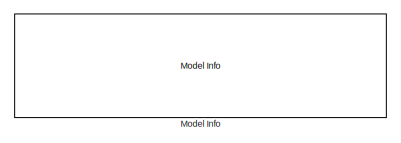
[diagram: root canvas - part 1/5, top center region]
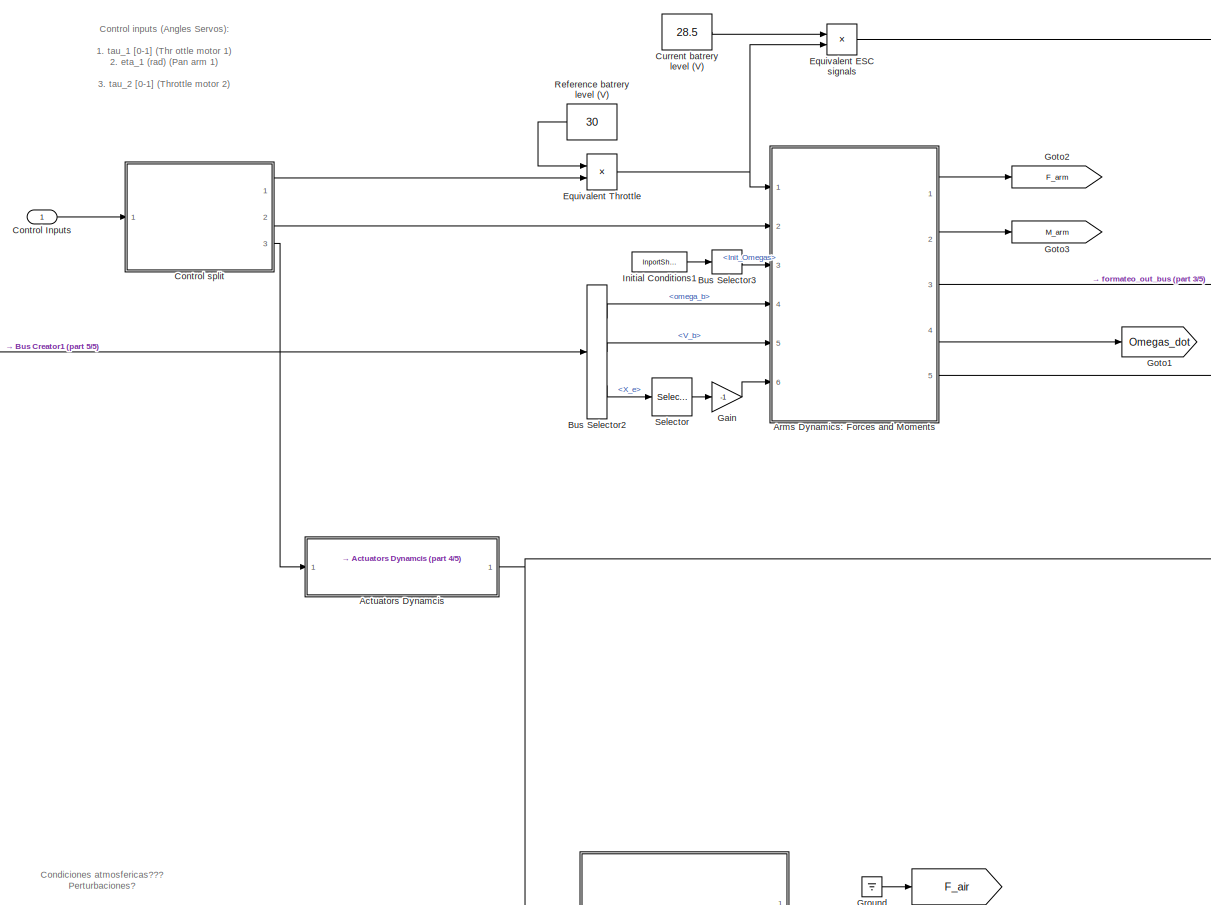
[diagram: root canvas - part 2/5, middle left region]
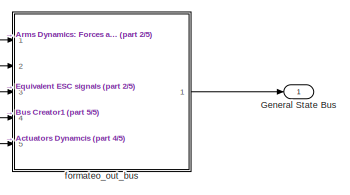
[diagram: root canvas - part 3/5, middle right region]
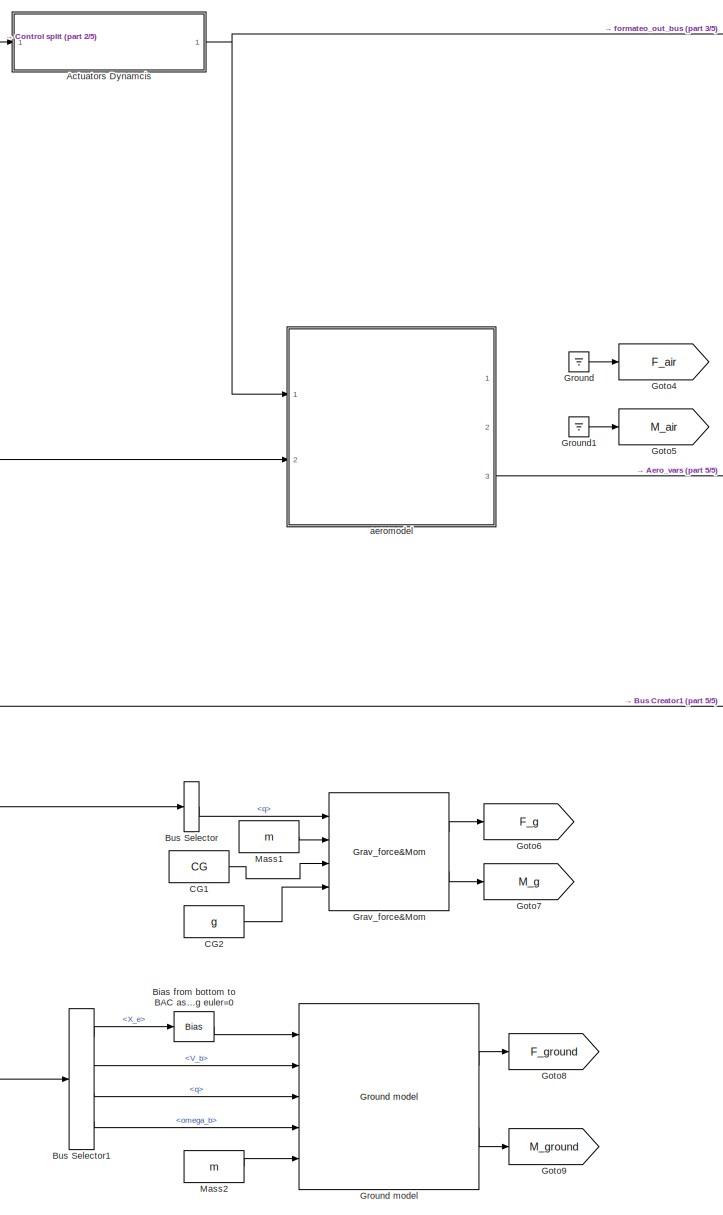
[diagram: root canvas - part 4/5, bottom left region]
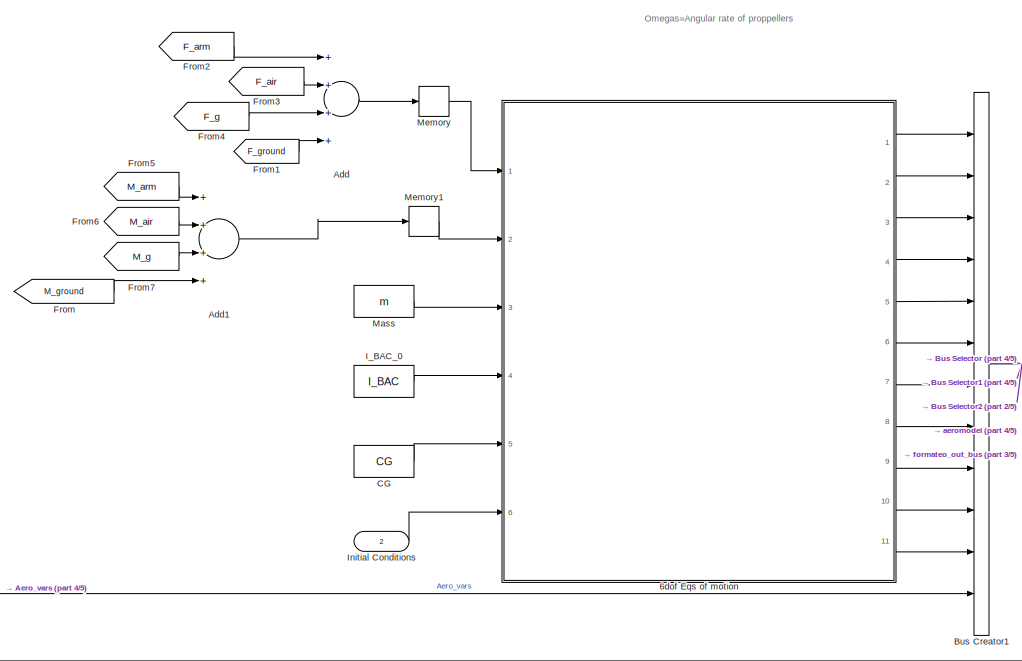
[diagram: root canvas - part 5/5, central region]
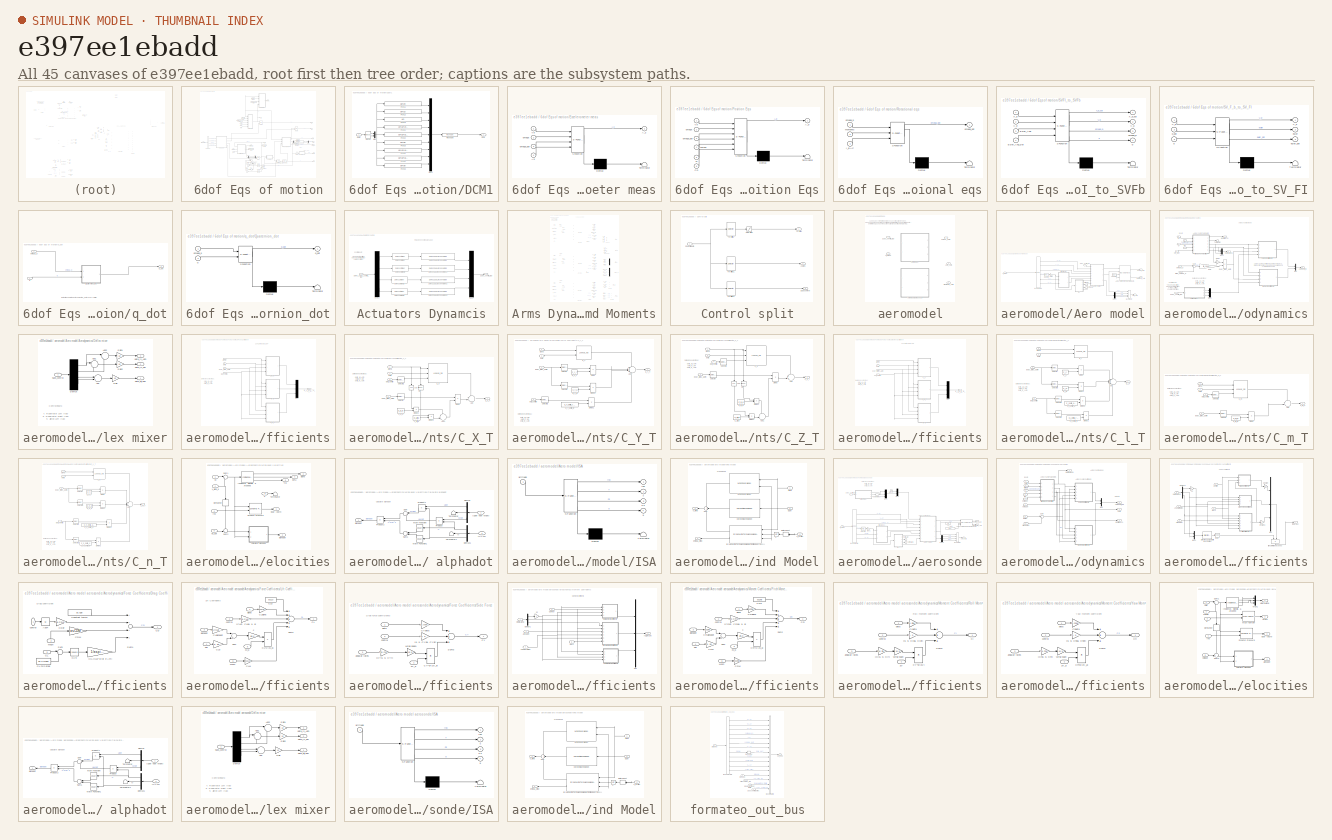
[diagram: thumbnail index - all 45 canvases of the model, root first then tree order]
MODEL slx_e397ee1ebadd
KIND model
CONFIG AbsTol = auto
CONFIG FixedStep = T_sim
CONFIG MaxStep = auto
CONFIG MinStep = auto
CONFIG RelTol = 1e-3
CONFIG SampleTimeConstraint = Unconstrained
CONFIG Solver = ode2
CONFIG SolverMode = SingleTasking
CONFIG SolverName = ode2
CONFIG StartTime = 0.0
CONFIG StopTime = 10.0
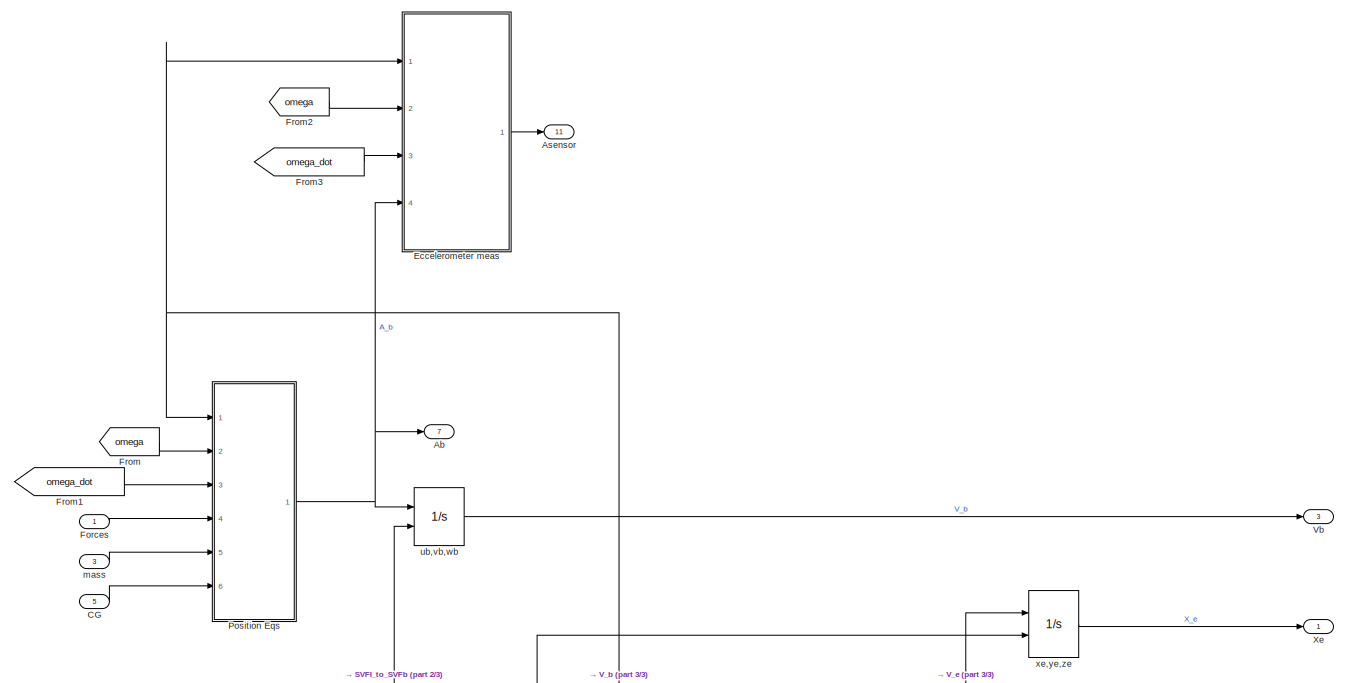
[diagram: 6dof Eqs of motion - part 1/3, top center region]
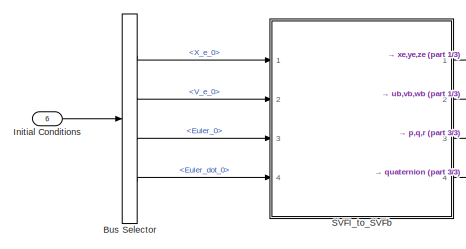
[diagram: 6dof Eqs of motion - part 2/3, middle left region]
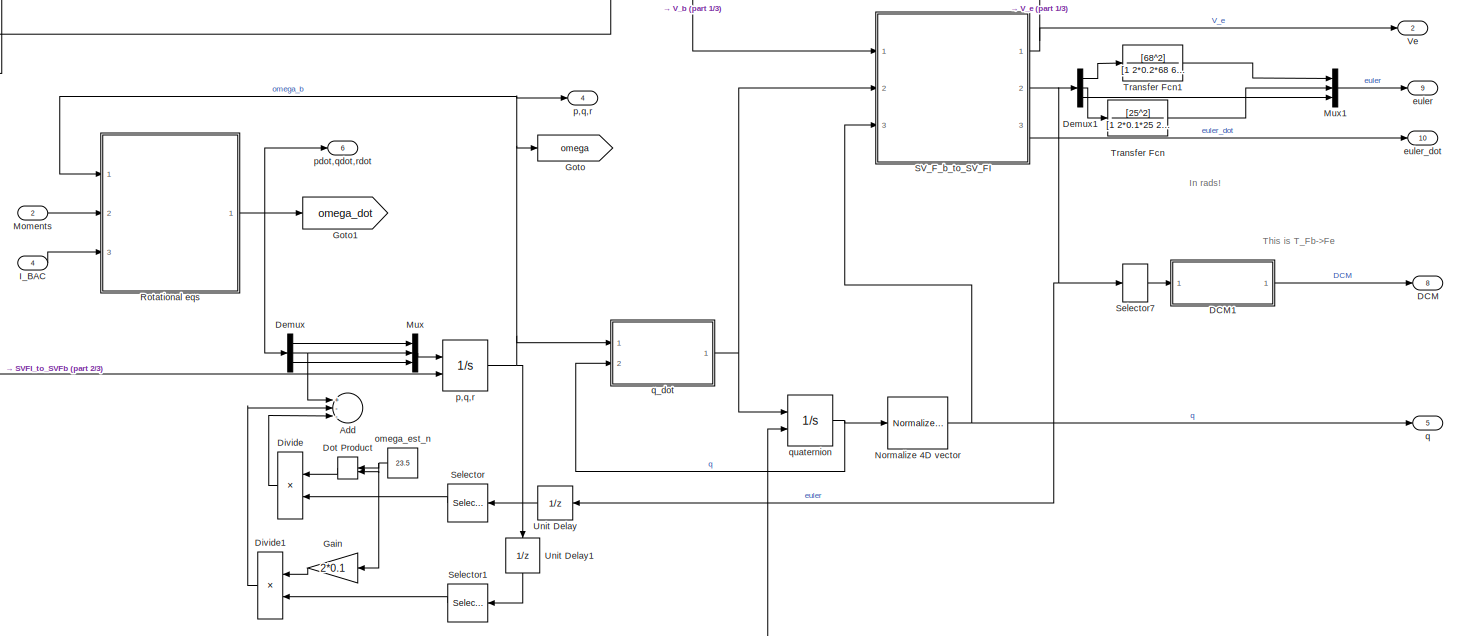
[diagram: 6dof Eqs of motion - part 3/3, full width, bottom band]
BLOCK [SubSystem] 6dof Eqs of motion
  Ports = [6, 11]
  RequestExecContextInheritance = off
  TreatAsAtomicUnit = on
BLOCK [Outport] 6dof Eqs of motion/Ab
  IconDisplay = Port number
  Port = 7
BLOCK [Sum] 6dof Eqs of motion/Add
  Commented = on
  InputSameDT = off
  Inputs = +--
  OutDataTypeStr = Inherit: Inherit via internal rule
  Ports = [3, 1]
  SaturateOnIntegerOverflow = off
BLOCK [Outport] 6dof Eqs of motion/Asensor
  IconDisplay = Port number
  Port = 11
BLOCK [BusSelector] 6dof Eqs of motion/Bus Selector
  OutputSignals = X_e_0,V_e_0,Euler_0,Euler_dot_0
  Ports = [1, 4]
BLOCK [Inport] 6dof Eqs of motion/CG
  IconDisplay = Port number
  Port = 5
BLOCK [Outport] 6dof Eqs of motion/DCM
  IconDisplay = Port number
  Port = 8
BLOCK [SubSystem] 6dof Eqs of motion/DCM1
  Ports = [1, 1]
  RequestExecContextInheritance = off
  TreatAsAtomicUnit = on
BLOCK [Outport] 6dof Eqs of motion/DCM1/DCM
  IconDisplay = Port number
  PortDimensions = [3,3]
BLOCK [Inport] 6dof Eqs of motion/DCM1/Euler
  IconDisplay = Port number
  PortDimensions = 3
BLOCK [Fcn] 6dof Eqs of motion/DCM1/Fcn11
  Expr = u(5)*u(4)
BLOCK [Fcn] 6dof Eqs of motion/DCM1/Fcn12
  Expr = u(5)*u(1)
BLOCK [Fcn] 6dof Eqs of motion/DCM1/Fcn13
  Expr = -u(2)
BLOCK [Fcn] 6dof Eqs of motion/DCM1/Fcn21
  Expr = u(3)*u(2)*u(4) - u(6)*u(1)
BLOCK [Fcn] 6dof Eqs of motion/DCM1/Fcn22
  Expr = u(3)*u(2)*u(1) + u(6)*u(4)
BLOCK [Fcn] 6dof Eqs of motion/DCM1/Fcn23
  Expr = u(3)*u(5)
BLOCK [Fcn] 6dof Eqs of motion/DCM1/Fcn31
  Expr = u(6)*u(2)*u(4) + u(3)*u(1)
BLOCK [Fcn] 6dof Eqs of motion/DCM1/Fcn32
  Expr = u(6)*u(2)*u(1) - u(3)*u(4)
BLOCK [Fcn] 6dof Eqs of motion/DCM1/Fcn33
  Expr = u(6)*u(5)
BLOCK [Mux] 6dof Eqs of motion/DCM1/Mux
  DisplayOption = bar
  Inputs = 2
  Ports = [2, 1]
BLOCK [Mux] 6dof Eqs of motion/DCM1/Mux1
  DisplayOption = bar
  Inputs = 9
  Ports = [9, 1]
BLOCK [Reshape] 6dof Eqs of motion/DCM1/Reshape
  OutputDimensionality = Customize
  OutputDimensions = [3,3]
  Ports = [1, 1]
BLOCK [Trigonometry] 6dof Eqs of motion/DCM1/sincos
  Operator = sincos
  Ports = [1, 2]
BLOCK [Demux] 6dof Eqs of motion/Demux
  DisplayOption = bar
  Outputs = 3
  Ports = [1, 3]
BLOCK [Demux] 6dof Eqs of motion/Demux1
  DisplayOption = bar
  Outputs = 3
  Ports = [1, 3]
BLOCK [Product] 6dof Eqs of motion/Divide
  Commented = on
  InputSameDT = off
  Inputs = **
  OutDataTypeStr = Inherit: Inherit via internal rule
  Ports = [2, 1]
  RndMeth = Floor
  SaturateOnIntegerOverflow = off
BLOCK [Product] 6dof Eqs of motion/Divide1
  Commented = on
  InputSameDT = off
  Inputs = **
  OutDataTypeStr = Inherit: Inherit via internal rule
  Ports = [2, 1]
  RndMeth = Floor
  SaturateOnIntegerOverflow = off
BLOCK [DotProduct] 6dof Eqs of motion/Dot Product
  Commented = on
  OutDataTypeStr = Inherit: Inherit via internal rule
BLOCK [SubSystem] 6dof Eqs of motion/Eccelerometer meas
  ErrorFcn = Stateflow.Translate.translate
  PermitHierarchicalResolution = ExplicitOnly
  Ports = [4, 1]
  RequestExecContextInheritance = off
  SFBlockType = MATLAB Function
  TreatAsAtomicUnit = on
BLOCK [Demux] 6dof Eqs of motion/Eccelerometer meas/ Demux 
  Outputs = 1
  Ports = [1, 1]
BLOCK [S-Function] 6dof Eqs of motion/Eccelerometer meas/ SFunction 
  EnableBusSupport = on
  FunctionName = sf_sfun
  Parameters = r_sens
  PortCounts = [4 2]
  Ports = [4, 2]
  Tag = Stateflow S-Function DBX_model_all_structu 8
BLOCK [Terminator] 6dof Eqs of motion/Eccelerometer meas/ Terminator 
BLOCK [Outport] 6dof Eqs of motion/Eccelerometer meas/A_s
  IconDisplay = Port number
BLOCK [Inport] 6dof Eqs of motion/Eccelerometer meas/Ab
  IconDisplay = Port number
  Port = 4
BLOCK [Inport] 6dof Eqs of motion/Eccelerometer meas/Vb
  IconDisplay = Port number
BLOCK [Inport] 6dof Eqs of motion/Eccelerometer meas/omega
  IconDisplay = Port number
  Port = 2
BLOCK [Inport] 6dof Eqs of motion/Eccelerometer meas/omega_dot
  IconDisplay = Port number
  Port = 3
BLOCK [Inport] 6dof Eqs of motion/Forces
  IconDisplay = Port number
BLOCK [From] 6dof Eqs of motion/From
  GotoTag = omega
BLOCK [From] 6dof Eqs of motion/From1
  GotoTag = omega_dot
BLOCK [From] 6dof Eqs of motion/From2
  GotoTag = omega
BLOCK [From] 6dof Eqs of motion/From3
  GotoTag = omega_dot
BLOCK [Gain] 6dof Eqs of motion/Gain
  Commented = on
  Gain = 2*0.1
  OutDataTypeStr = Inherit: Inherit via internal rule
  ParamDataTypeStr = Inherit: Inherit via internal rule
  SaturateOnIntegerOverflow = off
BLOCK [Goto] 6dof Eqs of motion/Goto
  GotoTag = omega
BLOCK [Goto] 6dof Eqs of motion/Goto1
  GotoTag = omega_dot
BLOCK [Inport] 6dof Eqs of motion/I_BAC
  IconDisplay = Port number
  Port = 4
BLOCK [Inport] 6dof Eqs of motion/Initial Conditions
  IconDisplay = Port number
  Port = 6
BLOCK [Inport] 6dof Eqs of motion/Moments
  IconDisplay = Port number
  Port = 2
BLOCK [Mux] 6dof Eqs of motion/Mux
  DisplayOption = bar
  Inputs = 3
  Ports = [3, 1]
BLOCK [Mux] 6dof Eqs of motion/Mux1
  DisplayOption = bar
  Inputs = 3
  Ports = [3, 1]
BLOCK [Reference] 6dof Eqs of motion/Normalize 4D vector  REF=DBX_model/Normalize 4D vector
  Ports = [1, 1]
  SourceBlock = DBX_model/Normalize 4D vector
  SourceType = SubSystem
BLOCK [SubSystem] 6dof Eqs of motion/Position Eqs
  ErrorFcn = Stateflow.Translate.translate
  PermitHierarchicalResolution = ExplicitOnly
  Ports = [6, 1]
  RequestExecContextInheritance = off
  SFBlockType = MATLAB Function
  TreatAsAtomicUnit = on
BLOCK [Demux] 6dof Eqs of motion/Position Eqs/ Demux 
  Outputs = 1
  Ports = [1, 1]
BLOCK [S-Function] 6dof Eqs of motion/Position Eqs/ SFunction 
  EnableBusSupport = on
  FunctionName = sf_sfun
  PortCounts = [6 2]
  Ports = [6, 2]
  Tag = Stateflow S-Function DBX_model_all_structu 1
BLOCK [Terminator] 6dof Eqs of motion/Position Eqs/ Terminator 
BLOCK [Outport] 6dof Eqs of motion/Position Eqs/A_b
  IconDisplay = Port number
BLOCK [Inport] 6dof Eqs of motion/Position Eqs/CG
  IconDisplay = Port number
  Port = 6
BLOCK [Inport] 6dof Eqs of motion/Position Eqs/Forces
  IconDisplay = Port number
  Port = 4
BLOCK [Inport] 6dof Eqs of motion/Position Eqs/Vb
  IconDisplay = Port number
BLOCK [Inport] 6dof Eqs of motion/Position Eqs/m
  IconDisplay = Port number
  Port = 5
BLOCK [Inport] 6dof Eqs of motion/Position Eqs/omega
  IconDisplay = Port number
  Port = 2
BLOCK [Inport] 6dof Eqs of motion/Position Eqs/omega_dot
  IconDisplay = Port number
  Port = 3
BLOCK [SubSystem] 6dof Eqs of motion/Rotational eqs
  ErrorFcn = Stateflow.Translate.translate
  PermitHierarchicalResolution = ExplicitOnly
  Ports = [3, 1]
  RequestExecContextInheritance = off
  SFBlockType = MATLAB Function
  TreatAsAtomicUnit = on
BLOCK [Demux] 6dof Eqs of motion/Rotational eqs/ Demux 
  Outputs = 1
  Ports = [1, 1]
BLOCK [S-Function] 6dof Eqs of motion/Rotational eqs/ SFunction 
  EnableBusSupport = on
  FunctionName = sf_sfun
  PortCounts = [3 2]
  Ports = [3, 2]
  Tag = Stateflow S-Function DBX_model_all_structu 2
BLOCK [Terminator] 6dof Eqs of motion/Rotational eqs/ Terminator 
BLOCK [Inport] 6dof Eqs of motion/Rotational eqs/I_BAC
  IconDisplay = Port number
  Port = 3
BLOCK [Inport] 6dof Eqs of motion/Rotational eqs/Moments
  IconDisplay = Port number
  Port = 2
BLOCK [Inport] 6dof Eqs of motion/Rotational eqs/omega_b
  IconDisplay = Port number
BLOCK [Outport] 6dof Eqs of motion/Rotational eqs/omega_dot
  IconDisplay = Port number
BLOCK [SubSystem] 6dof Eqs of motion/SVFI_to_SVFb
  ErrorFcn = Stateflow.Translate.translate
  PermitHierarchicalResolution = ExplicitOnly
  Ports = [4, 4]
  RequestExecContextInheritance = off
  SFBlockType = MATLAB Function
  TreatAsAtomicUnit = on
BLOCK [Demux] 6dof Eqs of motion/SVFI_to_SVFb/ Demux 
  Outputs = 1
  Ports = [1, 1]
BLOCK [S-Function] 6dof Eqs of motion/SVFI_to_SVFb/ SFunction 
  EnableBusSupport = on
  FunctionName = sf_sfun
  PortCounts = [4 5]
  Ports = [4, 5]
  Tag = Stateflow S-Function DBX_model_all_structu 11
BLOCK [Terminator] 6dof Eqs of motion/SVFI_to_SVFb/ Terminator 
BLOCK [Inport] 6dof Eqs of motion/SVFI_to_SVFb/Euler_Ang
  IconDisplay = Port number
  Port = 3
BLOCK [Inport] 6dof Eqs of motion/SVFI_to_SVFb/Euler_Ang_Dot
  IconDisplay = Port number
  Port = 4
BLOCK [Outport] 6dof Eqs of motion/SVFI_to_SVFb/V_b
  IconDisplay = Port number
  Port = 2
BLOCK [Inport] 6dof Eqs of motion/SVFI_to_SVFb/V_e
  IconDisplay = Port number
  Port = 2
BLOCK [Inport] 6dof Eqs of motion/SVFI_to_SVFb/X_e
  IconDisplay = Port number
BLOCK [Outport] 6dof Eqs of motion/SVFI_to_SVFb/X_e_out
  IconDisplay = Port number
BLOCK [Outport] 6dof Eqs of motion/SVFI_to_SVFb/omega_b
  IconDisplay = Port number
  Port = 3
BLOCK [Outport] 6dof Eqs of motion/SVFI_to_SVFb/q
  IconDisplay = Port number
  Port = 4
BLOCK [SubSystem] 6dof Eqs of motion/SV_F_b_to_SV_FI
  ErrorFcn = Stateflow.Translate.translate
  PermitHierarchicalResolution = ExplicitOnly
  Ports = [3, 3]
  RequestExecContextInheritance = off
  SFBlockType = MATLAB Function
  TreatAsAtomicUnit = on
BLOCK [Demux] 6dof Eqs of motion/SV_F_b_to_SV_FI/ Demux 
  Outputs = 1
  Ports = [1, 1]
BLOCK [S-Function] 6dof Eqs of motion/SV_F_b_to_SV_FI/ SFunction 
  EnableBusSupport = on
  FunctionName = sf_sfun
  PortCounts = [3 4]
  Ports = [3, 4]
  Tag = Stateflow S-Function DBX_model_all_structu 12
BLOCK [Terminator] 6dof Eqs of motion/SV_F_b_to_SV_FI/ Terminator 
BLOCK [Inport] 6dof Eqs of motion/SV_F_b_to_SV_FI/V_b
  IconDisplay = Port number
BLOCK [Outport] 6dof Eqs of motion/SV_F_b_to_SV_FI/V_e
  IconDisplay = Port number
BLOCK [Outport] 6dof Eqs of motion/SV_F_b_to_SV_FI/euler
  IconDisplay = Port number
  Port = 2
BLOCK [Outport] 6dof Eqs of motion/SV_F_b_to_SV_FI/euler_dot
  IconDisplay = Port number
  Port = 3
BLOCK [Inport] 6dof Eqs of motion/SV_F_b_to_SV_FI/q
  IconDisplay = Port number
  Port = 3
BLOCK [Inport] 6dof Eqs of motion/SV_F_b_to_SV_FI/q_dot
  IconDisplay = Port number
  Port = 2
BLOCK [Selector] 6dof Eqs of motion/Selector
  Commented = on
  Indices = 2
  InputPortWidth = 3
  Ports = [1, 1]
BLOCK [Selector] 6dof Eqs of motion/Selector1
  Commented = on
  Indices = 2
  InputPortWidth = 3
  Ports = [1, 1]
BLOCK [Selector] 6dof Eqs of motion/Selector7
  Indices = [3 2 1]
  InputPortWidth = 3
  Ports = [1, 1]
BLOCK [TransferFcn] 6dof Eqs of motion/Transfer Fcn
  Denominator = [1 2*0.1*25 25^2]
  Numerator = [25^2]
BLOCK [TransferFcn] 6dof Eqs of motion/Transfer Fcn1
  Denominator = [1 2*0.2*68 68^2]
  Numerator = [68^2]
BLOCK [UnitDelay] 6dof Eqs of motion/Unit Delay
  Commented = on
  InputProcessing = Elements as channels (sample based)
  SampleTime = -1
BLOCK [UnitDelay] 6dof Eqs of motion/Unit Delay1
  Commented = on
  InputProcessing = Elements as channels (sample based)
  SampleTime = -1
BLOCK [Outport] 6dof Eqs of motion/Vb
  IconDisplay = Port number
  Port = 3
BLOCK [Outport] 6dof Eqs of motion/Ve
  IconDisplay = Port number
  Port = 2
BLOCK [Outport] 6dof Eqs of motion/Xe
  IconDisplay = Port number
BLOCK [Outport] 6dof Eqs of motion/euler
  IconDisplay = Port number
  Port = 9
BLOCK [Outport] 6dof Eqs of motion/euler_dot
  IconDisplay = Port number
  Port = 10
BLOCK [Inport] 6dof Eqs of motion/mass
  IconDisplay = Port number
  Port = 3
BLOCK [Constant] 6dof Eqs of motion/omega_est_n
  Commented = on
  Value = 23.5
BLOCK [Outport] 6dof Eqs of motion/p,q,r
  IconDisplay = Port number
  Port = 4
BLOCK [Integrator] 6dof Eqs of motion/p,q,r 
  InitialCondition = [P_0,Q_0,R_0]
  InitialConditionSource = external
  Ports = [2, 1]
BLOCK [Outport] 6dof Eqs of motion/pdot,qdot,rdot
  IconDisplay = Port number
  Port = 6
BLOCK [Outport] 6dof Eqs of motion/q
  IconDisplay = Port number
  Port = 5
BLOCK [SubSystem] 6dof Eqs of motion/q_dot
  Ports = [2, 1]
  RequestExecContextInheritance = off
  TreatAsAtomicUnit = on
BLOCK [SubSystem] 6dof Eqs of motion/q_dot/Quaternion_dot
  ErrorFcn = Stateflow.Translate.translate
  PermitHierarchicalResolution = ExplicitOnly
  Ports = [2, 1]
  RequestExecContextInheritance = off
  SFBlockType = MATLAB Function
  TreatAsAtomicUnit = on
  VariantControl = Variant
BLOCK [Demux] 6dof Eqs of motion/q_dot/Quaternion_dot/ Demux 
  Outputs = 1
  Ports = [1, 1]
BLOCK [S-Function] 6dof Eqs of motion/q_dot/Quaternion_dot/ SFunction 
  EnableBusSupport = on
  FunctionName = sf_sfun
  PortCounts = [2 2]
  Ports = [2, 2]
  Tag = Stateflow S-Function DBX_model_all_structu 3
BLOCK [Terminator] 6dof Eqs of motion/q_dot/Quaternion_dot/ Terminator 
BLOCK [Inport] 6dof Eqs of motion/q_dot/Quaternion_dot/omega_b
  IconDisplay = Port number
BLOCK [Inport] 6dof Eqs of motion/q_dot/Quaternion_dot/q
  IconDisplay = Port number
  Port = 2
BLOCK [Outport] 6dof Eqs of motion/q_dot/Quaternion_dot/q_dot
  IconDisplay = Port number
BLOCK [Inport] 6dof Eqs of motion/q_dot/omega_b
  IconDisplay = Port number
BLOCK [Inport] 6dof Eqs of motion/q_dot/q
  IconDisplay = Port number
  Port = 2
BLOCK [Outport] 6dof Eqs of motion/q_dot/q_dot
  IconDisplay = Port number
BLOCK [Integrator] 6dof Eqs of motion/quaternion
  InitialCondition = [P_0,Q_0,R_0]
  InitialConditionSource = external
  Ports = [2, 1]
BLOCK [Integrator] 6dof Eqs of motion/ub,vb,wb
  InitialCondition = [U_0,V_0,W_0]
  InitialConditionSource = external
  Ports = [2, 1]
BLOCK [Integrator] 6dof Eqs of motion/xe,ye,ze
  InitialCondition = [NORTH_0,EAST_0,-DOWN_0]
  InitialConditionSource = external
  Ports = [2, 1]
BLOCK [SubSystem] Actuators Dynamcis
  Ports = [1, 1]
  RequestExecContextInheritance = off
  TreatAsAtomicUnit = on
BLOCK [Demux] Actuators Dynamcis/Demux
  DisplayOption = bar
  Ports = [1, 4]
BLOCK [Mux] Actuators Dynamcis/Mux2
  DisplayOption = bar
  Ports = [4, 1]
BLOCK [Reference] Actuators Dynamcis/Servo 1st order  REF=DBX_model/Servo 1st order
  Init_def = delta_rv_L_0_servo
  Max_defle = deg2rad(25)
  Max_rate = 6.159
  Min_def = -deg2rad(25)
  Min_rate = -6.159
  Ports = [1, 1]
  RT = 0.01
  SourceBlock = DBX_model/Servo 1st order
BLOCK [Reference] Actuators Dynamcis/Servo 1st order1  REF=DBX_model/Servo 1st order
  Init_def = delta_rv_R_0_servo
  Max_defle = deg2rad(25)
  Max_rate = 6.159
  Min_def = -deg2rad(25)
  Min_rate = -6.159
  Ports = [1, 1]
  RT = 0.01
  SourceBlock = DBX_model/Servo 1st order
BLOCK [Reference] Actuators Dynamcis/Servo 1st order2  REF=DBX_model/Servo 1st order
  Init_def = delta_a_L_0_servo
  Max_defle = deg2rad(25)
  Max_rate = 6.159
  Min_def = -deg2rad(25)
  Min_rate = -6.159
  Ports = [1, 1]
  RT = 0.01
  SourceBlock = DBX_model/Servo 1st order
BLOCK [Reference] Actuators Dynamcis/Servo 1st order3  REF=DBX_model/Servo 1st order
  Init_def = delta_a_R_0_servo
  Max_defle = deg2rad(25)
  Max_rate = 6.159
  Min_def = -deg2rad(25)
  Min_rate = -6.159
  Ports = [1, 1]
  RT = 0.01
  SourceBlock = DBX_model/Servo 1st order
BLOCK [Reference] Actuators Dynamcis/Servo2Sup Lin conversion  REF=DBX_model/Servo2Sup Lin conversion
  Bias = Servo_calib.Servo4.Sup_rad_0
  Gain = Servo_calib.Servo4.Pendiente_Sup_Servo
  Ports = [1, 1]
  SourceBlock = DBX_model/Servo2Sup Lin conversion
BLOCK [Reference] Actuators Dynamcis/Servo2Sup Lin conversion1  REF=DBX_model/Servo2Sup Lin conversion
  Bias = Servo_calib.Servo5.Sup_rad_0
  Gain = Servo_calib.Servo5.Pendiente_Sup_Servo
  Ports = [1, 1]
  SourceBlock = DBX_model/Servo2Sup Lin conversion
BLOCK [Reference] Actuators Dynamcis/Servo2Sup Lin conversion2  REF=DBX_model/Servo2Sup Lin conversion
  Bias = Servo_calib.Servo6.Sup_rad_0
  Gain = Servo_calib.Servo6.Pendiente_Sup_Servo
  Ports = [1, 1]
  SourceBlock = DBX_model/Servo2Sup Lin conversion
BLOCK [Reference] Actuators Dynamcis/Servo2Sup Lin conversion3  REF=DBX_model/Servo2Sup Lin conversion
  Bias = Servo_calib.Servo7.Sup_rad_0
  Gain = Servo_calib.Servo7.Pendiente_Sup_Servo
  Ports = [1, 1]
  SourceBlock = DBX_model/Servo2Sup Lin conversion
BLOCK [Inport] Actuators Dynamcis/Servo_sups_control_rad
  IconDisplay = Port number
BLOCK [Outport] Actuators Dynamcis/Sups_control_rad
  IconDisplay = Port number
BLOCK [Sum] Add
  InputSameDT = off
  Inputs = ++++
  OutDataTypeStr = Inherit: Inherit via internal rule
  Ports = [4, 1]
  SaturateOnIntegerOverflow = off
BLOCK [Sum] Add1
  InputSameDT = off
  Inputs = ++++
  OutDataTypeStr = Inherit: Inherit via internal rule
  Ports = [4, 1]
  SaturateOnIntegerOverflow = off
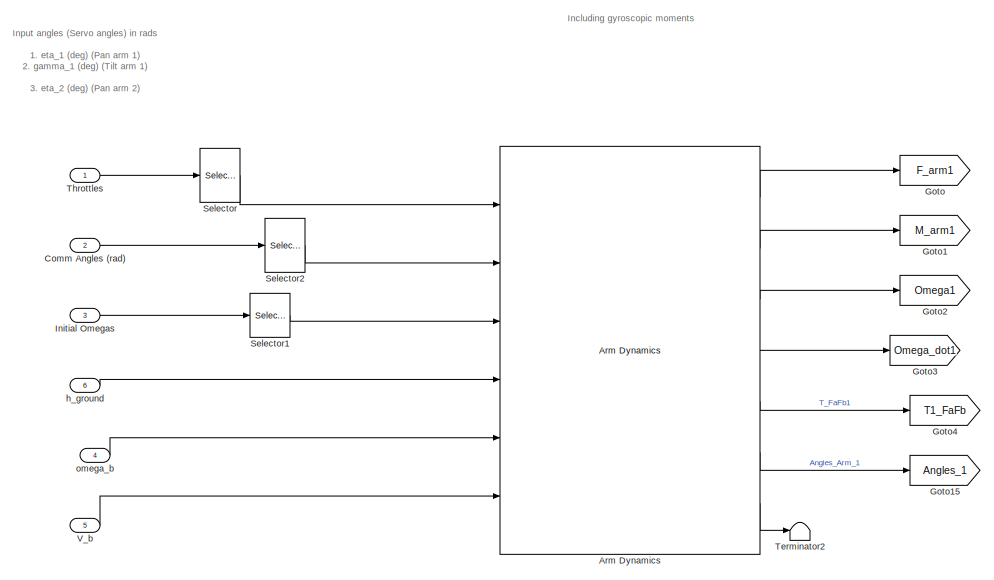
[diagram: Arms Dynamics: Forces and Moments - part 1/3, top center region]
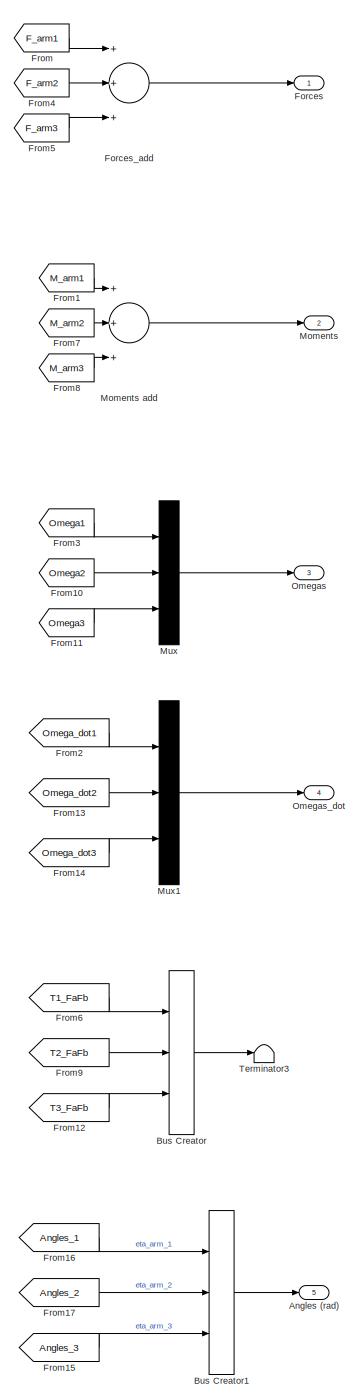
[diagram: Arms Dynamics: Forces and Moments - part 2/3, right side, full height]
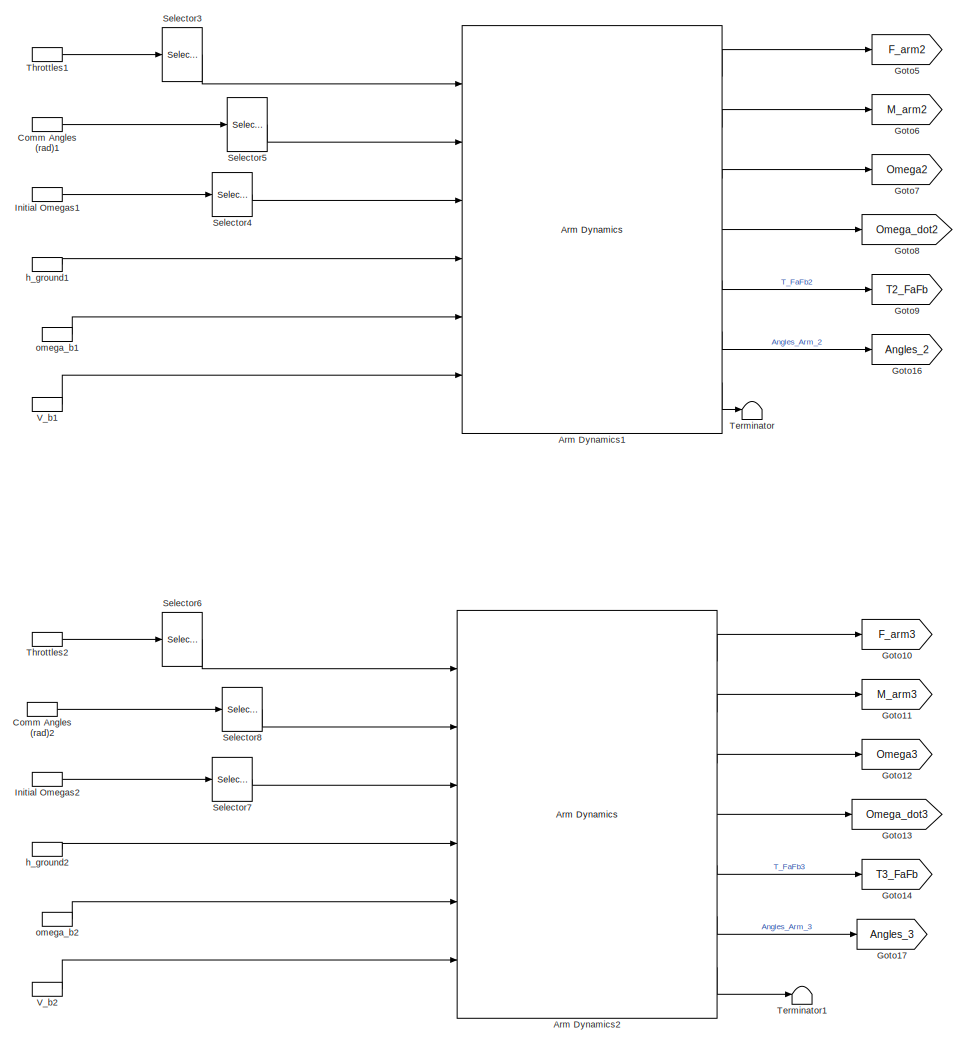
[diagram: Arms Dynamics: Forces and Moments - part 3/3, bottom center region]
BLOCK [SubSystem] Arms Dynamics: Forces and Moments
  Ports = [6, 5]
  RequestExecContextInheritance = off
BLOCK [Outport] Arms Dynamics: Forces and Moments/Angles (rad)
  IconDisplay = Port number
  Port = 5
BLOCK [Reference] Arms Dynamics: Forces and Moments/Arm Dynamics  REF=DBX_model/Arm Dynamics
  Bias = Servo_calib.Servo1.Sup_rad_0
  Freno_param = Activo
  Gain = [0;1;0]
  Gain_servos = Servo_calib.Servo1.Pendiente_Sup_Servo
  Hub_pos = [1/3*L_M;-A_M/2;h_1]
  Inertia_swithc_var = None
  Init_torque = Initial_Torques(1)
  Initi_omega = Initial_Omegas(1)
  J_FA = J_FA_1
  J_T = J_T
  LowerLimit = -deg2rad(90)
  Ports = [6, 7]
  Rot_sign = Rotation_sign(1)
  SourceBlock = DBX_model/Arm Dynamics
  SourceType = Arm dynamics, kinematics, forces and moments
  UpperLimit = deg2rad(10)
  arm_num = 1
  h_p = hp_1
  init_eta = eta_1_0_servo
  omega_n = 40
  tau = Tau_motors
  xi = 1.45
BLOCK [Reference] Arms Dynamics: Forces and Moments/Arm Dynamics1  REF=DBX_model/Arm Dynamics
  Bias = Servo_calib.Servo2.Sup_rad_0
  Freno_param = Activo
  Gain = [0;1;0]
  Gain_servos = Servo_calib.Servo2.Pendiente_Sup_Servo
  Hub_pos = [1/3*L_M;A_M/2;h_2]
  Inertia_swithc_var = None
  Init_torque = Initial_Torques(2)
  Initi_omega = Initial_Omegas(2)
  J_FA = J_FA_2
  J_T = J_T
  LowerLimit = -deg2rad(90)
  Ports = [6, 7]
  Rot_sign = Rotation_sign(2)
  SourceBlock = DBX_model/Arm Dynamics
  SourceType = Arm dynamics, kinematics, forces and moments
  UpperLimit = deg2rad(10)
  arm_num = 2
  h_p = hp_2
  init_eta = eta_2_0_servo
  omega_n = 40
  tau = Tau_motors
  xi = 1.45
BLOCK [Reference] Arms Dynamics: Forces and Moments/Arm Dynamics2  REF=DBX_model/Arm Dynamics
  Bias = Servo_calib.Servo3.Sup_rad_0
  Freno_param = Activo
  Gain = [1;0;0]
  Gain_servos = Servo_calib.Servo3.Pendiente_Sup_Servo
  Hub_pos = [-2/3*L_M;0;h_3]
  Inertia_swithc_var = None
  Init_torque = Initial_Torques(3)
  Initi_omega = Initial_Omegas(3)
  J_FA = J_FA_3
  J_T = J_T
  LowerLimit = -deg2rad(60)
  Ports = [6, 7]
  Rot_sign = Rotation_sign(3)
  SourceBlock = DBX_model/Arm Dynamics
  SourceType = Arm dynamics, kinematics, forces and moments
  UpperLimit = deg2rad(60)
  arm_num = 3
  h_p = hp_3
  init_eta = eta_3_0
  omega_n = 40
  tau = Tau_motors
  xi = 1.45
BLOCK [BusCreator] Arms Dynamics: Forces and Moments/Bus Creator
  DisplayOption = bar
  Inputs = 3
  Ports = [3, 1]
BLOCK [BusCreator] Arms Dynamics: Forces and Moments/Bus Creator1
  DisplayOption = bar
  Inputs = 3
  Ports = [3, 1]
BLOCK [Inport] Arms Dynamics: Forces and Moments/Comm Angles (rad)
  IconDisplay = Port number
  Port = 2
BLOCK [InportShadow] Arms Dynamics: Forces and Moments/Comm Angles (rad)1
  IconDisplay = Port number
  Port = 2
BLOCK [InportShadow] Arms Dynamics: Forces and Moments/Comm Angles (rad)2
  IconDisplay = Port number
  Port = 2
BLOCK [Outport] Arms Dynamics: Forces and Moments/Forces
  IconDisplay = Port number
BLOCK [Sum] Arms Dynamics: Forces and Moments/Forces_add
  InputSameDT = off
  Inputs = +++
  OutDataTypeStr = Inherit: Inherit via internal rule
  Ports = [3, 1]
  SaturateOnIntegerOverflow = off
BLOCK [From] Arms Dynamics: Forces and Moments/From
  GotoTag = F_arm1
BLOCK [From] Arms Dynamics: Forces and Moments/From1
  GotoTag = M_arm1
BLOCK [From] Arms Dynamics: Forces and Moments/From10
  GotoTag = Omega2
BLOCK [From] Arms Dynamics: Forces and Moments/From11
  GotoTag = Omega3
BLOCK [From] Arms Dynamics: Forces and Moments/From12
  GotoTag = T3_FaFb
BLOCK [From] Arms Dynamics: Forces and Moments/From13
  GotoTag = Omega_dot2
BLOCK [From] Arms Dynamics: Forces and Moments/From14
  GotoTag = Omega_dot3
BLOCK [From] Arms Dynamics: Forces and Moments/From15
  GotoTag = Angles_3
BLOCK [From] Arms Dynamics: Forces and Moments/From16
  GotoTag = Angles_1
BLOCK [From] Arms Dynamics: Forces and Moments/From17
  GotoTag = Angles_2
BLOCK [From] Arms Dynamics: Forces and Moments/From2
  GotoTag = Omega_dot1
BLOCK [From] Arms Dynamics: Forces and Moments/From3
  GotoTag = Omega1
BLOCK [From] Arms Dynamics: Forces and Moments/From4
  GotoTag = F_arm2
BLOCK [From] Arms Dynamics: Forces and Moments/From5
  GotoTag = F_arm3
BLOCK [From] Arms Dynamics: Forces and Moments/From6
  GotoTag = T1_FaFb
BLOCK [From] Arms Dynamics: Forces and Moments/From7
  GotoTag = M_arm2
BLOCK [From] Arms Dynamics: Forces and Moments/From8
  GotoTag = M_arm3
BLOCK [From] Arms Dynamics: Forces and Moments/From9
  GotoTag = T2_FaFb
BLOCK [Goto] Arms Dynamics: Forces and Moments/Goto
  GotoTag = F_arm1
BLOCK [Goto] Arms Dynamics: Forces and Moments/Goto1
  GotoTag = M_arm1
BLOCK [Goto] Arms Dynamics: Forces and Moments/Goto10
  GotoTag = F_arm3
BLOCK [Goto] Arms Dynamics: Forces and Moments/Goto11
  GotoTag = M_arm3
BLOCK [Goto] Arms Dynamics: Forces and Moments/Goto12
  GotoTag = Omega3
BLOCK [Goto] Arms Dynamics: Forces and Moments/Goto13
  GotoTag = Omega_dot3
BLOCK [Goto] Arms Dynamics: Forces and Moments/Goto14
  GotoTag = T3_FaFb
BLOCK [Goto] Arms Dynamics: Forces and Moments/Goto15
  GotoTag = Angles_1
BLOCK [Goto] Arms Dynamics: Forces and Moments/Goto16
  GotoTag = Angles_2
BLOCK [Goto] Arms Dynamics: Forces and Moments/Goto17
  GotoTag = Angles_3
BLOCK [Goto] Arms Dynamics: Forces and Moments/Goto2
  GotoTag = Omega1
BLOCK [Goto] Arms Dynamics: Forces and Moments/Goto3
  GotoTag = Omega_dot1
BLOCK [Goto] Arms Dynamics: Forces and Moments/Goto4
  GotoTag = T1_FaFb
BLOCK [Goto] Arms Dynamics: Forces and Moments/Goto5
  GotoTag = F_arm2
BLOCK [Goto] Arms Dynamics: Forces and Moments/Goto6
  GotoTag = M_arm2
BLOCK [Goto] Arms Dynamics: Forces and Moments/Goto7
  GotoTag = Omega2
BLOCK [Goto] Arms Dynamics: Forces and Moments/Goto8
  GotoTag = Omega_dot2
BLOCK [Goto] Arms Dynamics: Forces and Moments/Goto9
  GotoTag = T2_FaFb
BLOCK [Inport] Arms Dynamics: Forces and Moments/Initial Omegas
  IconDisplay = Port number
  Port = 3
BLOCK [InportShadow] Arms Dynamics: Forces and Moments/Initial Omegas1
  IconDisplay = Port number
  Port = 3
BLOCK [InportShadow] Arms Dynamics: Forces and Moments/Initial Omegas2
  IconDisplay = Port number
  Port = 3
BLOCK [Outport] Arms Dynamics: Forces and Moments/Moments
  IconDisplay = Port number
  Port = 2
BLOCK [Sum] Arms Dynamics: Forces and Moments/Moments add
  InputSameDT = off
  Inputs = +++
  OutDataTypeStr = Inherit: Inherit via internal rule
  Ports = [3, 1]
  SaturateOnIntegerOverflow = off
BLOCK [Mux] Arms Dynamics: Forces and Moments/Mux
  DisplayOption = bar
  Inputs = 3
  Ports = [3, 1]
BLOCK [Mux] Arms Dynamics: Forces and Moments/Mux1
  DisplayOption = bar
  Inputs = 3
  Ports = [3, 1]
BLOCK [Outport] Arms Dynamics: Forces and Moments/Omegas
  IconDisplay = Port number
  Port = 3
BLOCK [Outport] Arms Dynamics: Forces and Moments/Omegas_dot
  IconDisplay = Port number
  Port = 4
BLOCK [Selector] Arms Dynamics: Forces and Moments/Selector
  Indices = [1]
  InputPortWidth = 3
  Ports = [1, 1]
BLOCK [Selector] Arms Dynamics: Forces and Moments/Selector1
  Indices = [1]
  InputPortWidth = 3
  Ports = [1, 1]
BLOCK [Selector] Arms Dynamics: Forces and Moments/Selector2
  InputPortWidth = 3
  Ports = [1, 1]
BLOCK [Selector] Arms Dynamics: Forces and Moments/Selector3
  Indices = 2
  InputPortWidth = 3
  Ports = [1, 1]
BLOCK [Selector] Arms Dynamics: Forces and Moments/Selector4
  Indices = 2
  InputPortWidth = 3
  Ports = [1, 1]
BLOCK [Selector] Arms Dynamics: Forces and Moments/Selector5
  Indices = 2
  InputPortWidth = 3
  Ports = [1, 1]
BLOCK [Selector] Arms Dynamics: Forces and Moments/Selector6
  Indices = 3
  InputPortWidth = 3
  Ports = [1, 1]
BLOCK [Selector] Arms Dynamics: Forces and Moments/Selector7
  Indices = 3
  InputPortWidth = 3
  Ports = [1, 1]
BLOCK [Selector] Arms Dynamics: Forces and Moments/Selector8
  Indices = 3
  InputPortWidth = 3
  Ports = [1, 1]
BLOCK [Terminator] Arms Dynamics: Forces and Moments/Terminator
BLOCK [Terminator] Arms Dynamics: Forces and Moments/Terminator1
BLOCK [Terminator] Arms Dynamics: Forces and Moments/Terminator2
BLOCK [Terminator] Arms Dynamics: Forces and Moments/Terminator3
BLOCK [Inport] Arms Dynamics: Forces and Moments/Throttles
  IconDisplay = Port number
BLOCK [InportShadow] Arms Dynamics: Forces and Moments/Throttles1
  IconDisplay = Port number
BLOCK [InportShadow] Arms Dynamics: Forces and Moments/Throttles2
  IconDisplay = Port number
BLOCK [Inport] Arms Dynamics: Forces and Moments/V_b
  IconDisplay = Port number
  Port = 5
BLOCK [InportShadow] Arms Dynamics: Forces and Moments/V_b1
  IconDisplay = Port number
  Port = 5
BLOCK [InportShadow] Arms Dynamics: Forces and Moments/V_b2
  IconDisplay = Port number
  Port = 5
BLOCK [Inport] Arms Dynamics: Forces and Moments/h_ground
  IconDisplay = Port number
  Port = 6
BLOCK [InportShadow] Arms Dynamics: Forces and Moments/h_ground1
  IconDisplay = Port number
  Port = 6
BLOCK [InportShadow] Arms Dynamics: Forces and Moments/h_ground2
  IconDisplay = Port number
  Port = 6
BLOCK [Inport] Arms Dynamics: Forces and Moments/omega_b
  IconDisplay = Port number
  Port = 4
BLOCK [InportShadow] Arms Dynamics: Forces and Moments/omega_b1
  IconDisplay = Port number
  Port = 4
BLOCK [InportShadow] Arms Dynamics: Forces and Moments/omega_b2
  IconDisplay = Port number
  Port = 4
BLOCK [Bias] Bias from bottom to BAC assuming euler=0
  Bias = [0;0;0.25]
  SaturateOnIntegerOverflow = off
BLOCK [BusCreator] Bus Creator1
  DisplayOption = bar
  Inputs = 12
  Ports = [12, 1]
BLOCK [BusSelector] Bus Selector
  OutputSignals = q
  Ports = [1, 1]
BLOCK [BusSelector] Bus Selector1
  OutputSignals = X_e,V_b,q,omega_b
  Ports = [1, 4]
BLOCK [BusSelector] Bus Selector2
  OutputSignals = omega_b,V_b,X_e
  Ports = [1, 3]
BLOCK [BusSelector] Bus Selector3
  OutputSignals = Init_Omegas
  Ports = [1, 1]
BLOCK [Constant] CG
  Value = CG
BLOCK [Constant] CG1
  Value = CG
BLOCK [Constant] CG2
  Value = g
BLOCK [Inport] Control Inputs
  IconDisplay = Port number
BLOCK [SubSystem] Control split
  Ports = [1, 3]
  RequestExecContextInheritance = off
  TreatAsAtomicUnit = on
BLOCK [Outport] Control split/Angles
  IconDisplay = Port number
  Port = 2
BLOCK [Inport] Control split/Control inputs
  IconDisplay = Port number
BLOCK [Saturate] Control split/Saturation
  InputPortMap = u0
  LowerLimit = 0
  Ports = [1, 1]
  UpperLimit = 1
BLOCK [Outport] Control split/Sups control
  IconDisplay = Port number
  Port = 3
BLOCK [Outport] Control split/Throtles 
  IconDisplay = Port number
BLOCK [Selector] Control split/Throttles
  Indices = [1,3,5]
  InputPortWidth = 10
  Ports = [1, 1]
BLOCK [Selector] Control split/Throttles1
  Indices = [2,4,6]
  InputPortWidth = 10
  Ports = [1, 1]
BLOCK [Selector] Control split/Throttles2
  Indices = [7:10]
  InputPortWidth = 10
  Ports = [1, 1]
BLOCK [Constant] Current batrery level (V)
  Value = 28.5
BLOCK [Product] Equivalent ESC signals
  InputSameDT = off
  Inputs = /*
  OutDataTypeStr = Inherit: Inherit via internal rule
  Ports = [2, 1]
  RndMeth = Floor
  SaturateOnIntegerOverflow = off
BLOCK [Product] Equivalent Throttle
  InputSameDT = off
  Inputs = **
  OutDataTypeStr = Inherit: Inherit via internal rule
  Ports = [2, 1]
  RndMeth = Floor
  SaturateOnIntegerOverflow = off
BLOCK [From] From
  GotoTag = M_ground
BLOCK [From] From1
  GotoTag = F_ground
BLOCK [From] From2
  GotoTag = F_arm
BLOCK [From] From3
  GotoTag = F_air
BLOCK [From] From4
  GotoTag = F_g
BLOCK [From] From5
  GotoTag = M_arm
BLOCK [From] From6
  GotoTag = M_air
BLOCK [From] From7
  GotoTag = M_g
BLOCK [Gain] Gain
  Gain = -1
  OutDataTypeStr = Inherit: Inherit via internal rule
  ParamDataTypeStr = Inherit: Inherit via internal rule
  SaturateOnIntegerOverflow = off
BLOCK [Outport] General State Bus
  IconDisplay = Port number
  OutDataTypeStr = Bus: slBus3
BLOCK [Goto] Goto1
  GotoTag = Omegas_dot
BLOCK [Goto] Goto2
  GotoTag = F_arm
BLOCK [Goto] Goto3
  GotoTag = M_arm
BLOCK [Goto] Goto4
  GotoTag = F_air
BLOCK [Goto] Goto5
  GotoTag = M_air
BLOCK [Goto] Goto6
  GotoTag = F_g
BLOCK [Goto] Goto7
  GotoTag = M_g
BLOCK [Goto] Goto8
  GotoTag = F_ground
BLOCK [Goto] Goto9
  GotoTag = M_ground
BLOCK [Reference] Grav_force&Mom  REF=DBX_model/Grav_force&Mom
  Ports = [4, 2]
  SourceBlock = DBX_model/Grav_force&Mom
  SourceType = SubSystem
BLOCK [Ground] Ground
BLOCK [Reference] Ground  model  REF=DBX_model/Ground  model
  Ports = [5, 2]
  SourceBlock = DBX_model/Ground  model
  SourceType = SubSystem
BLOCK [Ground] Ground1
BLOCK [Constant] I_BAC_0
  Value = I_BAC
BLOCK [Inport] Initial Conditions
  IconDisplay = Port number
  OutDataTypeStr = Bus: slBus1
  Port = 2
BLOCK [InportShadow] Initial Conditions1
  IconDisplay = Port number
  OutDataTypeStr = Bus: slBus1
  Port = 2
BLOCK [Constant] Mass
  Value = m
BLOCK [Constant] Mass1
  Value = m
BLOCK [Constant] Mass2
  Value = m
BLOCK [Memory] Memory
  X0 = [0,0,0]'
BLOCK [Memory] Memory1
  X0 = [0,0,0]'
BLOCK [Reference] Model Info  REF=simulink/Model-Wide
Utilities/Model Info
  DisplayStringWithTags = Model %<ModelName>\n\nCreado por %<Creator>\nModificado el %<LastModificationDate> por %<LastModifiedBy>\nVersion %<ModelVersion>
  Frame = on
  HorizontalTextAlignment = Center
  LeftAlignmentValue = 0.5
  MaskDisplayString = Model DBX_model_all_structu\n\nCreado por DavidTorres\nModificado el 01-nov-2015 21:37:13 por David\nVersion 1.00
  Ports = []
  SourceBlock = simulink/Model-Wide\nUtilities/Model Info
  SourceBlockDiagram = DBX_model_all_structu
  SourceType = CMBlock
  TagMaxNumber = 20
BLOCK [Constant] Reference batrery level (V)
  Value = 30
BLOCK [Selector] Selector
  Indices = 3
  InputPortWidth = 3
  Ports = [1, 1]
BLOCK [SubSystem] aeromodel
  OverrideUsingVariant = AeroAerosonde
  Ports = [2, 3]
  RequestExecContextInheritance = off
  Variant = on
BLOCK [SubSystem] aeromodel/Aero model
  Ports = [2, 3]
  RequestExecContextInheritance = off
  VariantControl = AeroDavid
BLOCK [SubSystem] aeromodel/Aero model aerosonde
  Ports = [2, 3]
  RequestExecContextInheritance = off
  VariantControl = AeroAerosonde
BLOCK [Outport] aeromodel/Aero model aerosonde/Aero_vars
  IconDisplay = Port number
  Port = 3
BLOCK [Reference] aeromodel/Aero model aerosonde/Aerodynamic Forces and Moments  REF=aerolibadyn/Aerodynamic
Forces and Moments 
  Ports = [4, 2]
  S = S_w
  SourceBlock = aerolibadyn/Aerodynamic\nForces and Moments
  SourceType = Aerodynamic Forces and Moments
  b = B_span
  cbar = CMA
  inputAxes = Body
  outputForceAxes = Body
  outputMomentAxes = Body
BLOCK [SubSystem] aeromodel/Aero model aerosonde/Aerodynamics
  Ports = [8, 4]
  RequestExecContextInheritance = off
BLOCK [Outport] aeromodel/Aero model aerosonde/Aerodynamics/AeroCoeff_ba
  IconDisplay = Port number
BLOCK [Inport] aeromodel/Aero model aerosonde/Aerodynamics/AeroCon
  IconDisplay = Port number
  PortDimensions = [4 1]
BLOCK [SubSystem] aeromodel/Aero model aerosonde/Aerodynamics/Force Coefficients
  Ports = [5, 1]
  RequestExecContextInheritance = off
BLOCK [Gain] aeromodel/Aero model aerosonde/Aerodynamics/Force Coefficients/2c
  Gain = 2
BLOCK [Inport] aeromodel/Aero model aerosonde/Aerodynamics/Force Coefficients/AlphaDot
  IconDisplay = Port number
  Port = 3
BLOCK [Inport] aeromodel/Aero model aerosonde/Aerodynamics/Force Coefficients/AngularRates
  IconDisplay = Port number
  Port = 4
  PortDimensions = [3 1]
BLOCK [Gain] aeromodel/Aero model aerosonde/Aerodynamics/Force Coefficients/ChSign
  Gain = -1
BLOCK [Gain] aeromodel/Aero model aerosonde/Aerodynamics/Force Coefficients/ChSign1
  Gain = -1
BLOCK [Inport] aeromodel/Aero model aerosonde/Aerodynamics/Force Coefficients/Control
  IconDisplay = Port number
  Port = 2
  PortDimensions = [4 1]
BLOCK [Math] aeromodel/Aero model aerosonde/Aerodynamics/Force Coefficients/DCM'
  Operator = transpose
  Ports = [1, 1]
BLOCK [Demux] aeromodel/Aero model aerosonde/Aerodynamics/Force Coefficients/Demux2
  Outputs = 3
  Ports = [1, 3]
BLOCK [Reference] aeromodel/Aero model aerosonde/Aerodynamics/Force Coefficients/Direction Cosine Matrix Body to Wind  REF=aerolibtransform2/Direction Cosine Matrix
Body to Wind
  Ports = [1, 1]
  SourceBlock = aerolibtransform2/Direction Cosine Matrix\nBody to Wind
  SourceType = DCM Body to Wind
BLOCK [SubSystem] aeromodel/Aero model aerosonde/Aerodynamics/Force Coefficients/Drag Coefficients
  Ports = [3, 1]
  RequestExecContextInheritance = off
BLOCK [Gain] aeromodel/Aero model aerosonde/Aerodynamics/Force Coefficients/Drag Coefficients/(CL-CL0)^2//(pi e AR)
  Gain = 1/as.pieaR
  Multiplication = Matrix(K*u)
BLOCK [Abs] aeromodel/Aero model aerosonde/Aerodynamics/Force Coefficients/Drag Coefficients/Abs4
BLOCK [Outport] aeromodel/Aero model aerosonde/Aerodynamics/Force Coefficients/Drag Coefficients/CD
  IconDisplay = Port number
BLOCK [Gain] aeromodel/Aero model aerosonde/Aerodynamics/Force Coefficients/Drag Coefficients/CDM
  Gain = as.CDM
BLOCK [Gain] aeromodel/Aero model aerosonde/Aerodynamics/Force Coefficients/Drag Coefficients/CDdf
  Gain = [as.CDdf, as.CDde, as.CDda, as.CDdr]
  Multiplication = Matrix(K*u)
BLOCK [Inport] aeromodel/Aero model aerosonde/Aerodynamics/Force Coefficients/Drag Coefficients/CL
  IconDisplay = Port number
  Port = 3
  PortDimensions = 1
BLOCK [Constant] aeromodel/Aero model aerosonde/Aerodynamics/Force Coefficients/Drag Coefficients/CL min drag
  Value = as.CLmind
BLOCK [Math] aeromodel/Aero model aerosonde/Aerodynamics/Force Coefficients/Drag Coefficients/CL^2
  Operator = square
  Ports = [1, 1]
BLOCK [Constant] aeromodel/Aero model aerosonde/Aerodynamics/Force Coefficients/Drag Coefficients/Constant terms
  Value = as.CD0
BLOCK [Inport] aeromodel/Aero model aerosonde/Aerodynamics/Force Coefficients/Drag Coefficients/Mach
  IconDisplay = Port number
  Port = 2
BLOCK [Sum] aeromodel/Aero model aerosonde/Aerodynamics/Force Coefficients/Drag Coefficients/Sum
  IconShape = round
  Inputs = |+-
  Ports = [2, 1]
BLOCK [Sum] aeromodel/Aero model aerosonde/Aerodynamics/Force Coefficients/Drag Coefficients/Sum1
  Inputs = ++++
  Ports = [4, 1]
BLOCK [Inport] aeromodel/Aero model aerosonde/Aerodynamics/Force Coefficients/Drag Coefficients/control
  IconDisplay = Port number
BLOCK [SubSystem] aeromodel/Aero model aerosonde/Aerodynamics/Force Coefficients/Lift Coefficients
  Ports = [6, 1]
  RequestExecContextInheritance = off
BLOCK [Inport] aeromodel/Aero model aerosonde/Aerodynamics/Force Coefficients/Lift Coefficients/2V_a
  IconDisplay = Port number
  Port = 5
BLOCK [Outport] aeromodel/Aero model aerosonde/Aerodynamics/Force Coefficients/Lift Coefficients/CL
  IconDisplay = Port number
BLOCK [Product] aeromodel/Aero model aerosonde/Aerodynamics/Force Coefficients/Lift Coefficients/CL*c//(2V_a)
  Inputs = */
  Ports = [2, 1]
  RndMeth = Floor
BLOCK [Constant] aeromodel/Aero model aerosonde/Aerodynamics/Force Coefficients/Lift Coefficients/CL0
  Value = as.CL0
BLOCK [Gain] aeromodel/Aero model aerosonde/Aerodynamics/Force Coefficients/Lift Coefficients/CLM
  Gain = as.CLM
BLOCK [Gain] aeromodel/Aero model aerosonde/Aerodynamics/Force Coefficients/Lift Coefficients/CLalpha
  Gain = as.CLalpha
BLOCK [Gain] aeromodel/Aero model aerosonde/Aerodynamics/Force Coefficients/Lift Coefficients/CLalphadot
  Gain = as.CLalphadot
  Multiplication = Matrix(K*u)
BLOCK [Gain] aeromodel/Aero model aerosonde/Aerodynamics/Force Coefficients/Lift Coefficients/CLq
  Gain = [0, as.CLq, 0]
  Multiplication = Matrix(K*u)
BLOCK [Inport] aeromodel/Aero model aerosonde/Aerodynamics/Force Coefficients/Lift Coefficients/Mach
  IconDisplay = Port number
  Port = 6
BLOCK [Sum] aeromodel/Aero model aerosonde/Aerodynamics/Force Coefficients/Lift Coefficients/Sum
  Ports = [2, 1]
BLOCK [Sum] aeromodel/Aero model aerosonde/Aerodynamics/Force Coefficients/Lift Coefficients/Sum2
  Inputs = +++++
  Ports = [5, 1]
BLOCK [Gain] aeromodel/Aero model aerosonde/Aerodynamics/Force Coefficients/Lift Coefficients/[CLdf, CLde, 0, 0]
  Gain = [as.CLdf, as.CLde, 0, 0]
  Multiplication = Matrix(K*u)
BLOCK [Inport] aeromodel/Aero model aerosonde/Aerodynamics/Force Coefficients/Lift Coefficients/alpha
  IconDisplay = Port number
BLOCK [Inport] aeromodel/Aero model aerosonde/Aerodynamics/Force Coefficients/Lift Coefficients/alphadot
  IconDisplay = Port number
  Port = 3
BLOCK [Gain] aeromodel/Aero model aerosonde/Aerodynamics/Force Coefficients/Lift Coefficients/c
  Gain = as.c
BLOCK [Inport] aeromodel/Aero model aerosonde/Aerodynamics/Force Coefficients/Lift Coefficients/control
  IconDisplay = Port number
  Port = 2
BLOCK [Inport] aeromodel/Aero model aerosonde/Aerodynamics/Force Coefficients/Lift Coefficients/pqr
  IconDisplay = Port number
  Port = 4
BLOCK [Inport] aeromodel/Aero model aerosonde/Aerodynamics/Force Coefficients/Mach
  IconDisplay = Port number
  Port = 5
  PortDimensions = 1
BLOCK [Mux] aeromodel/Aero model aerosonde/Aerodynamics/Force Coefficients/Mux
  DisplayOption = bar
  Inputs = 3
  Ports = [3, 1]
BLOCK [Mux] aeromodel/Aero model aerosonde/Aerodynamics/Force Coefficients/Mux1
  DisplayOption = bar
  Inputs = 2
  Ports = [2, 1]
BLOCK [SubSystem] aeromodel/Aero model aerosonde/Aerodynamics/Force Coefficients/Side Force Coefficients
  Ports = [4, 1]
  RequestExecContextInheritance = off
BLOCK [Inport] aeromodel/Aero model aerosonde/Aerodynamics/Force Coefficients/Side Force Coefficients/2V_a
  IconDisplay = Port number
  Port = 4
BLOCK [Outport] aeromodel/Aero model aerosonde/Aerodynamics/Force Coefficients/Side Force Coefficients/CY
  IconDisplay = Port number
BLOCK [Product] aeromodel/Aero model aerosonde/Aerodynamics/Force Coefficients/Side Force Coefficients/CY*b//(2V_a)
  Inputs = */
  Ports = [2, 1]
  RndMeth = Floor
BLOCK [Gain] aeromodel/Aero model aerosonde/Aerodynamics/Force Coefficients/Side Force Coefficients/CYbeta
  Gain = as.CYbeta
BLOCK [Sum] aeromodel/Aero model aerosonde/Aerodynamics/Force Coefficients/Side Force Coefficients/Sum3
  Inputs = +++
  Ports = [3, 1]
BLOCK [Gain] aeromodel/Aero model aerosonde/Aerodynamics/Force Coefficients/Side Force Coefficients/Wing span1
  Gain = as.b
BLOCK [Gain] aeromodel/Aero model aerosonde/Aerodynamics/Force Coefficients/Side Force Coefficients/[0, 0, CYda, CYdr]
  Gain = [0, 0, as.CYda, as.CYdr]
  Multiplication = Matrix(K*u)
BLOCK [Gain] aeromodel/Aero model aerosonde/Aerodynamics/Force Coefficients/Side Force Coefficients/[CYp, 0, CYr]
  Gain = [as.CYp, 0, as.CYr]
  Multiplication = Matrix(K*u)
BLOCK [Inport] aeromodel/Aero model aerosonde/Aerodynamics/Force Coefficients/Side Force Coefficients/angular rates
  IconDisplay = Port number
  Port = 3
BLOCK [Inport] aeromodel/Aero model aerosonde/Aerodynamics/Force Coefficients/Side Force Coefficients/beta
  IconDisplay = Port number
BLOCK [Inport] aeromodel/Aero model aerosonde/Aerodynamics/Force Coefficients/Side Force Coefficients/control
  IconDisplay = Port number
  Port = 2
BLOCK [Inport] aeromodel/Aero model aerosonde/Aerodynamics/Force Coefficients/VBetaAlpha
  IconDisplay = Port number
  PortDimensions = [3 1]
BLOCK [Outport] aeromodel/Aero model aerosonde/Aerodynamics/Force Coefficients/[-CD, CY, -CL]
  IconDisplay = Port number
BLOCK [Product] aeromodel/Aero model aerosonde/Aerodynamics/Force Coefficients/transform to body axes
  Inputs = **
  Multiplication = Matrix(*)
  Ports = [2, 1]
  RndMeth = Floor
BLOCK [SubSystem] aeromodel/Aero model aerosonde/Aerodynamics/Moment Coefficients
  Ports = [5, 1]
  RequestExecContextInheritance = off
BLOCK [Gain] aeromodel/Aero model aerosonde/Aerodynamics/Moment Coefficients/2c
  Gain = 2
BLOCK [Inport] aeromodel/Aero model aerosonde/Aerodynamics/Moment Coefficients/AlphaDot
  IconDisplay = Port number
  Port = 3
BLOCK [Inport] aeromodel/Aero model aerosonde/Aerodynamics/Moment Coefficients/AngularRates
  IconDisplay = Port number
  Port = 4
  PortDimensions = [3 1]
BLOCK [Inport] aeromodel/Aero model aerosonde/Aerodynamics/Moment Coefficients/Control
  IconDisplay = Port number
  Port = 2
  PortDimensions = [4 1]
BLOCK [Demux] aeromodel/Aero model aerosonde/Aerodynamics/Moment Coefficients/Demux1
  Outputs = 3
  Ports = [1, 3]
BLOCK [Inport] aeromodel/Aero model aerosonde/Aerodynamics/Moment Coefficients/Mach
  IconDisplay = Port number
  Port = 5
  PortDimensions = 1
BLOCK [Mux] aeromodel/Aero model aerosonde/Aerodynamics/Moment Coefficients/Mux
  DisplayOption = bar
  Inputs = 3
  Ports = [3, 1]
BLOCK [SubSystem] aeromodel/Aero model aerosonde/Aerodynamics/Moment Coefficients/Pitch Moment Coefficients
  Ports = [6, 1]
  RequestExecContextInheritance = off
BLOCK [Inport] aeromodel/Aero model aerosonde/Aerodynamics/Moment Coefficients/Pitch Moment Coefficients/2V_a
  IconDisplay = Port number
  Port = 5
BLOCK [Gain] aeromodel/Aero model aerosonde/Aerodynamics/Moment Coefficients/Pitch Moment Coefficients/CMalpha
  Gain = as.Cmalpha
BLOCK [Outport] aeromodel/Aero model aerosonde/Aerodynamics/Moment Coefficients/Pitch Moment Coefficients/Cm
  IconDisplay = Port number
BLOCK [Product] aeromodel/Aero model aerosonde/Aerodynamics/Moment Coefficients/Pitch Moment Coefficients/Cm*c//(2V_a)
  Inputs = */
  Ports = [2, 1]
  RndMeth = Floor
BLOCK [Constant] aeromodel/Aero model aerosonde/Aerodynamics/Moment Coefficients/Pitch Moment Coefficients/Cm0
  Value = as.Cm0
BLOCK [Gain] aeromodel/Aero model aerosonde/Aerodynamics/Moment Coefficients/Pitch Moment Coefficients/CmM
  Gain = as.CmM
BLOCK [Gain] aeromodel/Aero model aerosonde/Aerodynamics/Moment Coefficients/Pitch Moment Coefficients/Cmalphadot
  Gain = as.Cmalphadot
  Multiplication = Matrix(K*u)
BLOCK [Gain] aeromodel/Aero model aerosonde/Aerodynamics/Moment Coefficients/Pitch Moment Coefficients/Cmq
  Gain = [0, as.Cmq, 0]
  Multiplication = Matrix(K*u)
BLOCK [Inport] aeromodel/Aero model aerosonde/Aerodynamics/Moment Coefficients/Pitch Moment Coefficients/Mach
  IconDisplay = Port number
  Port = 6
BLOCK [Sum] aeromodel/Aero model aerosonde/Aerodynamics/Moment Coefficients/Pitch Moment Coefficients/Sum
  Ports = [2, 1]
BLOCK [Sum] aeromodel/Aero model aerosonde/Aerodynamics/Moment Coefficients/Pitch Moment Coefficients/Sum2
  Inputs = +++++
  Ports = [5, 1]
BLOCK [Gain] aeromodel/Aero model aerosonde/Aerodynamics/Moment Coefficients/Pitch Moment Coefficients/[Cmdf, Cmde, 0, 0]
  Gain = [as.Cmdf, as.Cmde, 0, 0]
  Multiplication = Matrix(K*u)
BLOCK [Inport] aeromodel/Aero model aerosonde/Aerodynamics/Moment Coefficients/Pitch Moment Coefficients/alpha
  IconDisplay = Port number
BLOCK [Inport] aeromodel/Aero model aerosonde/Aerodynamics/Moment Coefficients/Pitch Moment Coefficients/alphadot
  IconDisplay = Port number
  Port = 3
BLOCK [Gain] aeromodel/Aero model aerosonde/Aerodynamics/Moment Coefficients/Pitch Moment Coefficients/c
  Gain = as.c
BLOCK [Inport] aeromodel/Aero model aerosonde/Aerodynamics/Moment Coefficients/Pitch Moment Coefficients/control
  IconDisplay = Port number
  Port = 2
BLOCK [Inport] aeromodel/Aero model aerosonde/Aerodynamics/Moment Coefficients/Pitch Moment Coefficients/pqr
  IconDisplay = Port number
  Port = 4
BLOCK [SubSystem] aeromodel/Aero model aerosonde/Aerodynamics/Moment Coefficients/Roll Moment Coefficients
  Ports = [4, 1]
  RequestExecContextInheritance = off
BLOCK [Inport] aeromodel/Aero model aerosonde/Aerodynamics/Moment Coefficients/Roll Moment Coefficients/2V
  IconDisplay = Port number
  Port = 4
BLOCK [Product] aeromodel/Aero model aerosonde/Aerodynamics/Moment Coefficients/Roll Moment Coefficients/CY*b//(2V)
  Inputs = */
  Ports = [2, 1]
  RndMeth = Floor
BLOCK [Outport] aeromodel/Aero model aerosonde/Aerodynamics/Moment Coefficients/Roll Moment Coefficients/Cl
  IconDisplay = Port number
BLOCK [Gain] aeromodel/Aero model aerosonde/Aerodynamics/Moment Coefficients/Roll Moment Coefficients/Clbeta
  Gain = as.Clbeta
BLOCK [Sum] aeromodel/Aero model aerosonde/Aerodynamics/Moment Coefficients/Roll Moment Coefficients/Sum3
  Inputs = +++
  Ports = [3, 1]
BLOCK [Gain] aeromodel/Aero model aerosonde/Aerodynamics/Moment Coefficients/Roll Moment Coefficients/Wing span
  Gain = as.b
BLOCK [Gain] aeromodel/Aero model aerosonde/Aerodynamics/Moment Coefficients/Roll Moment Coefficients/[0, 0, Clda, Cldr]
  Gain = [0, 0, as.Clda, as.Cldr]
  Multiplication = Matrix(K*u)
BLOCK [Gain] aeromodel/Aero model aerosonde/Aerodynamics/Moment Coefficients/Roll Moment Coefficients/[Clp, 0, Clr]
  Gain = [as.Clp, 0, as.Clr]
  Multiplication = Matrix(K*u)
BLOCK [Inport] aeromodel/Aero model aerosonde/Aerodynamics/Moment Coefficients/Roll Moment Coefficients/angular rates
  IconDisplay = Port number
  Port = 3
BLOCK [Inport] aeromodel/Aero model aerosonde/Aerodynamics/Moment Coefficients/Roll Moment Coefficients/beta
  IconDisplay = Port number
BLOCK [Inport] aeromodel/Aero model aerosonde/Aerodynamics/Moment Coefficients/Roll Moment Coefficients/control
  IconDisplay = Port number
  Port = 2
BLOCK [Inport] aeromodel/Aero model aerosonde/Aerodynamics/Moment Coefficients/VBetaAlpha
  IconDisplay = Port number
  PortDimensions = [3 1]
BLOCK [SubSystem] aeromodel/Aero model aerosonde/Aerodynamics/Moment Coefficients/Yaw Moment Coefficients
  Ports = [4, 1]
  RequestExecContextInheritance = off
BLOCK [Inport] aeromodel/Aero model aerosonde/Aerodynamics/Moment Coefficients/Yaw Moment Coefficients/2V_a
  IconDisplay = Port number
  Port = 4
BLOCK [Outport] aeromodel/Aero model aerosonde/Aerodynamics/Moment Coefficients/Yaw Moment Coefficients/Cn
  IconDisplay = Port number
BLOCK [Product] aeromodel/Aero model aerosonde/Aerodynamics/Moment Coefficients/Yaw Moment Coefficients/Cn*b//(2V_a)
  Inputs = */
  Ports = [2, 1]
  RndMeth = Floor
BLOCK [Gain] aeromodel/Aero model aerosonde/Aerodynamics/Moment Coefficients/Yaw Moment Coefficients/Cnbeta
  Gain = as.Cnbeta
BLOCK [Sum] aeromodel/Aero model aerosonde/Aerodynamics/Moment Coefficients/Yaw Moment Coefficients/Sum3
  Inputs = +++
  Ports = [3, 1]
BLOCK [Gain] aeromodel/Aero model aerosonde/Aerodynamics/Moment Coefficients/Yaw Moment Coefficients/Wing span
  Gain = as.b
BLOCK [Gain] aeromodel/Aero model aerosonde/Aerodynamics/Moment Coefficients/Yaw Moment Coefficients/[0, 0, Cnda, Cndr]
  Gain = [0, 0, as.Cnda, as.Cndr]
  Multiplication = Matrix(K*u)
BLOCK [Gain] aeromodel/Aero model aerosonde/Aerodynamics/Moment Coefficients/Yaw Moment Coefficients/[Cnp, 0, Cnr]
  Gain = [as.Cnp, 0, as.Cnr]
  Multiplication = Matrix(K*u)
BLOCK [Inport] aeromodel/Aero model aerosonde/Aerodynamics/Moment Coefficients/Yaw Moment Coefficients/angular rates
  IconDisplay = Port number
  Port = 3
BLOCK [Inport] aeromodel/Aero model aerosonde/Aerodynamics/Moment Coefficients/Yaw Moment Coefficients/beta
  IconDisplay = Port number
BLOCK [Inport] aeromodel/Aero model aerosonde/Aerodynamics/Moment Coefficients/Yaw Moment Coefficients/control
  IconDisplay = Port number
  Port = 2
BLOCK [Outport] aeromodel/Aero model aerosonde/Aerodynamics/Moment Coefficients/[-Cl, Cm, -Cn]
  IconDisplay = Port number
BLOCK [Mux] aeromodel/Aero model aerosonde/Aerodynamics/Mux
  DisplayOption = bar
  Inputs = 2
  Ports = [2, 1]
BLOCK [Inport] aeromodel/Aero model aerosonde/Aerodynamics/Rates
  IconDisplay = Port number
  Port = 3
  PortDimensions = [3 1]
BLOCK [Sum] aeromodel/Aero model aerosonde/Aerodynamics/Sum
  IconShape = round
  Inputs = |+-
  Ports = [2, 1]
BLOCK [Outport] aeromodel/Aero model aerosonde/Aerodynamics/VBetaAlpha
  IconDisplay = Port number
  Port = 4
BLOCK [Inport] aeromodel/Aero model aerosonde/Aerodynamics/VelB
  IconDisplay = Port number
  Port = 2
  PortDimensions = [3 1]
BLOCK [Inport] aeromodel/Aero model aerosonde/Aerodynamics/VelBdot
  IconDisplay = Port number
  Port = 4
BLOCK [Outport] aeromodel/Aero model aerosonde/Aerodynamics/VelW
  IconDisplay = Port number
  Port = 2
BLOCK [SubSystem] aeromodel/Aero model aerosonde/Aerodynamics/Wind-axes Velocities
  Ports = [5, 4]
  RequestExecContextInheritance = off
BLOCK [SubSystem] aeromodel/Aero model aerosonde/Aerodynamics/Wind-axes Velocities/Calculate alphadot
  Ports = [2, 1]
  RequestExecContextInheritance = off
BLOCK [Demux] aeromodel/Aero model aerosonde/Aerodynamics/Wind-axes Velocities/Calculate alphadot/Demux
  DisplayOption = bar
  Outputs = 3
  Ports = [1, 3]
BLOCK [Demux] aeromodel/Aero model aerosonde/Aerodynamics/Wind-axes Velocities/Calculate alphadot/Demux1
  DisplayOption = bar
  Outputs = 3
  Ports = [1, 3]
BLOCK [Math] aeromodel/Aero model aerosonde/Aerodynamics/Wind-axes Velocities/Calculate alphadot/Math Function
  Operator = square
  Ports = [1, 1]
BLOCK [Math] aeromodel/Aero model aerosonde/Aerodynamics/Wind-axes Velocities/Calculate alphadot/Math Function1
  Operator = square
  Ports = [1, 1]
BLOCK [Product] aeromodel/Aero model aerosonde/Aerodynamics/Wind-axes Velocities/Calculate alphadot/Product
  InputSameDT = off
  OutDataTypeStr = Inherit: Inherit via internal rule
  Ports = [2, 1]
  SaturateOnIntegerOverflow = off
BLOCK [Product] aeromodel/Aero model aerosonde/Aerodynamics/Wind-axes Velocities/Calculate alphadot/Product1
  InputSameDT = off
  OutDataTypeStr = Inherit: Inherit via internal rule
  Ports = [2, 1]
  SaturateOnIntegerOverflow = off
BLOCK [Product] aeromodel/Aero model aerosonde/Aerodynamics/Wind-axes Velocities/Calculate alphadot/Product2
  InputSameDT = off
  Inputs = */
  OutDataTypeStr = Inherit: Inherit via internal rule
  Ports = [2, 1]
  SaturateOnIntegerOverflow = off
BLOCK [Sum] aeromodel/Aero model aerosonde/Aerodynamics/Wind-axes Velocities/Calculate alphadot/Sum
  IconShape = round
  InputSameDT = off
  Inputs = -|+
  OutDataTypeStr = Inherit: Inherit via internal rule
  Ports = [2, 1]
  SaturateOnIntegerOverflow = off
BLOCK [Sum] aeromodel/Aero model aerosonde/Aerodynamics/Wind-axes Velocities/Calculate alphadot/Sum1
  IconShape = round
  InputSameDT = off
  Inputs = +|+
  OutDataTypeStr = Inherit: Inherit via internal rule
  Ports = [2, 1]
  SaturateOnIntegerOverflow = off
BLOCK [Terminator] aeromodel/Aero model aerosonde/Aerodynamics/Wind-axes Velocities/Calculate alphadot/Terminator
BLOCK [Terminator] aeromodel/Aero model aerosonde/Aerodynamics/Wind-axes Velocities/Calculate alphadot/Terminator1
BLOCK [Inport] aeromodel/Aero model aerosonde/Aerodynamics/Wind-axes Velocities/Calculate alphadot/[U V W]
  IconDisplay = Port number
  Port = 2
BLOCK [Inport] aeromodel/Aero model aerosonde/Aerodynamics/Wind-axes Velocities/Calculate alphadot/[Udot Vdot Wdot]
  IconDisplay = Port number
BLOCK [Outport] aeromodel/Aero model aerosonde/Aerodynamics/Wind-axes Velocities/Calculate alphadot/alphadot
  IconDisplay = Port number
BLOCK [Derivative] aeromodel/Aero model aerosonde/Aerodynamics/Wind-axes Velocities/Derivative
BLOCK [Reference] aeromodel/Aero model aerosonde/Aerodynamics/Wind-axes Velocities/Dynamic Pressure  REF=aerolibasang/Dynamic Pressure
  Ports = [2, 1]
  SourceBlock = aerolibasang/Dynamic Pressure
  SourceType = Dynamic Pressure
BLOCK [Reference] aeromodel/Aero model aerosonde/Aerodynamics/Wind-axes Velocities/Incidence, Sideslip, & Airspeed  REF=aerolibasang/Incidence, Sideslip,
& Airspeed
  Ports = [1, 3]
  SourceBlock = aerolibasang/Incidence, Sideslip,\n& Airspeed
  SourceType = Incidence,Sideslip,&Airspeed
BLOCK [Outport] aeromodel/Aero model aerosonde/Aerodynamics/Wind-axes Velocities/Mach
  IconDisplay = Port number
  Port = 2
BLOCK [Reference] aeromodel/Aero model aerosonde/Aerodynamics/Wind-axes Velocities/Mach Number  REF=aerolibasang/Mach Number
  Ports = [2, 1]
  SourceBlock = aerolibasang/Mach Number
  SourceType = Mach Number
BLOCK [Mux] aeromodel/Aero model aerosonde/Aerodynamics/Wind-axes Velocities/Mux1
  DisplayOption = bar
  Inputs = 3
  Ports = [3, 1]
BLOCK [Sum] aeromodel/Aero model aerosonde/Aerodynamics/Wind-axes Velocities/Sum1
  IconShape = round
  Inputs = |+-
  Ports = [2, 1]
BLOCK [Sum] aeromodel/Aero model aerosonde/Aerodynamics/Wind-axes Velocities/Sum2
  IconShape = round
  Inputs = -+|
  Ports = [2, 1]
BLOCK [Outport] aeromodel/Aero model aerosonde/Aerodynamics/Wind-axes Velocities/VBetaAlpha
  IconDisplay = Port number
BLOCK [Inport] aeromodel/Aero model aerosonde/Aerodynamics/Wind-axes Velocities/VelB
  IconDisplay = Port number
BLOCK [Inport] aeromodel/Aero model aerosonde/Aerodynamics/Wind-axes Velocities/VelBdot
  IconDisplay = Port number
  Port = 5
BLOCK [Inport] aeromodel/Aero model aerosonde/Aerodynamics/Wind-axes Velocities/WindB
  IconDisplay = Port number
  Port = 2
BLOCK [Inport] aeromodel/Aero model aerosonde/Aerodynamics/Wind-axes Velocities/a
  IconDisplay = Port number
  Port = 3
BLOCK [Outport] aeromodel/Aero model aerosonde/Aerodynamics/Wind-axes Velocities/alphadot
  IconDisplay = Port number
  Port = 4
BLOCK [Outport] aeromodel/Aero model aerosonde/Aerodynamics/Wind-axes Velocities/qbar (pdyn)
  IconDisplay = Port number
  Port = 3
BLOCK [Inport] aeromodel/Aero model aerosonde/Aerodynamics/Wind-axes Velocities/rho
  IconDisplay = Port number
  Port = 4
BLOCK [Inport] aeromodel/Aero model aerosonde/Aerodynamics/WindB
  IconDisplay = Port number
  Port = 5
  PortDimensions = [3 1]
BLOCK [Inport] aeromodel/Aero model aerosonde/Aerodynamics/WindRates
  IconDisplay = Port number
  Port = 6
  PortDimensions = [3 1]
BLOCK [Inport] aeromodel/Aero model aerosonde/Aerodynamics/a 
  IconDisplay = Port number
  Port = 8
  PortDimensions = 1
BLOCK [Outport] aeromodel/Aero model aerosonde/Aerodynamics/qbar (pdyn)
  IconDisplay = Port number
  Port = 3
BLOCK [Inport] aeromodel/Aero model aerosonde/Aerodynamics/rho
  IconDisplay = Port number
  Port = 7
  PortDimensions = 1
BLOCK [Inport] aeromodel/Aero model aerosonde/All_meas
  IconDisplay = Port number
  Port = 2
BLOCK [BusCreator] aeromodel/Aero model aerosonde/Bus Creator
  DisplayOption = bar
  Ports = [4, 1]
BLOCK [BusSelector] aeromodel/Aero model aerosonde/Bus Selector1
  OutputSignals = V_b,A_b,omega_b,X_e,DCM,V_e
  Ports = [1, 6]
BLOCK [Constant] aeromodel/Aero model aerosonde/CG
  Commented = on
  Value = CG
BLOCK [SubSystem] aeromodel/Aero model aerosonde/Deflex mixer
  Ports = [1, 3]
  RequestExecContextInheritance = off
  TreatAsAtomicUnit = on
BLOCK [Sum] aeromodel/Aero model aerosonde/Deflex mixer/Add
  IconShape = round
  InputSameDT = off
  Inputs = |+-
  OutDataTypeStr = Inherit: Inherit via internal rule
  Ports = [2, 1]
  SaturateOnIntegerOverflow = off
BLOCK [Sum] aeromodel/Aero model aerosonde/Deflex mixer/Add1
  IconShape = round
  InputSameDT = off
  Inputs = |++
  OutDataTypeStr = Inherit: Inherit via internal rule
  Ports = [2, 1]
  SaturateOnIntegerOverflow = off
BLOCK [Sum] aeromodel/Aero model aerosonde/Deflex mixer/Add2
  IconShape = round
  InputSameDT = off
  Inputs = |+-
  OutDataTypeStr = Inherit: Inherit via internal rule
  Ports = [2, 1]
  SaturateOnIntegerOverflow = off
BLOCK [Demux] aeromodel/Aero model aerosonde/Deflex mixer/Demux
  DisplayOption = bar
  Ports = [1, 4]
BLOCK [Gain] aeromodel/Aero model aerosonde/Deflex mixer/Gain
  Gain = 1/2
  OutDataTypeStr = Inherit: Inherit via internal rule
  ParamDataTypeStr = Inherit: Inherit via internal rule
  SaturateOnIntegerOverflow = off
BLOCK [Gain] aeromodel/Aero model aerosonde/Deflex mixer/Gain1
  Gain = 1/2
  OutDataTypeStr = Inherit: Inherit via internal rule
  ParamDataTypeStr = Inherit: Inherit via internal rule
  SaturateOnIntegerOverflow = off
BLOCK [Gain] aeromodel/Aero model aerosonde/Deflex mixer/Gain2
  Gain = 1/2
  OutDataTypeStr = Inherit: Inherit via internal rule
  ParamDataTypeStr = Inherit: Inherit via internal rule
  SaturateOnIntegerOverflow = off
BLOCK [Inport] aeromodel/Aero model aerosonde/Deflex mixer/Sups_control
  IconDisplay = Port number
BLOCK [Outport] aeromodel/Aero model aerosonde/Deflex mixer/delta_ail_Asim
  IconDisplay = Port number
BLOCK [Outport] aeromodel/Aero model aerosonde/Deflex mixer/delta_rv_Asim
  IconDisplay = Port number
  Port = 3
BLOCK [Outport] aeromodel/Aero model aerosonde/Deflex mixer/delta_rv_sim
  IconDisplay = Port number
  Port = 2
BLOCK [Demux] aeromodel/Aero model aerosonde/Demux
  DisplayOption = bar
  Outputs = 3
  Ports = [1, 3]
BLOCK [Outport] aeromodel/Aero model aerosonde/Forces_aero
  IconDisplay = Port number
BLOCK [Gain] aeromodel/Aero model aerosonde/Gain1
  Gain = -1
  OutDataTypeStr = Inherit: Inherit via internal rule
  ParamDataTypeStr = Inherit: Inherit via internal rule
  SaturateOnIntegerOverflow = off
BLOCK [Ground] aeromodel/Aero model aerosonde/Ground
BLOCK [SubSystem] aeromodel/Aero model aerosonde/ISA
  Commented = on
  ErrorFcn = Stateflow.Translate.translate
  PermitHierarchicalResolution = ExplicitOnly
  Ports = [1, 4]
  RequestExecContextInheritance = off
  SFBlockType = MATLAB Function
  TreatAsAtomicUnit = on
BLOCK [Demux] aeromodel/Aero model aerosonde/ISA/ Demux 
  Outputs = 1
  Ports = [1, 1]
BLOCK [S-Function] aeromodel/Aero model aerosonde/ISA/ SFunction 
  EnableBusSupport = on
  FunctionName = sf_sfun
  PortCounts = [1 5]
  Ports = [1, 5]
  Tag = Stateflow S-Function DBX_model_all_structu 5
BLOCK [Terminator] aeromodel/Aero model aerosonde/ISA/ Terminator 
BLOCK [Outport] aeromodel/Aero model aerosonde/ISA/Ps
  IconDisplay = Port number
  Port = 3
BLOCK [Outport] aeromodel/Aero model aerosonde/ISA/T
  IconDisplay = Port number
  Port = 2
BLOCK [Outport] aeromodel/Aero model aerosonde/ISA/a
  IconDisplay = Port number
  Port = 4
BLOCK [Inport] aeromodel/Aero model aerosonde/ISA/altitude
  IconDisplay = Port number
BLOCK [Outport] aeromodel/Aero model aerosonde/ISA/rho
  IconDisplay = Port number
BLOCK [Outport] aeromodel/Aero model aerosonde/Moments_Aero
  IconDisplay = Port number
  Port = 2
BLOCK [Mux] aeromodel/Aero model aerosonde/Mux1
  DisplayOption = bar
  Inputs = 3
  Ports = [3, 1]
BLOCK [Mux] aeromodel/Aero model aerosonde/Mux2
  DisplayOption = bar
  Inputs = [1,3]
  Ports = [2, 1]
BLOCK [Selector] aeromodel/Aero model aerosonde/Selector1
  Indices = 3
  InputPortWidth = 3
  Ports = [1, 1]
BLOCK [Inport] aeromodel/Aero model aerosonde/Sups_control_rad
  IconDisplay = Port number
BLOCK [Terminator] aeromodel/Aero model aerosonde/Terminator
BLOCK [Terminator] aeromodel/Aero model aerosonde/Terminator1
BLOCK [UnaryMinus] aeromodel/Aero model aerosonde/Unary Minus
BLOCK [SubSystem] aeromodel/Aero model aerosonde/Wind Model
  Commented = on
  Ports = [3, 2]
  RequestExecContextInheritance = off
BLOCK [Inport] aeromodel/Aero model aerosonde/Wind Model/Alt (m)
  IconDisplay = Port number
BLOCK [Inport] aeromodel/Aero model aerosonde/Wind Model/DCM
  IconDisplay = Port number
  Port = 2
BLOCK [DotProduct] aeromodel/Aero model aerosonde/Wind Model/Dot Product
  InputSameDT = off
  OutDataTypeStr = Inherit: Inherit via internal rule
  SaturateOnIntegerOverflow = on
BLOCK [Reference] aeromodel/Aero model aerosonde/Wind Model/Dryden Wind Turbulence Model (Continuous (+q +r))  REF=aerolibwind2/Dryden Wind Turbulence Model 
(Continuous (+q -r))
  L_high = 533.4
  Ports = [3, 2]
  Seed = [23341 23342 23343 23344]
  SourceBlock = aerolibwind2/Dryden Wind Turbulence Model \n(Continuous (+q -r))
  SourceType = Wind Turbulence Model
  T_on = on
  TurbProb = 2x10^-1
  W20 = 0
  Wdeg = 90
  Wingspan = B_span
  model = Continuous Von Karman (+q -r)
  spec = MIL-F-8785C
  ts = 0.02
  units = Metric (MKS)
BLOCK [Reference] aeromodel/Aero model aerosonde/Wind Model/Horizontal Wind Model  REF=aerolibwind2/Horizontal Wind Model
  Ports = [1, 1]
  SourceBlock = aerolibwind2/Horizontal Wind Model
  SourceType = Horizontal Wind Model
  Vw_source = Internal
  Vwind = 0
  W_source = Internal
  Wdeg = -60
  units = Metric (MKS)
BLOCK [Sum] aeromodel/Aero model aerosonde/Wind Model/Sum
  IconShape = round
  Inputs = +++
  Ports = [3, 1]
BLOCK [Math] aeromodel/Aero model aerosonde/Wind Model/V
  Operator = sqrt
  Ports = [1, 1]
BLOCK [Inport] aeromodel/Aero model aerosonde/Wind Model/V_e (m//s)
  IconDisplay = Port number
  Port = 3
BLOCK [Outport] aeromodel/Aero model aerosonde/Wind Model/V_wind
  IconDisplay = Port number
BLOCK [Reference] aeromodel/Aero model aerosonde/Wind Model/Wind Shear Model  REF=aerolibwind2/Wind Shear Model
  Ports = [2, 1]
  SourceBlock = aerolibwind2/Wind Shear Model
  SourceType = Wind Shear Model
  W_20 = 0
  Wdeg = 0
  phase = Category C - Terminal Flight Phase
  units = Metric (MKS)
BLOCK [Outport] aeromodel/Aero model aerosonde/Wind Model/omega_wind
  IconDisplay = Port number
  Port = 2
BLOCK [Constant] aeromodel/Aero model aerosonde/r_aero
  Value = [0,0,0]
BLOCK [Outport] aeromodel/Aero model/Aero_vars
  IconDisplay = Port number
  Port = 3
BLOCK [Reference] aeromodel/Aero model/Aerodynamic Forces and Moments  REF=aerolibadyn/Aerodynamic
Forces and Moments 
  Ports = [4, 2]
  S = S_w
  SourceBlock = aerolibadyn/Aerodynamic\nForces and Moments
  SourceType = Aerodynamic Forces and Moments
  b = B_span
  cbar = CMA
  inputAxes = Body
  outputForceAxes = Body
  outputMomentAxes = Body
BLOCK [SubSystem] aeromodel/Aero model/Aerodynamics
  Ports = [8, 3]
  RequestExecContextInheritance = off
BLOCK [Outport] aeromodel/Aero model/Aerodynamics/AeroCoeff_b
  IconDisplay = Port number
BLOCK [SubSystem] aeromodel/Aero model/Aerodynamics/Deflex mixer
  Ports = [1, 3]
  RequestExecContextInheritance = off
  TreatAsAtomicUnit = on
BLOCK [Sum] aeromodel/Aero model/Aerodynamics/Deflex mixer/Add
  IconShape = round
  InputSameDT = off
  Inputs = |+-
  OutDataTypeStr = Inherit: Inherit via internal rule
  Ports = [2, 1]
  SaturateOnIntegerOverflow = off
BLOCK [Sum] aeromodel/Aero model/Aerodynamics/Deflex mixer/Add1
  IconShape = round
  InputSameDT = off
  Inputs = |++
  OutDataTypeStr = Inherit: Inherit via internal rule
  Ports = [2, 1]
  SaturateOnIntegerOverflow = off
BLOCK [Sum] aeromodel/Aero model/Aerodynamics/Deflex mixer/Add2
  IconShape = round
  InputSameDT = off
  Inputs = |+-
  OutDataTypeStr = Inherit: Inherit via internal rule
  Ports = [2, 1]
  SaturateOnIntegerOverflow = off
BLOCK [Demux] aeromodel/Aero model/Aerodynamics/Deflex mixer/Demux
  DisplayOption = bar
  Ports = [1, 4]
BLOCK [Gain] aeromodel/Aero model/Aerodynamics/Deflex mixer/Gain
  Gain = 1/2
  OutDataTypeStr = Inherit: Inherit via internal rule
  ParamDataTypeStr = Inherit: Inherit via internal rule
  SaturateOnIntegerOverflow = off
BLOCK [Gain] aeromodel/Aero model/Aerodynamics/Deflex mixer/Gain1
  Gain = 1/2
  OutDataTypeStr = Inherit: Inherit via internal rule
  ParamDataTypeStr = Inherit: Inherit via internal rule
  SaturateOnIntegerOverflow = off
BLOCK [Gain] aeromodel/Aero model/Aerodynamics/Deflex mixer/Gain2
  Gain = 1/2
  OutDataTypeStr = Inherit: Inherit via internal rule
  ParamDataTypeStr = Inherit: Inherit via internal rule
  SaturateOnIntegerOverflow = off
BLOCK [Inport] aeromodel/Aero model/Aerodynamics/Deflex mixer/Sups_control
  IconDisplay = Port number
BLOCK [Outport] aeromodel/Aero model/Aerodynamics/Deflex mixer/delta_ail_Asim
  IconDisplay = Port number
BLOCK [Outport] aeromodel/Aero model/Aerodynamics/Deflex mixer/delta_rv_Asim
  IconDisplay = Port number
  Port = 3
BLOCK [Outport] aeromodel/Aero model/Aerodynamics/Deflex mixer/delta_rv_sim
  IconDisplay = Port number
  Port = 2
BLOCK [SubSystem] aeromodel/Aero model/Aerodynamics/Force Coefficients
  Ports = [4, 1]
  RequestExecContextInheritance = off
BLOCK [SubSystem] aeromodel/Aero model/Aerodynamics/Force Coefficients/C_X_T
  Ports = [4, 1]
  RequestExecContextInheritance = off
BLOCK [Sum] aeromodel/Aero model/Aerodynamics/Force Coefficients/C_X_T/Add
  IconShape = round
  InputSameDT = off
  Inputs = ++|
  OutDataTypeStr = Inherit: Inherit via internal rule
  Ports = [2, 1]
  SaturateOnIntegerOverflow = off
BLOCK [Sum] aeromodel/Aero model/Aerodynamics/Force Coefficients/C_X_T/Add1
  IconShape = round
  InputSameDT = off
  Inputs = -+|
  OutDataTypeStr = Inherit: Inherit via internal rule
  Ports = [2, 1]
  SaturateOnIntegerOverflow = off
BLOCK [Constant] aeromodel/Aero model/Aerodynamics/Force Coefficients/C_X_T/C_D_q
  Value = C_D_q
BLOCK [Constant] aeromodel/Aero model/Aerodynamics/Force Coefficients/C_X_T/C_Lift_q
  Value = C_Lift_q
BLOCK [Lookup_n-D] aeromodel/Aero model/Aerodynamics/Force Coefficients/C_X_T/C_X
  BreakpointsForDimension1 = Alpha_unique_rad
  BreakpointsForDimension2 = Beta_unique_rad
  BreakpointsForDimension3 = delta_elev_unique_rad
  DiagnosticForOutOfRangeInput = Warning
  InternalRulePriority = Speed
  NumberOfTableDimensions = 3
  Ports = [3, 1]
  RemoveProtectionInput = on
  RndMeth = Simplest
  Table = C_X
BLOCK [Outport] aeromodel/Aero model/Aerodynamics/Force Coefficients/C_X_T/C_X_T
  IconDisplay = Port number
BLOCK [Product] aeromodel/Aero model/Aerodynamics/Force Coefficients/C_X_T/Divide
  InputSameDT = off
  Inputs = **
  OutDataTypeStr = Inherit: Inherit via internal rule
  Ports = [2, 1]
  RndMeth = Floor
  SaturateOnIntegerOverflow = off
BLOCK [Product] aeromodel/Aero model/Aerodynamics/Force Coefficients/C_X_T/Divide1
  InputSameDT = off
  Inputs = **
  OutDataTypeStr = Inherit: Inherit via internal rule
  Ports = [2, 1]
  RndMeth = Floor
  SaturateOnIntegerOverflow = off
BLOCK [Product] aeromodel/Aero model/Aerodynamics/Force Coefficients/C_X_T/Divide2
  InputSameDT = off
  Inputs = **
  OutDataTypeStr = Inherit: Inherit via internal rule
  Ports = [2, 1]
  RndMeth = Floor
  SaturateOnIntegerOverflow = off
BLOCK [Selector] aeromodel/Aero model/Aerodynamics/Force Coefficients/C_X_T/Selector
  Indices = 2
  InputPortWidth = 3
  Ports = [1, 1]
BLOCK [Selector] aeromodel/Aero model/Aerodynamics/Force Coefficients/C_X_T/Selector1
  Indices = 2
  InputPortWidth = 3
  Ports = [1, 1]
BLOCK [Inport] aeromodel/Aero model/Aerodynamics/Force Coefficients/C_X_T/alpha
  IconDisplay = Port number
BLOCK [Inport] aeromodel/Aero model/Aerodynamics/Force Coefficients/C_X_T/beta
  IconDisplay = Port number
  Port = 2
BLOCK [Inport] aeromodel/Aero model/Aerodynamics/Force Coefficients/C_X_T/body_rates_adim
  IconDisplay = Port number
  Port = 3
  PortDimensions = [3 1]
BLOCK [Trigonometry] aeromodel/Aero model/Aerodynamics/Force Coefficients/C_X_T/cos
  Operator = cos
  Ports = [1, 1]
BLOCK [Inport] aeromodel/Aero model/Aerodynamics/Force Coefficients/C_X_T/defl_control
  IconDisplay = Port number
  Port = 4
BLOCK [Trigonometry] aeromodel/Aero model/Aerodynamics/Force Coefficients/C_X_T/sin
  Ports = [1, 1]
BLOCK [SubSystem] aeromodel/Aero model/Aerodynamics/Force Coefficients/C_Y_T
  Ports = [4, 1]
  RequestExecContextInheritance = off
BLOCK [Sum] aeromodel/Aero model/Aerodynamics/Force Coefficients/C_Y_T/Add
  IconShape = round
  InputSameDT = off
  Inputs = ++++
  OutDataTypeStr = Inherit: Inherit via internal rule
  Ports = [4, 1]
  SaturateOnIntegerOverflow = off
BLOCK [Lookup_n-D] aeromodel/Aero model/Aerodynamics/Force Coefficients/C_Y_T/C_Y
  BreakpointsForDimension1 = Alpha_unique_rad
  BreakpointsForDimension2 = Beta_unique_rad
  DiagnosticForOutOfRangeInput = Warning
  InternalRulePriority = Speed
  Ports = [2, 1]
  RemoveProtectionInput = on
  RndMeth = Simplest
  Table = C_Y
BLOCK [Outport] aeromodel/Aero model/Aerodynamics/Force Coefficients/C_Y_T/C_Y_T
  IconDisplay = Port number
BLOCK [Constant] aeromodel/Aero model/Aerodynamics/Force Coefficients/C_Y_T/C_Y_delta_rv
  Value = C_Y_delta_rv_Asim
BLOCK [Constant] aeromodel/Aero model/Aerodynamics/Force Coefficients/C_Y_T/C_Y_p
  Value = C_Y_p
BLOCK [Constant] aeromodel/Aero model/Aerodynamics/Force Coefficients/C_Y_T/C_Y_r
  Value = C_Y_r
BLOCK [Product] aeromodel/Aero model/Aerodynamics/Force Coefficients/C_Y_T/Divide
  InputSameDT = off
  Inputs = **
  OutDataTypeStr = Inherit: Inherit via internal rule
  Ports = [2, 1]
  RndMeth = Floor
  SaturateOnIntegerOverflow = off
BLOCK [Product] aeromodel/Aero model/Aerodynamics/Force Coefficients/C_Y_T/Divide1
  InputSameDT = off
  Inputs = **
  OutDataTypeStr = Inherit: Inherit via internal rule
  Ports = [2, 1]
  RndMeth = Floor
  SaturateOnIntegerOverflow = off
BLOCK [Product] aeromodel/Aero model/Aerodynamics/Force Coefficients/C_Y_T/Divide2
  InputSameDT = off
  Inputs = **
  OutDataTypeStr = Inherit: Inherit via internal rule
  Ports = [2, 1]
  RndMeth = Floor
  SaturateOnIntegerOverflow = off
BLOCK [Selector] aeromodel/Aero model/Aerodynamics/Force Coefficients/C_Y_T/Selector
  Indices = 3
  InputPortWidth = 3
  Ports = [1, 1]
BLOCK [Selector] aeromodel/Aero model/Aerodynamics/Force Coefficients/C_Y_T/Selector1
  InputPortWidth = 3
  Ports = [1, 1]
BLOCK [Selector] aeromodel/Aero model/Aerodynamics/Force Coefficients/C_Y_T/Selector2
  Indices = 3
  InputPortWidth = 3
  Ports = [1, 1]
BLOCK [Inport] aeromodel/Aero model/Aerodynamics/Force Coefficients/C_Y_T/alpha
  IconDisplay = Port number
BLOCK [Inport] aeromodel/Aero model/Aerodynamics/Force Coefficients/C_Y_T/beta
  IconDisplay = Port number
  Port = 2
BLOCK [Inport] aeromodel/Aero model/Aerodynamics/Force Coefficients/C_Y_T/body_rates_adim
  IconDisplay = Port number
  Port = 3
  PortDimensions = [3 1]
BLOCK [Inport] aeromodel/Aero model/Aerodynamics/Force Coefficients/C_Y_T/defl_control
  IconDisplay = Port number
  Port = 4
BLOCK [SubSystem] aeromodel/Aero model/Aerodynamics/Force Coefficients/C_Z_T
  Ports = [4, 1]
  RequestExecContextInheritance = off
BLOCK [Sum] aeromodel/Aero model/Aerodynamics/Force Coefficients/C_Z_T/Add
  IconShape = round
  InputSameDT = off
  Inputs = ++|
  OutDataTypeStr = Inherit: Inherit via internal rule
  Ports = [2, 1]
  SaturateOnIntegerOverflow = off
BLOCK [Sum] aeromodel/Aero model/Aerodynamics/Force Coefficients/C_Z_T/Add1
  IconShape = round
  InputSameDT = off
  Inputs = --|
  OutDataTypeStr = Inherit: Inherit via internal rule
  Ports = [2, 1]
  SaturateOnIntegerOverflow = off
BLOCK [Constant] aeromodel/Aero model/Aerodynamics/Force Coefficients/C_Z_T/C_D_q
  Value = C_D_q
BLOCK [Constant] aeromodel/Aero model/Aerodynamics/Force Coefficients/C_Z_T/C_Lift_q
  Value = C_Lift_q
BLOCK [Lookup_n-D] aeromodel/Aero model/Aerodynamics/Force Coefficients/C_Z_T/C_Z
  BreakpointsForDimension1 = Alpha_unique_rad
  BreakpointsForDimension2 = Beta_unique_rad
  BreakpointsForDimension3 = delta_elev_unique_rad
  DiagnosticForOutOfRangeInput = Warning
  InternalRulePriority = Speed
  NumberOfTableDimensions = 3
  Ports = [3, 1]
  RemoveProtectionInput = on
  RndMeth = Simplest
  Table = C_Z
BLOCK [Outport] aeromodel/Aero model/Aerodynamics/Force Coefficients/C_Z_T/C_Z_T
  IconDisplay = Port number
BLOCK [Product] aeromodel/Aero model/Aerodynamics/Force Coefficients/C_Z_T/Divide
  InputSameDT = off
  Inputs = **
  OutDataTypeStr = Inherit: Inherit via internal rule
  Ports = [2, 1]
  RndMeth = Floor
  SaturateOnIntegerOverflow = off
BLOCK [Product] aeromodel/Aero model/Aerodynamics/Force Coefficients/C_Z_T/Divide1
  InputSameDT = off
  Inputs = **
  OutDataTypeStr = Inherit: Inherit via internal rule
  Ports = [2, 1]
  RndMeth = Floor
  SaturateOnIntegerOverflow = off
BLOCK [Product] aeromodel/Aero model/Aerodynamics/Force Coefficients/C_Z_T/Divide2
  InputSameDT = off
  Inputs = **
  OutDataTypeStr = Inherit: Inherit via internal rule
  Ports = [2, 1]
  RndMeth = Floor
  SaturateOnIntegerOverflow = off
BLOCK [Selector] aeromodel/Aero model/Aerodynamics/Force Coefficients/C_Z_T/Selector
  Indices = 2
  InputPortWidth = 3
  Ports = [1, 1]
BLOCK [Selector] aeromodel/Aero model/Aerodynamics/Force Coefficients/C_Z_T/Selector1
  Indices = 2
  InputPortWidth = 3
  Ports = [1, 1]
BLOCK [Inport] aeromodel/Aero model/Aerodynamics/Force Coefficients/C_Z_T/alpha
  IconDisplay = Port number
BLOCK [Inport] aeromodel/Aero model/Aerodynamics/Force Coefficients/C_Z_T/beta
  IconDisplay = Port number
  Port = 2
BLOCK [Inport] aeromodel/Aero model/Aerodynamics/Force Coefficients/C_Z_T/body_rates_adim
  IconDisplay = Port number
  Port = 3
  PortDimensions = [3 1]
BLOCK [Trigonometry] aeromodel/Aero model/Aerodynamics/Force Coefficients/C_Z_T/cos
  Operator = cos
  Ports = [1, 1]
BLOCK [Inport] aeromodel/Aero model/Aerodynamics/Force Coefficients/C_Z_T/defl_control
  IconDisplay = Port number
  Port = 4
BLOCK [Trigonometry] aeromodel/Aero model/Aerodynamics/Force Coefficients/C_Z_T/sin
  Ports = [1, 1]
BLOCK [Mux] aeromodel/Aero model/Aerodynamics/Force Coefficients/Mux
  DisplayOption = bar
  Inputs = 3
  Ports = [3, 1]
BLOCK [Outport] aeromodel/Aero model/Aerodynamics/Force Coefficients/[C_X_T, C_Y_T, C_Z_T]
  IconDisplay = Port number
BLOCK [Inport] aeromodel/Aero model/Aerodynamics/Force Coefficients/alpha
  IconDisplay = Port number
BLOCK [Inport] aeromodel/Aero model/Aerodynamics/Force Coefficients/beta
  IconDisplay = Port number
  Port = 2
BLOCK [Inport] aeromodel/Aero model/Aerodynamics/Force Coefficients/body_rates_adim
  IconDisplay = Port number
  Port = 3
BLOCK [Inport] aeromodel/Aero model/Aerodynamics/Force Coefficients/defl_control
  IconDisplay = Port number
  Port = 4
BLOCK [Gain] aeromodel/Aero model/Aerodynamics/Gain
  Gain = [B_span,CMA,B_span]'
  OutDataTypeStr = Inherit: Inherit via internal rule
  ParamDataTypeStr = Inherit: Inherit via internal rule
  SaturateOnIntegerOverflow = off
BLOCK [Gain] aeromodel/Aero model/Aerodynamics/Gain1
  Gain = 2
  OutDataTypeStr = Inherit: Inherit via internal rule
  ParamDataTypeStr = Inherit: Inherit via internal rule
  SaturateOnIntegerOverflow = off
BLOCK [SubSystem] aeromodel/Aero model/Aerodynamics/Moment Coefficients
  Ports = [4, 1]
  RequestExecContextInheritance = off
BLOCK [SubSystem] aeromodel/Aero model/Aerodynamics/Moment Coefficients/C_l_T
  Ports = [4, 1]
  RequestExecContextInheritance = off
BLOCK [Sum] aeromodel/Aero model/Aerodynamics/Moment Coefficients/C_l_T/Add
  IconShape = round
  InputSameDT = off
  Inputs = +++++
  OutDataTypeStr = Inherit: Inherit via internal rule
  Ports = [5, 1]
  SaturateOnIntegerOverflow = off
BLOCK [Lookup_n-D] aeromodel/Aero model/Aerodynamics/Moment Coefficients/C_l_T/C_l
  BreakpointsForDimension1 = Alpha_unique_rad
  BreakpointsForDimension2 = Beta_unique_rad
  DiagnosticForOutOfRangeInput = Warning
  InternalRulePriority = Speed
  Ports = [2, 1]
  RemoveProtectionInput = on
  RndMeth = Simplest
  Table = C_l
BLOCK [Outport] aeromodel/Aero model/Aerodynamics/Moment Coefficients/C_l_T/C_l_T
  IconDisplay = Port number
BLOCK [Constant] aeromodel/Aero model/Aerodynamics/Moment Coefficients/C_l_T/C_l_delta_a
  Value = C_l_delta_a_Asim
BLOCK [Constant] aeromodel/Aero model/Aerodynamics/Moment Coefficients/C_l_T/C_l_delta_rv
  Value = C_l_delta_rv_Asim
BLOCK [Constant] aeromodel/Aero model/Aerodynamics/Moment Coefficients/C_l_T/C_l_p
  Value = C_l_p
BLOCK [Constant] aeromodel/Aero model/Aerodynamics/Moment Coefficients/C_l_T/C_l_r
  Value = C_l_r
BLOCK [Product] aeromodel/Aero model/Aerodynamics/Moment Coefficients/C_l_T/Divide
  InputSameDT = off
  Inputs = **
  OutDataTypeStr = Inherit: Inherit via internal rule
  Ports = [2, 1]
  RndMeth = Floor
  SaturateOnIntegerOverflow = off
BLOCK [Product] aeromodel/Aero model/Aerodynamics/Moment Coefficients/C_l_T/Divide1
  InputSameDT = off
  Inputs = **
  OutDataTypeStr = Inherit: Inherit via internal rule
  Ports = [2, 1]
  RndMeth = Floor
  SaturateOnIntegerOverflow = off
BLOCK [Product] aeromodel/Aero model/Aerodynamics/Moment Coefficients/C_l_T/Divide2
  InputSameDT = off
  Inputs = **
  OutDataTypeStr = Inherit: Inherit via internal rule
  Ports = [2, 1]
  RndMeth = Floor
  SaturateOnIntegerOverflow = off
BLOCK [Product] aeromodel/Aero model/Aerodynamics/Moment Coefficients/C_l_T/Divide3
  InputSameDT = off
  Inputs = **
  OutDataTypeStr = Inherit: Inherit via internal rule
  Ports = [2, 1]
  RndMeth = Floor
  SaturateOnIntegerOverflow = off
BLOCK [Selector] aeromodel/Aero model/Aerodynamics/Moment Coefficients/C_l_T/Selector
  Indices = 3
  InputPortWidth = 3
  Ports = [1, 1]
BLOCK [Selector] aeromodel/Aero model/Aerodynamics/Moment Coefficients/C_l_T/Selector1
  Indices = 3
  InputPortWidth = 3
  Ports = [1, 1]
BLOCK [Selector] aeromodel/Aero model/Aerodynamics/Moment Coefficients/C_l_T/Selector2
  InputPortWidth = 3
  Ports = [1, 1]
BLOCK [Selector] aeromodel/Aero model/Aerodynamics/Moment Coefficients/C_l_T/Selector3
  InputPortWidth = 3
  Ports = [1, 1]
BLOCK [Inport] aeromodel/Aero model/Aerodynamics/Moment Coefficients/C_l_T/alpha
  IconDisplay = Port number
BLOCK [Inport] aeromodel/Aero model/Aerodynamics/Moment Coefficients/C_l_T/beta
  IconDisplay = Port number
  Port = 2
BLOCK [Inport] aeromodel/Aero model/Aerodynamics/Moment Coefficients/C_l_T/body_rates_adim
  IconDisplay = Port number
  Port = 3
  PortDimensions = [3 1]
BLOCK [Inport] aeromodel/Aero model/Aerodynamics/Moment Coefficients/C_l_T/defl_control
  IconDisplay = Port number
  Port = 4
BLOCK [SubSystem] aeromodel/Aero model/Aerodynamics/Moment Coefficients/C_m_T
  Ports = [4, 1]
  RequestExecContextInheritance = off
BLOCK [Sum] aeromodel/Aero model/Aerodynamics/Moment Coefficients/C_m_T/Add
  IconShape = round
  InputSameDT = off
  Inputs = ++|
  OutDataTypeStr = Inherit: Inherit via internal rule
  Ports = [2, 1]
  SaturateOnIntegerOverflow = off
BLOCK [Lookup_n-D] aeromodel/Aero model/Aerodynamics/Moment Coefficients/C_m_T/C_m
  BreakpointsForDimension1 = Alpha_unique_rad
  BreakpointsForDimension2 = Beta_unique_rad
  BreakpointsForDimension3 = delta_elev_unique_rad
  DiagnosticForOutOfRangeInput = Warning
  InternalRulePriority = Speed
  NumberOfTableDimensions = 3
  Ports = [3, 1]
  RemoveProtectionInput = on
  RndMeth = Simplest
  Table = C_m
BLOCK [Outport] aeromodel/Aero model/Aerodynamics/Moment Coefficients/C_m_T/C_m_T
  IconDisplay = Port number
BLOCK [Constant] aeromodel/Aero model/Aerodynamics/Moment Coefficients/C_m_T/C_m_q
  Value = C_m_q
BLOCK [Product] aeromodel/Aero model/Aerodynamics/Moment Coefficients/C_m_T/Divide
  InputSameDT = off
  Inputs = **
  OutDataTypeStr = Inherit: Inherit via internal rule
  Ports = [2, 1]
  RndMeth = Floor
  SaturateOnIntegerOverflow = off
BLOCK [Selector] aeromodel/Aero model/Aerodynamics/Moment Coefficients/C_m_T/Selector
  Indices = 2
  InputPortWidth = 3
  Ports = [1, 1]
BLOCK [Selector] aeromodel/Aero model/Aerodynamics/Moment Coefficients/C_m_T/Selector2
  Indices = 2
  InputPortWidth = 3
  Ports = [1, 1]
BLOCK [Inport] aeromodel/Aero model/Aerodynamics/Moment Coefficients/C_m_T/alpha
  IconDisplay = Port number
BLOCK [Inport] aeromodel/Aero model/Aerodynamics/Moment Coefficients/C_m_T/beta
  IconDisplay = Port number
  Port = 2
BLOCK [Inport] aeromodel/Aero model/Aerodynamics/Moment Coefficients/C_m_T/body_rates_adim
  IconDisplay = Port number
  Port = 3
  PortDimensions = [3 1]
BLOCK [Inport] aeromodel/Aero model/Aerodynamics/Moment Coefficients/C_m_T/defl_control
  IconDisplay = Port number
  Port = 4
BLOCK [SubSystem] aeromodel/Aero model/Aerodynamics/Moment Coefficients/C_n_T
  Ports = [4, 1]
  RequestExecContextInheritance = off
BLOCK [Sum] aeromodel/Aero model/Aerodynamics/Moment Coefficients/C_n_T/Add
  IconShape = round
  InputSameDT = off
  Inputs = +++++
  OutDataTypeStr = Inherit: Inherit via internal rule
  Ports = [5, 1]
  SaturateOnIntegerOverflow = off
BLOCK [Lookup_n-D] aeromodel/Aero model/Aerodynamics/Moment Coefficients/C_n_T/C_n
  BreakpointsForDimension1 = Alpha_unique_rad
  BreakpointsForDimension2 = Beta_unique_rad
  DiagnosticForOutOfRangeInput = Warning
  InternalRulePriority = Speed
  Ports = [2, 1]
  RemoveProtectionInput = on
  RndMeth = Simplest
  Table = C_n
BLOCK [Outport] aeromodel/Aero model/Aerodynamics/Moment Coefficients/C_n_T/C_n_T
  IconDisplay = Port number
BLOCK [Constant] aeromodel/Aero model/Aerodynamics/Moment Coefficients/C_n_T/C_n_delta_a
  Value = C_n_delta_a_Asim
BLOCK [Constant] aeromodel/Aero model/Aerodynamics/Moment Coefficients/C_n_T/C_n_delta_rv
  Value = C_n_delta_rv_Asim
BLOCK [Constant] aeromodel/Aero model/Aerodynamics/Moment Coefficients/C_n_T/C_n_p
  Value = C_n_p
BLOCK [Constant] aeromodel/Aero model/Aerodynamics/Moment Coefficients/C_n_T/C_n_r
  Value = C_n_r
BLOCK [Product] aeromodel/Aero model/Aerodynamics/Moment Coefficients/C_n_T/Divide
  InputSameDT = off
  Inputs = **
  OutDataTypeStr = Inherit: Inherit via internal rule
  Ports = [2, 1]
  RndMeth = Floor
  SaturateOnIntegerOverflow = off
BLOCK [Product] aeromodel/Aero model/Aerodynamics/Moment Coefficients/C_n_T/Divide1
  InputSameDT = off
  Inputs = **
  OutDataTypeStr = Inherit: Inherit via internal rule
  Ports = [2, 1]
  RndMeth = Floor
  SaturateOnIntegerOverflow = off
BLOCK [Product] aeromodel/Aero model/Aerodynamics/Moment Coefficients/C_n_T/Divide2
  InputSameDT = off
  Inputs = **
  OutDataTypeStr = Inherit: Inherit via internal rule
  Ports = [2, 1]
  RndMeth = Floor
  SaturateOnIntegerOverflow = off
BLOCK [Product] aeromodel/Aero model/Aerodynamics/Moment Coefficients/C_n_T/Divide3
  InputSameDT = off
  Inputs = **
  OutDataTypeStr = Inherit: Inherit via internal rule
  Ports = [2, 1]
  RndMeth = Floor
  SaturateOnIntegerOverflow = off
BLOCK [Selector] aeromodel/Aero model/Aerodynamics/Moment Coefficients/C_n_T/Selector
  Indices = 3
  InputPortWidth = 3
  Ports = [1, 1]
BLOCK [Selector] aeromodel/Aero model/Aerodynamics/Moment Coefficients/C_n_T/Selector1
  Indices = 3
  InputPortWidth = 3
  Ports = [1, 1]
BLOCK [Selector] aeromodel/Aero model/Aerodynamics/Moment Coefficients/C_n_T/Selector2
  InputPortWidth = 3
  Ports = [1, 1]
BLOCK [Selector] aeromodel/Aero model/Aerodynamics/Moment Coefficients/C_n_T/Selector3
  InputPortWidth = 3
  Ports = [1, 1]
BLOCK [Inport] aeromodel/Aero model/Aerodynamics/Moment Coefficients/C_n_T/alpha
  IconDisplay = Port number
BLOCK [Inport] aeromodel/Aero model/Aerodynamics/Moment Coefficients/C_n_T/beta
  IconDisplay = Port number
  Port = 2
BLOCK [Inport] aeromodel/Aero model/Aerodynamics/Moment Coefficients/C_n_T/body_rates_adim
  IconDisplay = Port number
  Port = 3
  PortDimensions = [3 1]
BLOCK [Inport] aeromodel/Aero model/Aerodynamics/Moment Coefficients/C_n_T/defl_control
  IconDisplay = Port number
  Port = 4
BLOCK [Mux] aeromodel/Aero model/Aerodynamics/Moment Coefficients/Mux
  DisplayOption = bar
  Inputs = 3
  Ports = [3, 1]
BLOCK [Outport] aeromodel/Aero model/Aerodynamics/Moment Coefficients/[C_l_T, C_m_T, C_n_T]
  IconDisplay = Port number
BLOCK [Inport] aeromodel/Aero model/Aerodynamics/Moment Coefficients/alpha
  IconDisplay = Port number
BLOCK [Inport] aeromodel/Aero model/Aerodynamics/Moment Coefficients/beta
  IconDisplay = Port number
  Port = 2
BLOCK [Inport] aeromodel/Aero model/Aerodynamics/Moment Coefficients/body_rates_adim
  IconDisplay = Port number
  Port = 3
  PortDimensions = [3 1]
BLOCK [Inport] aeromodel/Aero model/Aerodynamics/Moment Coefficients/defl_control
  IconDisplay = Port number
  Port = 4
BLOCK [Mux] aeromodel/Aero model/Aerodynamics/Mux
  DisplayOption = bar
  Inputs = 2
  Ports = [2, 1]
BLOCK [Mux] aeromodel/Aero model/Aerodynamics/Mux1
  DisplayOption = bar
  Inputs = 3
  Ports = [3, 1]
BLOCK [Mux] aeromodel/Aero model/Aerodynamics/Mux2
  DisplayOption = bar
  Inputs = 3
  Ports = [3, 1]
BLOCK [Sum] aeromodel/Aero model/Aerodynamics/Sum
  IconShape = round
  Inputs = |+-
  Ports = [2, 1]
BLOCK [Inport] aeromodel/Aero model/Aerodynamics/Sups_control_rad
  IconDisplay = Port number
  PortDimensions = [4 1]
BLOCK [Terminator] aeromodel/Aero model/Aerodynamics/Terminator
BLOCK [Outport] aeromodel/Aero model/Aerodynamics/VBetaAlpha
  IconDisplay = Port number
  Port = 3
BLOCK [Inport] aeromodel/Aero model/Aerodynamics/V_Wind_b
  IconDisplay = Port number
  Port = 5
  PortDimensions = [3 1]
BLOCK [Inport] aeromodel/Aero model/Aerodynamics/Vb
  IconDisplay = Port number
  Port = 2
  PortDimensions = [3 1]
BLOCK [Inport] aeromodel/Aero model/Aerodynamics/Vb_dot
  IconDisplay = Port number
  Port = 3
BLOCK [SubSystem] aeromodel/Aero model/Aerodynamics/Wind-axes Velocities
  Ports = [5, 5]
  RequestExecContextInheritance = off
BLOCK [SubSystem] aeromodel/Aero model/Aerodynamics/Wind-axes Velocities/Calculate alphadot
  Ports = [2, 1]
  RequestExecContextInheritance = off
BLOCK [Demux] aeromodel/Aero model/Aerodynamics/Wind-axes Velocities/Calculate alphadot/Demux
  DisplayOption = bar
  Outputs = 3
  Ports = [1, 3]
BLOCK [Demux] aeromodel/Aero model/Aerodynamics/Wind-axes Velocities/Calculate alphadot/Demux1
  DisplayOption = bar
  Outputs = 3
  Ports = [1, 3]
BLOCK [Math] aeromodel/Aero model/Aerodynamics/Wind-axes Velocities/Calculate alphadot/Math Function
  Operator = square
  Ports = [1, 1]
BLOCK [Math] aeromodel/Aero model/Aerodynamics/Wind-axes Velocities/Calculate alphadot/Math Function1
  Operator = square
  Ports = [1, 1]
BLOCK [Product] aeromodel/Aero model/Aerodynamics/Wind-axes Velocities/Calculate alphadot/Product
  InputSameDT = off
  OutDataTypeStr = Inherit: Inherit via internal rule
  Ports = [2, 1]
  SaturateOnIntegerOverflow = off
BLOCK [Product] aeromodel/Aero model/Aerodynamics/Wind-axes Velocities/Calculate alphadot/Product1
  InputSameDT = off
  OutDataTypeStr = Inherit: Inherit via internal rule
  Ports = [2, 1]
  SaturateOnIntegerOverflow = off
BLOCK [Product] aeromodel/Aero model/Aerodynamics/Wind-axes Velocities/Calculate alphadot/Product2
  InputSameDT = off
  Inputs = */
  OutDataTypeStr = Inherit: Inherit via internal rule
  Ports = [2, 1]
  SaturateOnIntegerOverflow = off
BLOCK [Sum] aeromodel/Aero model/Aerodynamics/Wind-axes Velocities/Calculate alphadot/Sum
  IconShape = round
  InputSameDT = off
  Inputs = -|+
  OutDataTypeStr = Inherit: Inherit via internal rule
  Ports = [2, 1]
  SaturateOnIntegerOverflow = off
BLOCK [Sum] aeromodel/Aero model/Aerodynamics/Wind-axes Velocities/Calculate alphadot/Sum1
  IconShape = round
  InputSameDT = off
  Inputs = +|+
  OutDataTypeStr = Inherit: Inherit via internal rule
  Ports = [2, 1]
  SaturateOnIntegerOverflow = off
BLOCK [Terminator] aeromodel/Aero model/Aerodynamics/Wind-axes Velocities/Calculate alphadot/Terminator
BLOCK [Terminator] aeromodel/Aero model/Aerodynamics/Wind-axes Velocities/Calculate alphadot/Terminator1
BLOCK [Inport] aeromodel/Aero model/Aerodynamics/Wind-axes Velocities/Calculate alphadot/[U V W]
  IconDisplay = Port number
  Port = 2
BLOCK [Inport] aeromodel/Aero model/Aerodynamics/Wind-axes Velocities/Calculate alphadot/[Udot Vdot Wdot]
  IconDisplay = Port number
BLOCK [Outport] aeromodel/Aero model/Aerodynamics/Wind-axes Velocities/Calculate alphadot/alphadot
  IconDisplay = Port number
BLOCK [Derivative] aeromodel/Aero model/Aerodynamics/Wind-axes Velocities/Derivative
  CoefficientInTFapproximation = 500
BLOCK [Reference] aeromodel/Aero model/Aerodynamics/Wind-axes Velocities/Dynamic Pressure  REF=aerolibasang/Dynamic Pressure
  Ports = [2, 1]
  SourceBlock = aerolibasang/Dynamic Pressure
  SourceType = Dynamic Pressure
BLOCK [Reference] aeromodel/Aero model/Aerodynamics/Wind-axes Velocities/Incidence, Sideslip, & Airspeed  REF=aerolibasang/Incidence, Sideslip,
& Airspeed
  Ports = [1, 3]
  SourceBlock = aerolibasang/Incidence, Sideslip,\n& Airspeed
  SourceType = Incidence,Sideslip,&Airspeed
BLOCK [Sum] aeromodel/Aero model/Aerodynamics/Wind-axes Velocities/Sum1
  IconShape = round
  Inputs = |+-
  Ports = [2, 1]
BLOCK [Sum] aeromodel/Aero model/Aerodynamics/Wind-axes Velocities/Sum2
  IconShape = round
  Inputs = -+|
  Ports = [2, 1]
BLOCK [Outport] aeromodel/Aero model/Aerodynamics/Wind-axes Velocities/TAS
  IconDisplay = Port number
  Port = 5
BLOCK [Terminator] aeromodel/Aero model/Aerodynamics/Wind-axes Velocities/Terminator
BLOCK [Inport] aeromodel/Aero model/Aerodynamics/Wind-axes Velocities/V_wind_b
  IconDisplay = Port number
  Port = 2
BLOCK [Inport] aeromodel/Aero model/Aerodynamics/Wind-axes Velocities/Vb
  IconDisplay = Port number
BLOCK [Inport] aeromodel/Aero model/Aerodynamics/Wind-axes Velocities/Vb_dot
  IconDisplay = Port number
  Port = 5
BLOCK [Inport] aeromodel/Aero model/Aerodynamics/Wind-axes Velocities/a
  IconDisplay = Port number
  Port = 3
BLOCK [Outport] aeromodel/Aero model/Aerodynamics/Wind-axes Velocities/alpha
  IconDisplay = Port number
  Port = 3
BLOCK [Outport] aeromodel/Aero model/Aerodynamics/Wind-axes Velocities/alphadot
  IconDisplay = Port number
  Port = 2
BLOCK [Outport] aeromodel/Aero model/Aerodynamics/Wind-axes Velocities/beta
  IconDisplay = Port number
  Port = 4
BLOCK [Outport] aeromodel/Aero model/Aerodynamics/Wind-axes Velocities/qbar (pdyn)
  IconDisplay = Port number
BLOCK [Inport] aeromodel/Aero model/Aerodynamics/Wind-axes Velocities/rho
  IconDisplay = Port number
  Port = 4
BLOCK [Inport] aeromodel/Aero model/Aerodynamics/Wind_omega_b
  IconDisplay = Port number
  Port = 6
  PortDimensions = [3 1]
BLOCK [Inport] aeromodel/Aero model/Aerodynamics/a 
  IconDisplay = Port number
  Port = 8
  PortDimensions = 1
BLOCK [Product] aeromodel/Aero model/Aerodynamics/body_rates_adim
  InputSameDT = off
  Inputs = /*
  OutDataTypeStr = Inherit: Inherit via internal rule
  Ports = [2, 1]
  RndMeth = Floor
  SaturateOnIntegerOverflow = off
BLOCK [Inport] aeromodel/Aero model/Aerodynamics/omega_b
  IconDisplay = Port number
  Port = 4
  PortDimensions = [3 1]
BLOCK [Outport] aeromodel/Aero model/Aerodynamics/qbar (pdyn)
  IconDisplay = Port number
  Port = 2
BLOCK [Inport] aeromodel/Aero model/Aerodynamics/rho
  IconDisplay = Port number
  Port = 7
  PortDimensions = 1
BLOCK [Inport] aeromodel/Aero model/All_meas
  IconDisplay = Port number
  Port = 2
BLOCK [BusCreator] aeromodel/Aero model/Bus Creator
  DisplayOption = bar
  Ports = [4, 1]
BLOCK [BusSelector] aeromodel/Aero model/Bus Selector1
  OutputSignals = V_b,A_b,omega_b,X_e,DCM,V_e
  Ports = [1, 6]
BLOCK [Constant] aeromodel/Aero model/Constant
  Value = [0,0,0]
BLOCK [Demux] aeromodel/Aero model/Demux
  DisplayOption = bar
  Outputs = 3
  Ports = [1, 3]
BLOCK [Outport] aeromodel/Aero model/Forces_aero
  IconDisplay = Port number
BLOCK [Gain] aeromodel/Aero model/Gain1
  Gain = -1
  OutDataTypeStr = Inherit: Inherit via internal rule
  ParamDataTypeStr = Inherit: Inherit via internal rule
  SaturateOnIntegerOverflow = off
BLOCK [SubSystem] aeromodel/Aero model/ISA
  ErrorFcn = Stateflow.Translate.translate
  PermitHierarchicalResolution = ExplicitOnly
  Ports = [1, 4]
  RequestExecContextInheritance = off
  SFBlockType = MATLAB Function
  TreatAsAtomicUnit = on
BLOCK [Demux] aeromodel/Aero model/ISA/ Demux 
  Outputs = 1
  Ports = [1, 1]
BLOCK [S-Function] aeromodel/Aero model/ISA/ SFunction 
  EnableBusSupport = on
  FunctionName = sf_sfun
  PortCounts = [1 5]
  Ports = [1, 5]
  Tag = Stateflow S-Function DBX_model_all_structu 6
BLOCK [Terminator] aeromodel/Aero model/ISA/ Terminator 
BLOCK [Outport] aeromodel/Aero model/ISA/Ps
  IconDisplay = Port number
  Port = 3
BLOCK [Outport] aeromodel/Aero model/ISA/T
  IconDisplay = Port number
  Port = 2
BLOCK [Outport] aeromodel/Aero model/ISA/a
  IconDisplay = Port number
  Port = 4
BLOCK [Inport] aeromodel/Aero model/ISA/altitude
  IconDisplay = Port number
BLOCK [Outport] aeromodel/Aero model/ISA/rho
  IconDisplay = Port number
BLOCK [Outport] aeromodel/Aero model/Moments_Aero
  IconDisplay = Port number
  Port = 2
BLOCK [Selector] aeromodel/Aero model/Selector1
  Indices = 3
  InputPortWidth = 3
  Ports = [1, 1]
BLOCK [Inport] aeromodel/Aero model/Sups_control_rad
  IconDisplay = Port number
BLOCK [Terminator] aeromodel/Aero model/Terminator
BLOCK [Terminator] aeromodel/Aero model/Terminator1
BLOCK [SubSystem] aeromodel/Aero model/Wind Model
  Ports = [3, 2]
  RequestExecContextInheritance = off
BLOCK [Inport] aeromodel/Aero model/Wind Model/Alt (m)
  IconDisplay = Port number
BLOCK [Inport] aeromodel/Aero model/Wind Model/DCM
  IconDisplay = Port number
  Port = 2
BLOCK [DotProduct] aeromodel/Aero model/Wind Model/Dot Product
  InputSameDT = off
  OutDataTypeStr = Inherit: Inherit via internal rule
  SaturateOnIntegerOverflow = on
BLOCK [Reference] aeromodel/Aero model/Wind Model/Dryden Wind Turbulence Model (Continuous (+q +r))  REF=aerolibwind2/Dryden Wind Turbulence Model 
(Continuous (+q -r))
  L_high = 533.4
  Ports = [3, 2]
  Seed = [23341 23342 23343 23344]
  SourceBlock = aerolibwind2/Dryden Wind Turbulence Model \n(Continuous (+q -r))
  SourceType = Wind Turbulence Model
  T_on = on
  TurbProb = 2x10^-1
  W20 = 0
  Wdeg = 90
  Wingspan = B_span
  model = Continuous Von Karman (+q -r)
  spec = MIL-F-8785C
  ts = 0.02
  units = Metric (MKS)
BLOCK [Reference] aeromodel/Aero model/Wind Model/Horizontal Wind Model  REF=aerolibwind2/Horizontal Wind Model
  Ports = [1, 1]
  SourceBlock = aerolibwind2/Horizontal Wind Model
  SourceType = Horizontal Wind Model
  Vw_source = Internal
  Vwind = 0
  W_source = Internal
  Wdeg = -60
  units = Metric (MKS)
BLOCK [Sum] aeromodel/Aero model/Wind Model/Sum
  IconShape = round
  Inputs = +++
  Ports = [3, 1]
BLOCK [Math] aeromodel/Aero model/Wind Model/V
  Operator = sqrt
  Ports = [1, 1]
BLOCK [Inport] aeromodel/Aero model/Wind Model/V_e (m//s)
  IconDisplay = Port number
  Port = 3
BLOCK [Outport] aeromodel/Aero model/Wind Model/V_wind
  IconDisplay = Port number
BLOCK [Reference] aeromodel/Aero model/Wind Model/Wind Shear Model  REF=aerolibwind2/Wind Shear Model
  Ports = [2, 1]
  SourceBlock = aerolibwind2/Wind Shear Model
  SourceType = Wind Shear Model
  W_20 = 0
  Wdeg = 0
  phase = Category C - Terminal Flight Phase
  units = Metric (MKS)
BLOCK [Outport] aeromodel/Aero model/Wind Model/omega_wind
  IconDisplay = Port number
  Port = 2
BLOCK [Outport] aeromodel/Aero_vars
  IconDisplay = Port number
  Port = 3
BLOCK [Inport] aeromodel/All_meas
  IconDisplay = Port number
  Port = 2
BLOCK [Outport] aeromodel/Forces_aero
  IconDisplay = Port number
BLOCK [Outport] aeromodel/Moments_Aero
  IconDisplay = Port number
  Port = 2
BLOCK [Inport] aeromodel/Sups_control_rad
  IconDisplay = Port number
BLOCK [SubSystem] formateo_out_bus
  Ports = [5, 1]
  RequestExecContextInheritance = off
BLOCK [Inport] formateo_out_bus/Arms Angles_rad
  IconDisplay = Port number
  Port = 2
BLOCK [BusCreator] formateo_out_bus/Bus Creator2
  DisplayOption = bar
  Inputs = 16
  NonVirtualBus = on
  OutDataTypeStr = Bus: slBus3
  Ports = [16, 1]
BLOCK [BusSelector] formateo_out_bus/Bus Selector3
  OutputSignals = X_e,V_e,V_b,omega_b,q,omega_dot,A_b,DCM,euler,euler_dot,A_s,Aero_vars
  Ports = [1, 12]
BLOCK [Inport] formateo_out_bus/EquivalentESC_throtle
  IconDisplay = Port number
  Port = 3
BLOCK [Inport] formateo_out_bus/Omegas
  IconDisplay = Port number
BLOCK [Reshape] formateo_out_bus/Reshape
  Ports = [1, 1]
BLOCK [Inport] formateo_out_bus/Sim_out
  IconDisplay = Port number
  Port = 4
BLOCK [Inport] formateo_out_bus/Sups control deflec
  IconDisplay = Port number
  Port = 5
BLOCK [Outport] formateo_out_bus/out_bus
  IconDisplay = Port number
ANNOTATION (root): Condiciones atmosfericas??? Perturbaciones?
ANNOTATION (root): Control inputs (Angles Servos): 1. tau_1 [0-1] (Thr ottle motor 1) 2. eta_1 (rad) (Pan arm 1) 3. tau_2 [0-1] (Throttle motor 2) 4. eta_2 (rad) (Pan arm 2) 5. tau_3 [0-1] (Throttle motor 3) 6. eta_3 (rad) (Pan arm 3) 7. Rudervator Left (rad) 8. Rudervator Right (rad) 9. Aileron Left (rad) 10. Aielron Right (rad)
ANNOTATION (root): Omegas=Angular rate of proppellers
ANNOTATION 6dof Eqs of motion: In rads!
ANNOTATION 6dof Eqs of motion: This is T_Fb->Fe
ANNOTATION 6dof Eqs of motion/q_dot: Both of these methods to compute q_dot are very similar
ANNOTATION Actuators Dynamcis: Control inputs: 7. Rudervator Left (rad) 8. Rudervator Right (rad) 9. Aileron Left (rad) 10. Aielron Right (rad)
ANNOTATION Actuators Dynamcis: Relaciones no lineales aqui
ANNOTATION Arms Dynamics: Forces and Moments: Including gyroscopic moments
ANNOTATION Arms Dynamics: Forces and Moments: Input angles (Servo angles) in rads 1. eta_1 (deg) (Pan arm 1) 2. gamma_1 (deg) (Tilt arm 1) 3. eta_2 (deg) (Pan arm 2) 4. gamma_2 (deg) (Tilt arm 2) 5. eta_3 (deg) (Pan arm 3) 6. gamma_3 (deg) (Tilt arm 3)
ANNOTATION aeromodel: 1) Add Subsystem or Model blocks as valid variant choices. 2) You cannot connect blocks at this level. At simulation, connectivity is automatically determined, based on the active variant and port name matching.
ANNOTATION aeromodel/Aero model aerosonde: Aerodynamic Model
ANNOTATION aeromodel/Aero model aerosonde: Deflexiones efectivas: delta_ail_Asim delta_rv_sim delta_rv_Asim
ANNOTATION aeromodel/Aero model aerosonde/Aerodynamics: Aerodynamic Coefficients
ANNOTATION aeromodel/Aero model aerosonde/Aerodynamics: Aerodynamic Model
ANNOTATION aeromodel/Aero model aerosonde/Aerodynamics: Aerodynamic Parameters
ANNOTATION aeromodel/Aero model aerosonde/Aerodynamics: Inputs
ANNOTATION aeromodel/Aero model aerosonde/Aerodynamics: Outputs
ANNOTATION aeromodel/Aero model aerosonde/Aerodynamics/Force Coefficients: Force coefficients
ANNOTATION aeromodel/Aero model aerosonde/Aerodynamics/Force Coefficients/Drag Coefficients: Drag coefficient
ANNOTATION aeromodel/Aero model aerosonde/Aerodynamics/Force Coefficients/Lift Coefficients: Lift Coefficients
ANNOTATION aeromodel/Aero model aerosonde/Aerodynamics/Force Coefficients/Side Force Coefficients: Side force coefficients
ANNOTATION aeromodel/Aero model aerosonde/Aerodynamics/Moment Coefficients: Moment coefficients
ANNOTATION aeromodel/Aero model aerosonde/Aerodynamics/Moment Coefficients/Roll Moment Coefficients: Roll moment coefficient
ANNOTATION aeromodel/Aero model aerosonde/Aerodynamics/Moment Coefficients/Yaw Moment Coefficients: Yaw moment coefficient
ANNOTATION aeromodel/Aero model aerosonde/Aerodynamics/Wind-axes Velocities/Calculate alphadot: Calculate alphadot
ANNOTATION aeromodel/Aero model aerosonde/Aerodynamics/Wind-axes Velocities/Calculate alphadot: W
ANNOTATION aeromodel/Aero model aerosonde/Deflex mixer: Control inputs: 7. Rudervator Left (rad) 8. Rudervator Right (rad) 9. Aileron Left (rad) 10. Aielron Right (rad)
ANNOTATION aeromodel/Aero model aerosonde/Wind Model: Wind Models
ANNOTATION aeromodel/Aero model/Aerodynamics: Aerodynamic Coefficients applied on the BAC: Intersection between leading adge of wing and symmetry plane XOZ
ANNOTATION aeromodel/Aero model/Aerodynamics: Aerodynamic Model
ANNOTATION aeromodel/Aero model/Aerodynamics: Aerodynamic Parameters
ANNOTATION aeromodel/Aero model/Aerodynamics: Control inputs: 7. Rudervator Left (rad) 8. Rudervator Right (rad) 9. Aileron Left (rad) 10. Aielron Right (rad)
ANNOTATION aeromodel/Aero model/Aerodynamics: Deflexiones efectivas: delta_ail_Asim delta_rv_sim delta_rv_Asim
ANNOTATION aeromodel/Aero model/Aerodynamics: Inputs
ANNOTATION aeromodel/Aero model/Aerodynamics/Deflex mixer: Control inputs: 7. Rudervator Left (rad) 8. Rudervator Right (rad) 9. Aileron Left (rad) 10. Aielron Right (rad)
ANNOTATION aeromodel/Aero model/Aerodynamics/Force Coefficients: Con Cariño para Luis :P
ANNOTATION aeromodel/Aero model/Aerodynamics/Force Coefficients: Deflexiones efectivas: delta_ail_Asim delta_rv_sim delta_rv_Asim
ANNOTATION aeromodel/Aero model/Aerodynamics/Force Coefficients/C_X_T: Deflexiones efectivas: delta_ail_Asim delta_rv_sim delta_rv_Asim
ANNOTATION aeromodel/Aero model/Aerodynamics/Force Coefficients/C_Y_T: Deflexiones efectivas: delta_ail_Asim delta_rv_sim delta_rv_Asim
ANNOTATION aeromodel/Aero model/Aerodynamics/Force Coefficients/C_Z_T: Deflexiones efectivas: delta_ail_Asim delta_rv_sim delta_rv_Asim
ANNOTATION aeromodel/Aero model/Aerodynamics/Moment Coefficients: Con Cariño para Luis :P
ANNOTATION aeromodel/Aero model/Aerodynamics/Moment Coefficients: Deflexiones efectivas: delta_ail_Asim delta_rv_sim delta_rv_Asim
ANNOTATION aeromodel/Aero model/Aerodynamics/Moment Coefficients/C_l_T: Deflexiones efectivas: delta_ail_Asim delta_rv_sim delta_rv_Asim
ANNOTATION aeromodel/Aero model/Aerodynamics/Moment Coefficients/C_m_T: Deflexiones efectivas: delta_ail_Asim delta_rv_sim delta_rv_Asim
ANNOTATION aeromodel/Aero model/Aerodynamics/Moment Coefficients/C_n_T: Deflexiones efectivas: delta_ail_Asim delta_rv_sim delta_rv_Asim
ANNOTATION aeromodel/Aero model/Aerodynamics/Wind-axes Velocities/Calculate alphadot: Calculate alphadot
ANNOTATION aeromodel/Aero model/Aerodynamics/Wind-axes Velocities/Calculate alphadot: W
ANNOTATION aeromodel/Aero model/Wind Model: Wind Models
LINE 6dof Eqs of motion/Bus Selector:1 -> 6dof Eqs of motion/SVFI_to_SVFb:1
LINE 6dof Eqs of motion/Bus Selector:2 -> 6dof Eqs of motion/SVFI_to_SVFb:2
LINE 6dof Eqs of motion/Bus Selector:3 -> 6dof Eqs of motion/SVFI_to_SVFb:3
LINE 6dof Eqs of motion/Bus Selector:4 -> 6dof Eqs of motion/SVFI_to_SVFb:4
LINE 6dof Eqs of motion/CG:1 -> 6dof Eqs of motion/Position Eqs:6
LINE 6dof Eqs of motion/DCM1/Euler:1 -> 6dof Eqs of motion/DCM1/sincos:1
LINE 6dof Eqs of motion/DCM1/Fcn11:1 -> 6dof Eqs of motion/DCM1/Mux1:1
LINE 6dof Eqs of motion/DCM1/Fcn12:1 -> 6dof Eqs of motion/DCM1/Mux1:2
LINE 6dof Eqs of motion/DCM1/Fcn13:1 -> 6dof Eqs of motion/DCM1/Mux1:3
LINE 6dof Eqs of motion/DCM1/Fcn21:1 -> 6dof Eqs of motion/DCM1/Mux1:4
LINE 6dof Eqs of motion/DCM1/Fcn22:1 -> 6dof Eqs of motion/DCM1/Mux1:5
LINE 6dof Eqs of motion/DCM1/Fcn23:1 -> 6dof Eqs of motion/DCM1/Mux1:6
LINE 6dof Eqs of motion/DCM1/Fcn31:1 -> 6dof Eqs of motion/DCM1/Mux1:7
LINE 6dof Eqs of motion/DCM1/Fcn32:1 -> 6dof Eqs of motion/DCM1/Mux1:8
LINE 6dof Eqs of motion/DCM1/Fcn33:1 -> 6dof Eqs of motion/DCM1/Mux1:9
LINE 6dof Eqs of motion/DCM1/Mux1:1 -> 6dof Eqs of motion/DCM1/Reshape:1
NET 6dof Eqs of motion/DCM1/Mux:1 -> 6dof Eqs of motion/DCM1/Fcn11:1, 6dof Eqs of motion/DCM1/Fcn12:1, 6dof Eqs of motion/DCM1/Fcn13:1, 6dof Eqs of motion/DCM1/Fcn21:1, 6dof Eqs of motion/DCM1/Fcn22:1, 6dof Eqs of motion/DCM1/Fcn23:1, 6dof Eqs of motion/DCM1/Fcn31:1, 6dof Eqs of motion/DCM1/Fcn32:1, 6dof Eqs of motion/DCM1/Fcn33:1
LINE 6dof Eqs of motion/DCM1/Reshape:1 -> 6dof Eqs of motion/DCM1/DCM:1
LINE 6dof Eqs of motion/DCM1/sincos:1 -> 6dof Eqs of motion/DCM1/Mux:1
LINE 6dof Eqs of motion/DCM1/sincos:2 -> 6dof Eqs of motion/DCM1/Mux:2
LINE 6dof Eqs of motion/DCM1:1 -> 6dof Eqs of motion/DCM:1
LINE 6dof Eqs of motion/Demux1:1 -> 6dof Eqs of motion/Transfer Fcn1:1
LINE 6dof Eqs of motion/Demux1:2 -> 6dof Eqs of motion/Transfer Fcn:1
LINE 6dof Eqs of motion/Demux1:3 -> 6dof Eqs of motion/Mux1:3
LINE 6dof Eqs of motion/Demux:1 -> 6dof Eqs of motion/Mux:1
NET 6dof Eqs of motion/Demux:2 -> 6dof Eqs of motion/Add:1, 6dof Eqs of motion/Mux:2
LINE 6dof Eqs of motion/Demux:3 -> 6dof Eqs of motion/Mux:3
LINE 6dof Eqs of motion/Divide1:1 -> 6dof Eqs of motion/Add:2
LINE 6dof Eqs of motion/Divide:1 -> 6dof Eqs of motion/Add:3
LINE 6dof Eqs of motion/Dot Product:1 -> 6dof Eqs of motion/Divide:1
LINE 6dof Eqs of motion/Eccelerometer meas:1 -> 6dof Eqs of motion/Asensor:1
LINE 6dof Eqs of motion/Forces:1 -> 6dof Eqs of motion/Position Eqs:4
LINE 6dof Eqs of motion/From1:1 -> 6dof Eqs of motion/Position Eqs:3
LINE 6dof Eqs of motion/From2:1 -> 6dof Eqs of motion/Eccelerometer meas:2
LINE 6dof Eqs of motion/From3:1 -> 6dof Eqs of motion/Eccelerometer meas:3
LINE 6dof Eqs of motion/From:1 -> 6dof Eqs of motion/Position Eqs:2
LINE 6dof Eqs of motion/Gain:1 -> 6dof Eqs of motion/Divide1:1
LINE 6dof Eqs of motion/I_BAC:1 -> 6dof Eqs of motion/Rotational eqs:3
LINE 6dof Eqs of motion/Initial Conditions:1 -> 6dof Eqs of motion/Bus Selector:1
LINE 6dof Eqs of motion/Moments:1 -> 6dof Eqs of motion/Rotational eqs:2
LINE 6dof Eqs of motion/Mux1:1 -> 6dof Eqs of motion/euler:1
LINE 6dof Eqs of motion/Mux:1 -> 6dof Eqs of motion/p,q,r :1
NET 6dof Eqs of motion/Normalize 4D vector:1 -> 6dof Eqs of motion/SV_F_b_to_SV_FI:3, 6dof Eqs of motion/q:1
NET 6dof Eqs of motion/Position Eqs:1 -> 6dof Eqs of motion/Ab:1, 6dof Eqs of motion/Eccelerometer meas:4, 6dof Eqs of motion/ub,vb,wb:1
NET 6dof Eqs of motion/Rotational eqs:1 -> 6dof Eqs of motion/Demux:1, 6dof Eqs of motion/Goto1:1, 6dof Eqs of motion/pdot,qdot,rdot:1
LINE 6dof Eqs of motion/SVFI_to_SVFb:1 -> 6dof Eqs of motion/xe,ye,ze:2
LINE 6dof Eqs of motion/SVFI_to_SVFb:2 -> 6dof Eqs of motion/ub,vb,wb:2
LINE 6dof Eqs of motion/SVFI_to_SVFb:3 -> 6dof Eqs of motion/p,q,r :2
LINE 6dof Eqs of motion/SVFI_to_SVFb:4 -> 6dof Eqs of motion/quaternion:2
NET 6dof Eqs of motion/SV_F_b_to_SV_FI:1 -> 6dof Eqs of motion/Ve:1, 6dof Eqs of motion/xe,ye,ze:1
NET 6dof Eqs of motion/SV_F_b_to_SV_FI:2 -> 6dof Eqs of motion/Demux1:1, 6dof Eqs of motion/Selector7:1, 6dof Eqs of motion/Unit Delay:1
LINE 6dof Eqs of motion/SV_F_b_to_SV_FI:3 -> 6dof Eqs of motion/euler_dot:1
LINE 6dof Eqs of motion/Selector1:1 -> 6dof Eqs of motion/Divide1:2
LINE 6dof Eqs of motion/Selector7:1 -> 6dof Eqs of motion/DCM1:1
LINE 6dof Eqs of motion/Selector:1 -> 6dof Eqs of motion/Divide:2
LINE 6dof Eqs of motion/Transfer Fcn1:1 -> 6dof Eqs of motion/Mux1:1
LINE 6dof Eqs of motion/Transfer Fcn:1 -> 6dof Eqs of motion/Mux1:2
LINE 6dof Eqs of motion/Unit Delay1:1 -> 6dof Eqs of motion/Selector1:1
LINE 6dof Eqs of motion/Unit Delay:1 -> 6dof Eqs of motion/Selector:1
LINE 6dof Eqs of motion/mass:1 -> 6dof Eqs of motion/Position Eqs:5
NET 6dof Eqs of motion/omega_est_n:1 -> 6dof Eqs of motion/Dot Product:1, 6dof Eqs of motion/Dot Product:2, 6dof Eqs of motion/Gain:1
NET 6dof Eqs of motion/p,q,r :1 -> 6dof Eqs of motion/Goto:1, 6dof Eqs of motion/Rotational eqs:1, 6dof Eqs of motion/Unit Delay1:1, 6dof Eqs of motion/p,q,r:1, 6dof Eqs of motion/q_dot:1
LINE 6dof Eqs of motion/q_dot/Quaternion_dot:1 -> 6dof Eqs of motion/q_dot/q_dot:1
LINE 6dof Eqs of motion/q_dot/omega_b:1 -> 6dof Eqs of motion/q_dot/Quaternion_dot:1
LINE 6dof Eqs of motion/q_dot/q:1 -> 6dof Eqs of motion/q_dot/Quaternion_dot:2
NET 6dof Eqs of motion/q_dot:1 -> 6dof Eqs of motion/SV_F_b_to_SV_FI:2, 6dof Eqs of motion/quaternion:1
NET 6dof Eqs of motion/quaternion:1 -> 6dof Eqs of motion/Normalize 4D vector:1, 6dof Eqs of motion/q_dot:2
NET 6dof Eqs of motion/ub,vb,wb:1 -> 6dof Eqs of motion/Eccelerometer meas:1, 6dof Eqs of motion/Position Eqs:1, 6dof Eqs of motion/SV_F_b_to_SV_FI:1, 6dof Eqs of motion/Vb:1
LINE 6dof Eqs of motion/xe,ye,ze:1 -> 6dof Eqs of motion/Xe:1
LINE 6dof Eqs of motion:1 -> Bus Creator1:1
LINE 6dof Eqs of motion:10 -> Bus Creator1:10
LINE 6dof Eqs of motion:11 -> Bus Creator1:11
LINE 6dof Eqs of motion:2 -> Bus Creator1:2
LINE 6dof Eqs of motion:3 -> Bus Creator1:3
LINE 6dof Eqs of motion:4 -> Bus Creator1:4
LINE 6dof Eqs of motion:5 -> Bus Creator1:5
LINE 6dof Eqs of motion:6 -> Bus Creator1:6
LINE 6dof Eqs of motion:7 -> Bus Creator1:7
LINE 6dof Eqs of motion:8 -> Bus Creator1:8
LINE 6dof Eqs of motion:9 -> Bus Creator1:9
LINE Actuators Dynamcis/Demux:1 -> Actuators Dynamcis/Servo 1st order:1
LINE Actuators Dynamcis/Demux:2 -> Actuators Dynamcis/Servo 1st order1:1
LINE Actuators Dynamcis/Demux:3 -> Actuators Dynamcis/Servo 1st order2:1
LINE Actuators Dynamcis/Demux:4 -> Actuators Dynamcis/Servo 1st order3:1
LINE Actuators Dynamcis/Mux2:1 -> Actuators Dynamcis/Sups_control_rad:1
LINE Actuators Dynamcis/Servo 1st order1:1 -> Actuators Dynamcis/Servo2Sup Lin conversion1:1
LINE Actuators Dynamcis/Servo 1st order2:1 -> Actuators Dynamcis/Servo2Sup Lin conversion2:1
LINE Actuators Dynamcis/Servo 1st order3:1 -> Actuators Dynamcis/Servo2Sup Lin conversion3:1
LINE Actuators Dynamcis/Servo 1st order:1 -> Actuators Dynamcis/Servo2Sup Lin conversion:1
LINE Actuators Dynamcis/Servo2Sup Lin conversion1:1 -> Actuators Dynamcis/Mux2:2
LINE Actuators Dynamcis/Servo2Sup Lin conversion2:1 -> Actuators Dynamcis/Mux2:3
LINE Actuators Dynamcis/Servo2Sup Lin conversion3:1 -> Actuators Dynamcis/Mux2:4
LINE Actuators Dynamcis/Servo2Sup Lin conversion:1 -> Actuators Dynamcis/Mux2:1
LINE Actuators Dynamcis/Servo_sups_control_rad:1 -> Actuators Dynamcis/Demux:1
NET Actuators Dynamcis:1 -> aeromodel:1, formateo_out_bus:5
LINE Add1:1 -> Memory1:1
LINE Add:1 -> Memory:1
LINE Arms Dynamics: Forces and Moments/Arm Dynamics1:1 -> Arms Dynamics: Forces and Moments/Goto5:1
LINE Arms Dynamics: Forces and Moments/Arm Dynamics1:2 -> Arms Dynamics: Forces and Moments/Goto6:1
LINE Arms Dynamics: Forces and Moments/Arm Dynamics1:3 -> Arms Dynamics: Forces and Moments/Goto7:1
LINE Arms Dynamics: Forces and Moments/Arm Dynamics1:4 -> Arms Dynamics: Forces and Moments/Goto8:1
LINE Arms Dynamics: Forces and Moments/Arm Dynamics1:5 -> Arms Dynamics: Forces and Moments/Goto9:1
LINE Arms Dynamics: Forces and Moments/Arm Dynamics1:6 -> Arms Dynamics: Forces and Moments/Goto16:1
LINE Arms Dynamics: Forces and Moments/Arm Dynamics1:7 -> Arms Dynamics: Forces and Moments/Terminator:1
LINE Arms Dynamics: Forces and Moments/Arm Dynamics2:1 -> Arms Dynamics: Forces and Moments/Goto10:1
LINE Arms Dynamics: Forces and Moments/Arm Dynamics2:2 -> Arms Dynamics: Forces and Moments/Goto11:1
LINE Arms Dynamics: Forces and Moments/Arm Dynamics2:3 -> Arms Dynamics: Forces and Moments/Goto12:1
LINE Arms Dynamics: Forces and Moments/Arm Dynamics2:4 -> Arms Dynamics: Forces and Moments/Goto13:1
LINE Arms Dynamics: Forces and Moments/Arm Dynamics2:5 -> Arms Dynamics: Forces and Moments/Goto14:1
LINE Arms Dynamics: Forces and Moments/Arm Dynamics2:6 -> Arms Dynamics: Forces and Moments/Goto17:1
LINE Arms Dynamics: Forces and Moments/Arm Dynamics2:7 -> Arms Dynamics: Forces and Moments/Terminator1:1
LINE Arms Dynamics: Forces and Moments/Arm Dynamics:1 -> Arms Dynamics: Forces and Moments/Goto:1
LINE Arms Dynamics: Forces and Moments/Arm Dynamics:2 -> Arms Dynamics: Forces and Moments/Goto1:1
LINE Arms Dynamics: Forces and Moments/Arm Dynamics:3 -> Arms Dynamics: Forces and Moments/Goto2:1
LINE Arms Dynamics: Forces and Moments/Arm Dynamics:4 -> Arms Dynamics: Forces and Moments/Goto3:1
LINE Arms Dynamics: Forces and Moments/Arm Dynamics:5 -> Arms Dynamics: Forces and Moments/Goto4:1
LINE Arms Dynamics: Forces and Moments/Arm Dynamics:6 -> Arms Dynamics: Forces and Moments/Goto15:1
LINE Arms Dynamics: Forces and Moments/Arm Dynamics:7 -> Arms Dynamics: Forces and Moments/Terminator2:1
LINE Arms Dynamics: Forces and Moments/Bus Creator1:1 -> Arms Dynamics: Forces and Moments/Angles (rad):1
LINE Arms Dynamics: Forces and Moments/Bus Creator:1 -> Arms Dynamics: Forces and Moments/Terminator3:1
LINE Arms Dynamics: Forces and Moments/Comm Angles (rad)1:1 -> Arms Dynamics: Forces and Moments/Selector5:1
LINE Arms Dynamics: Forces and Moments/Comm Angles (rad)2:1 -> Arms Dynamics: Forces and Moments/Selector8:1
LINE Arms Dynamics: Forces and Moments/Comm Angles (rad):1 -> Arms Dynamics: Forces and Moments/Selector2:1
LINE Arms Dynamics: Forces and Moments/Forces_add:1 -> Arms Dynamics: Forces and Moments/Forces:1
LINE Arms Dynamics: Forces and Moments/From10:1 -> Arms Dynamics: Forces and Moments/Mux:2
LINE Arms Dynamics: Forces and Moments/From11:1 -> Arms Dynamics: Forces and Moments/Mux:3
LINE Arms Dynamics: Forces and Moments/From12:1 -> Arms Dynamics: Forces and Moments/Bus Creator:3
LINE Arms Dynamics: Forces and Moments/From13:1 -> Arms Dynamics: Forces and Moments/Mux1:2
LINE Arms Dynamics: Forces and Moments/From14:1 -> Arms Dynamics: Forces and Moments/Mux1:3
LINE Arms Dynamics: Forces and Moments/From15:1 -> Arms Dynamics: Forces and Moments/Bus Creator1:3
LINE Arms Dynamics: Forces and Moments/From16:1 -> Arms Dynamics: Forces and Moments/Bus Creator1:1
LINE Arms Dynamics: Forces and Moments/From17:1 -> Arms Dynamics: Forces and Moments/Bus Creator1:2
LINE Arms Dynamics: Forces and Moments/From1:1 -> Arms Dynamics: Forces and Moments/Moments add:1
LINE Arms Dynamics: Forces and Moments/From2:1 -> Arms Dynamics: Forces and Moments/Mux1:1
LINE Arms Dynamics: Forces and Moments/From3:1 -> Arms Dynamics: Forces and Moments/Mux:1
LINE Arms Dynamics: Forces and Moments/From4:1 -> Arms Dynamics: Forces and Moments/Forces_add:2
LINE Arms Dynamics: Forces and Moments/From5:1 -> Arms Dynamics: Forces and Moments/Forces_add:3
LINE Arms Dynamics: Forces and Moments/From6:1 -> Arms Dynamics: Forces and Moments/Bus Creator:1
LINE Arms Dynamics: Forces and Moments/From7:1 -> Arms Dynamics: Forces and Moments/Moments add:2
LINE Arms Dynamics: Forces and Moments/From8:1 -> Arms Dynamics: Forces and Moments/Moments add:3
LINE Arms Dynamics: Forces and Moments/From9:1 -> Arms Dynamics: Forces and Moments/Bus Creator:2
LINE Arms Dynamics: Forces and Moments/From:1 -> Arms Dynamics: Forces and Moments/Forces_add:1
LINE Arms Dynamics: Forces and Moments/Initial Omegas1:1 -> Arms Dynamics: Forces and Moments/Selector4:1
LINE Arms Dynamics: Forces and Moments/Initial Omegas2:1 -> Arms Dynamics: Forces and Moments/Selector7:1
LINE Arms Dynamics: Forces and Moments/Initial Omegas:1 -> Arms Dynamics: Forces and Moments/Selector1:1
LINE Arms Dynamics: Forces and Moments/Moments add:1 -> Arms Dynamics: Forces and Moments/Moments:1
LINE Arms Dynamics: Forces and Moments/Mux1:1 -> Arms Dynamics: Forces and Moments/Omegas_dot:1
LINE Arms Dynamics: Forces and Moments/Mux:1 -> Arms Dynamics: Forces and Moments/Omegas:1
LINE Arms Dynamics: Forces and Moments/Selector1:1 -> Arms Dynamics: Forces and Moments/Arm Dynamics:3
LINE Arms Dynamics: Forces and Moments/Selector2:1 -> Arms Dynamics: Forces and Moments/Arm Dynamics:2
LINE Arms Dynamics: Forces and Moments/Selector3:1 -> Arms Dynamics: Forces and Moments/Arm Dynamics1:1
LINE Arms Dynamics: Forces and Moments/Selector4:1 -> Arms Dynamics: Forces and Moments/Arm Dynamics1:3
LINE Arms Dynamics: Forces and Moments/Selector5:1 -> Arms Dynamics: Forces and Moments/Arm Dynamics1:2
LINE Arms Dynamics: Forces and Moments/Selector6:1 -> Arms Dynamics: Forces and Moments/Arm Dynamics2:1
LINE Arms Dynamics: Forces and Moments/Selector7:1 -> Arms Dynamics: Forces and Moments/Arm Dynamics2:3
LINE Arms Dynamics: Forces and Moments/Selector8:1 -> Arms Dynamics: Forces and Moments/Arm Dynamics2:2
LINE Arms Dynamics: Forces and Moments/Selector:1 -> Arms Dynamics: Forces and Moments/Arm Dynamics:1
LINE Arms Dynamics: Forces and Moments/Throttles1:1 -> Arms Dynamics: Forces and Moments/Selector3:1
LINE Arms Dynamics: Forces and Moments/Throttles2:1 -> Arms Dynamics: Forces and Moments/Selector6:1
LINE Arms Dynamics: Forces and Moments/Throttles:1 -> Arms Dynamics: Forces and Moments/Selector:1
LINE Arms Dynamics: Forces and Moments/V_b1:1 -> Arms Dynamics: Forces and Moments/Arm Dynamics1:6
LINE Arms Dynamics: Forces and Moments/V_b2:1 -> Arms Dynamics: Forces and Moments/Arm Dynamics2:6
LINE Arms Dynamics: Forces and Moments/V_b:1 -> Arms Dynamics: Forces and Moments/Arm Dynamics:6
LINE Arms Dynamics: Forces and Moments/h_ground1:1 -> Arms Dynamics: Forces and Moments/Arm Dynamics1:4
LINE Arms Dynamics: Forces and Moments/h_ground2:1 -> Arms Dynamics: Forces and Moments/Arm Dynamics2:4
LINE Arms Dynamics: Forces and Moments/h_ground:1 -> Arms Dynamics: Forces and Moments/Arm Dynamics:4
LINE Arms Dynamics: Forces and Moments/omega_b1:1 -> Arms Dynamics: Forces and Moments/Arm Dynamics1:5
LINE Arms Dynamics: Forces and Moments/omega_b2:1 -> Arms Dynamics: Forces and Moments/Arm Dynamics2:5
LINE Arms Dynamics: Forces and Moments/omega_b:1 -> Arms Dynamics: Forces and Moments/Arm Dynamics:5
LINE Arms Dynamics: Forces and Moments:1 -> Goto2:1
LINE Arms Dynamics: Forces and Moments:2 -> Goto3:1
LINE Arms Dynamics: Forces and Moments:3 -> formateo_out_bus:1
LINE Arms Dynamics: Forces and Moments:4 -> Goto1:1
LINE Arms Dynamics: Forces and Moments:5 -> formateo_out_bus:2
LINE Bias from bottom to BAC assuming euler=0:1 -> Ground  model:1
NET Bus Creator1:1 -> Bus Selector1:1, Bus Selector2:1, Bus Selector:1, aeromodel:2, formateo_out_bus:4
LINE Bus Selector1:1 -> Bias from bottom to BAC assuming euler=0:1
LINE Bus Selector1:2 -> Ground  model:2
LINE Bus Selector1:3 -> Ground  model:3
LINE Bus Selector1:4 -> Ground  model:4
LINE Bus Selector2:1 -> Arms Dynamics: Forces and Moments:4
LINE Bus Selector2:2 -> Arms Dynamics: Forces and Moments:5
LINE Bus Selector2:3 -> Selector:1
LINE Bus Selector3:1 -> Arms Dynamics: Forces and Moments:3
LINE Bus Selector:1 -> Grav_force&Mom:1
LINE CG1:1 -> Grav_force&Mom:3
LINE CG2:1 -> Grav_force&Mom:4
LINE CG:1 -> 6dof Eqs of motion:5
LINE Control Inputs:1 -> Control split:1
NET Control split/Control inputs:1 -> Control split/Throttles1:1, Control split/Throttles2:1, Control split/Throttles:1
LINE Control split/Saturation:1 -> Control split/Throtles :1
LINE Control split/Throttles1:1 -> Control split/Angles:1
LINE Control split/Throttles2:1 -> Control split/Sups control:1
LINE Control split/Throttles:1 -> Control split/Saturation:1
LINE Control split:1 -> Equivalent Throttle:2
LINE Control split:2 -> Arms Dynamics: Forces and Moments:2
LINE Control split:3 -> Actuators Dynamcis:1
LINE Current batrery level (V):1 -> Equivalent ESC signals:1
LINE Equivalent ESC signals:1 -> formateo_out_bus:3
NET Equivalent Throttle:1 -> Arms Dynamics: Forces and Moments:1, Equivalent ESC signals:2
LINE From1:1 -> Add:4
LINE From2:1 -> Add:1
LINE From3:1 -> Add:2
LINE From4:1 -> Add:3
LINE From5:1 -> Add1:1
LINE From6:1 -> Add1:2
LINE From7:1 -> Add1:3
LINE From:1 -> Add1:4
LINE Gain:1 -> Arms Dynamics: Forces and Moments:6
LINE Grav_force&Mom:1 -> Goto6:1
LINE Grav_force&Mom:2 -> Goto7:1
LINE Ground  model:1 -> Goto8:1
LINE Ground  model:2 -> Goto9:1
LINE Ground1:1 -> Goto5:1
LINE Ground:1 -> Goto4:1
LINE I_BAC_0:1 -> 6dof Eqs of motion:4
LINE Initial Conditions1:1 -> Bus Selector3:1
LINE Initial Conditions:1 -> 6dof Eqs of motion:6
LINE Mass1:1 -> Grav_force&Mom:2
LINE Mass2:1 -> Ground  model:5
LINE Mass:1 -> 6dof Eqs of motion:3
LINE Memory1:1 -> 6dof Eqs of motion:2
LINE Memory:1 -> 6dof Eqs of motion:1
LINE Reference batrery level (V):1 -> Equivalent Throttle:1
LINE Selector:1 -> Gain:1
LINE aeromodel/Aero model aerosonde/Aerodynamic Forces and Moments:1 -> aeromodel/Aero model aerosonde/Forces_aero:1
LINE aeromodel/Aero model aerosonde/Aerodynamic Forces and Moments:2 -> aeromodel/Aero model aerosonde/Moments_Aero:1
NET aeromodel/Aero model aerosonde/Aerodynamics/AeroCon:1 -> aeromodel/Aero model aerosonde/Aerodynamics/Force Coefficients:2, aeromodel/Aero model aerosonde/Aerodynamics/Moment Coefficients:2
NET aeromodel/Aero model aerosonde/Aerodynamics/Force Coefficients/2c:1 -> aeromodel/Aero model aerosonde/Aerodynamics/Force Coefficients/Lift Coefficients:5, aeromodel/Aero model aerosonde/Aerodynamics/Force Coefficients/Side Force Coefficients:4
LINE aeromodel/Aero model aerosonde/Aerodynamics/Force Coefficients/AlphaDot:1 -> aeromodel/Aero model aerosonde/Aerodynamics/Force Coefficients/Lift Coefficients:3
NET aeromodel/Aero model aerosonde/Aerodynamics/Force Coefficients/AngularRates:1 -> aeromodel/Aero model aerosonde/Aerodynamics/Force Coefficients/Lift Coefficients:4, aeromodel/Aero model aerosonde/Aerodynamics/Force Coefficients/Side Force Coefficients:3
LINE aeromodel/Aero model aerosonde/Aerodynamics/Force Coefficients/ChSign1:1 -> aeromodel/Aero model aerosonde/Aerodynamics/Force Coefficients/Mux:3
LINE aeromodel/Aero model aerosonde/Aerodynamics/Force Coefficients/ChSign:1 -> aeromodel/Aero model aerosonde/Aerodynamics/Force Coefficients/Mux:1
NET aeromodel/Aero model aerosonde/Aerodynamics/Force Coefficients/Control:1 -> aeromodel/Aero model aerosonde/Aerodynamics/Force Coefficients/Drag Coefficients:1, aeromodel/Aero model aerosonde/Aerodynamics/Force Coefficients/Lift Coefficients:2, aeromodel/Aero model aerosonde/Aerodynamics/Force Coefficients/Side Force Coefficients:2
LINE aeromodel/Aero model aerosonde/Aerodynamics/Force Coefficients/DCM':1 -> aeromodel/Aero model aerosonde/Aerodynamics/Force Coefficients/transform to body axes:1
LINE aeromodel/Aero model aerosonde/Aerodynamics/Force Coefficients/Demux2:1 -> aeromodel/Aero model aerosonde/Aerodynamics/Force Coefficients/2c:1
NET aeromodel/Aero model aerosonde/Aerodynamics/Force Coefficients/Demux2:2 -> aeromodel/Aero model aerosonde/Aerodynamics/Force Coefficients/Mux1:2, aeromodel/Aero model aerosonde/Aerodynamics/Force Coefficients/Side Force Coefficients:1
NET aeromodel/Aero model aerosonde/Aerodynamics/Force Coefficients/Demux2:3 -> aeromodel/Aero model aerosonde/Aerodynamics/Force Coefficients/Lift Coefficients:1, aeromodel/Aero model aerosonde/Aerodynamics/Force Coefficients/Mux1:1
LINE aeromodel/Aero model aerosonde/Aerodynamics/Force Coefficients/Direction Cosine Matrix Body to Wind:1 -> aeromodel/Aero model aerosonde/Aerodynamics/Force Coefficients/DCM':1
LINE aeromodel/Aero model aerosonde/Aerodynamics/Force Coefficients/Drag Coefficients/(CL-CL0)^2//(pi e AR):1 -> aeromodel/Aero model aerosonde/Aerodynamics/Force Coefficients/Drag Coefficients/Sum1:4
LINE aeromodel/Aero model aerosonde/Aerodynamics/Force Coefficients/Drag Coefficients/Abs4:1 -> aeromodel/Aero model aerosonde/Aerodynamics/Force Coefficients/Drag Coefficients/CDdf:1
LINE aeromodel/Aero model aerosonde/Aerodynamics/Force Coefficients/Drag Coefficients/CDM:1 -> aeromodel/Aero model aerosonde/Aerodynamics/Force Coefficients/Drag Coefficients/Sum1:3
LINE aeromodel/Aero model aerosonde/Aerodynamics/Force Coefficients/Drag Coefficients/CDdf:1 -> aeromodel/Aero model aerosonde/Aerodynamics/Force Coefficients/Drag Coefficients/Sum1:2
LINE aeromodel/Aero model aerosonde/Aerodynamics/Force Coefficients/Drag Coefficients/CL min drag:1 -> aeromodel/Aero model aerosonde/Aerodynamics/Force Coefficients/Drag Coefficients/Sum:2
LINE aeromodel/Aero model aerosonde/Aerodynamics/Force Coefficients/Drag Coefficients/CL:1 -> aeromodel/Aero model aerosonde/Aerodynamics/Force Coefficients/Drag Coefficients/Sum:1
LINE aeromodel/Aero model aerosonde/Aerodynamics/Force Coefficients/Drag Coefficients/CL^2:1 -> aeromodel/Aero model aerosonde/Aerodynamics/Force Coefficients/Drag Coefficients/(CL-CL0)^2//(pi e AR):1
LINE aeromodel/Aero model aerosonde/Aerodynamics/Force Coefficients/Drag Coefficients/Constant terms:1 -> aeromodel/Aero model aerosonde/Aerodynamics/Force Coefficients/Drag Coefficients/Sum1:1
LINE aeromodel/Aero model aerosonde/Aerodynamics/Force Coefficients/Drag Coefficients/Mach:1 -> aeromodel/Aero model aerosonde/Aerodynamics/Force Coefficients/Drag Coefficients/CDM:1
LINE aeromodel/Aero model aerosonde/Aerodynamics/Force Coefficients/Drag Coefficients/Sum1:1 -> aeromodel/Aero model aerosonde/Aerodynamics/Force Coefficients/Drag Coefficients/CD:1
LINE aeromodel/Aero model aerosonde/Aerodynamics/Force Coefficients/Drag Coefficients/Sum:1 -> aeromodel/Aero model aerosonde/Aerodynamics/Force Coefficients/Drag Coefficients/CL^2:1
LINE aeromodel/Aero model aerosonde/Aerodynamics/Force Coefficients/Drag Coefficients/control:1 -> aeromodel/Aero model aerosonde/Aerodynamics/Force Coefficients/Drag Coefficients/Abs4:1
LINE aeromodel/Aero model aerosonde/Aerodynamics/Force Coefficients/Drag Coefficients:1 -> aeromodel/Aero model aerosonde/Aerodynamics/Force Coefficients/ChSign:1
LINE aeromodel/Aero model aerosonde/Aerodynamics/Force Coefficients/Lift Coefficients/2V_a:1 -> aeromodel/Aero model aerosonde/Aerodynamics/Force Coefficients/Lift Coefficients/CL*c//(2V_a):2
LINE aeromodel/Aero model aerosonde/Aerodynamics/Force Coefficients/Lift Coefficients/CL*c//(2V_a):1 -> aeromodel/Aero model aerosonde/Aerodynamics/Force Coefficients/Lift Coefficients/Sum2:4
LINE aeromodel/Aero model aerosonde/Aerodynamics/Force Coefficients/Lift Coefficients/CL0:1 -> aeromodel/Aero model aerosonde/Aerodynamics/Force Coefficients/Lift Coefficients/Sum2:1
LINE aeromodel/Aero model aerosonde/Aerodynamics/Force Coefficients/Lift Coefficients/CLM:1 -> aeromodel/Aero model aerosonde/Aerodynamics/Force Coefficients/Lift Coefficients/Sum2:5
LINE aeromodel/Aero model aerosonde/Aerodynamics/Force Coefficients/Lift Coefficients/CLalpha:1 -> aeromodel/Aero model aerosonde/Aerodynamics/Force Coefficients/Lift Coefficients/Sum2:2
LINE aeromodel/Aero model aerosonde/Aerodynamics/Force Coefficients/Lift Coefficients/CLalphadot:1 -> aeromodel/Aero model aerosonde/Aerodynamics/Force Coefficients/Lift Coefficients/Sum:1
LINE aeromodel/Aero model aerosonde/Aerodynamics/Force Coefficients/Lift Coefficients/CLq:1 -> aeromodel/Aero model aerosonde/Aerodynamics/Force Coefficients/Lift Coefficients/Sum:2
LINE aeromodel/Aero model aerosonde/Aerodynamics/Force Coefficients/Lift Coefficients/Mach:1 -> aeromodel/Aero model aerosonde/Aerodynamics/Force Coefficients/Lift Coefficients/CLM:1
LINE aeromodel/Aero model aerosonde/Aerodynamics/Force Coefficients/Lift Coefficients/Sum2:1 -> aeromodel/Aero model aerosonde/Aerodynamics/Force Coefficients/Lift Coefficients/CL:1
LINE aeromodel/Aero model aerosonde/Aerodynamics/Force Coefficients/Lift Coefficients/Sum:1 -> aeromodel/Aero model aerosonde/Aerodynamics/Force Coefficients/Lift Coefficients/c:1
LINE aeromodel/Aero model aerosonde/Aerodynamics/Force Coefficients/Lift Coefficients/[CLdf, CLde, 0, 0]:1 -> aeromodel/Aero model aerosonde/Aerodynamics/Force Coefficients/Lift Coefficients/Sum2:3
LINE aeromodel/Aero model aerosonde/Aerodynamics/Force Coefficients/Lift Coefficients/alpha:1 -> aeromodel/Aero model aerosonde/Aerodynamics/Force Coefficients/Lift Coefficients/CLalpha:1
LINE aeromodel/Aero model aerosonde/Aerodynamics/Force Coefficients/Lift Coefficients/alphadot:1 -> aeromodel/Aero model aerosonde/Aerodynamics/Force Coefficients/Lift Coefficients/CLalphadot:1
LINE aeromodel/Aero model aerosonde/Aerodynamics/Force Coefficients/Lift Coefficients/c:1 -> aeromodel/Aero model aerosonde/Aerodynamics/Force Coefficients/Lift Coefficients/CL*c//(2V_a):1
LINE aeromodel/Aero model aerosonde/Aerodynamics/Force Coefficients/Lift Coefficients/control:1 -> aeromodel/Aero model aerosonde/Aerodynamics/Force Coefficients/Lift Coefficients/[CLdf, CLde, 0, 0]:1
LINE aeromodel/Aero model aerosonde/Aerodynamics/Force Coefficients/Lift Coefficients/pqr:1 -> aeromodel/Aero model aerosonde/Aerodynamics/Force Coefficients/Lift Coefficients/CLq:1
NET aeromodel/Aero model aerosonde/Aerodynamics/Force Coefficients/Lift Coefficients:1 -> aeromodel/Aero model aerosonde/Aerodynamics/Force Coefficients/ChSign1:1, aeromodel/Aero model aerosonde/Aerodynamics/Force Coefficients/Drag Coefficients:3
NET aeromodel/Aero model aerosonde/Aerodynamics/Force Coefficients/Mach:1 -> aeromodel/Aero model aerosonde/Aerodynamics/Force Coefficients/Drag Coefficients:2, aeromodel/Aero model aerosonde/Aerodynamics/Force Coefficients/Lift Coefficients:6
LINE aeromodel/Aero model aerosonde/Aerodynamics/Force Coefficients/Mux1:1 -> aeromodel/Aero model aerosonde/Aerodynamics/Force Coefficients/Direction Cosine Matrix Body to Wind:1
LINE aeromodel/Aero model aerosonde/Aerodynamics/Force Coefficients/Mux:1 -> aeromodel/Aero model aerosonde/Aerodynamics/Force Coefficients/transform to body axes:2
LINE aeromodel/Aero model aerosonde/Aerodynamics/Force Coefficients/Side Force Coefficients/2V_a:1 -> aeromodel/Aero model aerosonde/Aerodynamics/Force Coefficients/Side Force Coefficients/CY*b//(2V_a):2
LINE aeromodel/Aero model aerosonde/Aerodynamics/Force Coefficients/Side Force Coefficients/CY*b//(2V_a):1 -> aeromodel/Aero model aerosonde/Aerodynamics/Force Coefficients/Side Force Coefficients/Sum3:3
LINE aeromodel/Aero model aerosonde/Aerodynamics/Force Coefficients/Side Force Coefficients/CYbeta:1 -> aeromodel/Aero model aerosonde/Aerodynamics/Force Coefficients/Side Force Coefficients/Sum3:1
LINE aeromodel/Aero model aerosonde/Aerodynamics/Force Coefficients/Side Force Coefficients/Sum3:1 -> aeromodel/Aero model aerosonde/Aerodynamics/Force Coefficients/Side Force Coefficients/CY:1
LINE aeromodel/Aero model aerosonde/Aerodynamics/Force Coefficients/Side Force Coefficients/Wing span1:1 -> aeromodel/Aero model aerosonde/Aerodynamics/Force Coefficients/Side Force Coefficients/CY*b//(2V_a):1
LINE aeromodel/Aero model aerosonde/Aerodynamics/Force Coefficients/Side Force Coefficients/[0, 0, CYda, CYdr]:1 -> aeromodel/Aero model aerosonde/Aerodynamics/Force Coefficients/Side Force Coefficients/Sum3:2
LINE aeromodel/Aero model aerosonde/Aerodynamics/Force Coefficients/Side Force Coefficients/[CYp, 0, CYr]:1 -> aeromodel/Aero model aerosonde/Aerodynamics/Force Coefficients/Side Force Coefficients/Wing span1:1
LINE aeromodel/Aero model aerosonde/Aerodynamics/Force Coefficients/Side Force Coefficients/angular rates:1 -> aeromodel/Aero model aerosonde/Aerodynamics/Force Coefficients/Side Force Coefficients/[CYp, 0, CYr]:1
LINE aeromodel/Aero model aerosonde/Aerodynamics/Force Coefficients/Side Force Coefficients/beta:1 -> aeromodel/Aero model aerosonde/Aerodynamics/Force Coefficients/Side Force Coefficients/CYbeta:1
LINE aeromodel/Aero model aerosonde/Aerodynamics/Force Coefficients/Side Force Coefficients/control:1 -> aeromodel/Aero model aerosonde/Aerodynamics/Force Coefficients/Side Force Coefficients/[0, 0, CYda, CYdr]:1
LINE aeromodel/Aero model aerosonde/Aerodynamics/Force Coefficients/Side Force Coefficients:1 -> aeromodel/Aero model aerosonde/Aerodynamics/Force Coefficients/Mux:2
LINE aeromodel/Aero model aerosonde/Aerodynamics/Force Coefficients/VBetaAlpha:1 -> aeromodel/Aero model aerosonde/Aerodynamics/Force Coefficients/Demux2:1
LINE aeromodel/Aero model aerosonde/Aerodynamics/Force Coefficients/transform to body axes:1 -> aeromodel/Aero model aerosonde/Aerodynamics/Force Coefficients/[-CD, CY, -CL]:1
LINE aeromodel/Aero model aerosonde/Aerodynamics/Force Coefficients:1 -> aeromodel/Aero model aerosonde/Aerodynamics/Mux:1
NET aeromodel/Aero model aerosonde/Aerodynamics/Moment Coefficients/2c:1 -> aeromodel/Aero model aerosonde/Aerodynamics/Moment Coefficients/Pitch Moment Coefficients:5, aeromodel/Aero model aerosonde/Aerodynamics/Moment Coefficients/Roll Moment Coefficients:4, aeromodel/Aero model aerosonde/Aerodynamics/Moment Coefficients/Yaw Moment Coefficients:4
LINE aeromodel/Aero model aerosonde/Aerodynamics/Moment Coefficients/AlphaDot:1 -> aeromodel/Aero model aerosonde/Aerodynamics/Moment Coefficients/Pitch Moment Coefficients:3
NET aeromodel/Aero model aerosonde/Aerodynamics/Moment Coefficients/AngularRates:1 -> aeromodel/Aero model aerosonde/Aerodynamics/Moment Coefficients/Pitch Moment Coefficients:4, aeromodel/Aero model aerosonde/Aerodynamics/Moment Coefficients/Roll Moment Coefficients:3, aeromodel/Aero model aerosonde/Aerodynamics/Moment Coefficients/Yaw Moment Coefficients:3
NET aeromodel/Aero model aerosonde/Aerodynamics/Moment Coefficients/Control:1 -> aeromodel/Aero model aerosonde/Aerodynamics/Moment Coefficients/Pitch Moment Coefficients:2, aeromodel/Aero model aerosonde/Aerodynamics/Moment Coefficients/Roll Moment Coefficients:2, aeromodel/Aero model aerosonde/Aerodynamics/Moment Coefficients/Yaw Moment Coefficients:2
LINE aeromodel/Aero model aerosonde/Aerodynamics/Moment Coefficients/Demux1:1 -> aeromodel/Aero model aerosonde/Aerodynamics/Moment Coefficients/2c:1
NET aeromodel/Aero model aerosonde/Aerodynamics/Moment Coefficients/Demux1:2 -> aeromodel/Aero model aerosonde/Aerodynamics/Moment Coefficients/Roll Moment Coefficients:1, aeromodel/Aero model aerosonde/Aerodynamics/Moment Coefficients/Yaw Moment Coefficients:1
LINE aeromodel/Aero model aerosonde/Aerodynamics/Moment Coefficients/Demux1:3 -> aeromodel/Aero model aerosonde/Aerodynamics/Moment Coefficients/Pitch Moment Coefficients:1
LINE aeromodel/Aero model aerosonde/Aerodynamics/Moment Coefficients/Mach:1 -> aeromodel/Aero model aerosonde/Aerodynamics/Moment Coefficients/Pitch Moment Coefficients:6
LINE aeromodel/Aero model aerosonde/Aerodynamics/Moment Coefficients/Mux:1 -> aeromodel/Aero model aerosonde/Aerodynamics/Moment Coefficients/[-Cl, Cm, -Cn]:1
LINE aeromodel/Aero model aerosonde/Aerodynamics/Moment Coefficients/Pitch Moment Coefficients/2V_a:1 -> aeromodel/Aero model aerosonde/Aerodynamics/Moment Coefficients/Pitch Moment Coefficients/Cm*c//(2V_a):2
LINE aeromodel/Aero model aerosonde/Aerodynamics/Moment Coefficients/Pitch Moment Coefficients/CMalpha:1 -> aeromodel/Aero model aerosonde/Aerodynamics/Moment Coefficients/Pitch Moment Coefficients/Sum2:2
LINE aeromodel/Aero model aerosonde/Aerodynamics/Moment Coefficients/Pitch Moment Coefficients/Cm*c//(2V_a):1 -> aeromodel/Aero model aerosonde/Aerodynamics/Moment Coefficients/Pitch Moment Coefficients/Sum2:4
LINE aeromodel/Aero model aerosonde/Aerodynamics/Moment Coefficients/Pitch Moment Coefficients/Cm0:1 -> aeromodel/Aero model aerosonde/Aerodynamics/Moment Coefficients/Pitch Moment Coefficients/Sum2:1
LINE aeromodel/Aero model aerosonde/Aerodynamics/Moment Coefficients/Pitch Moment Coefficients/CmM:1 -> aeromodel/Aero model aerosonde/Aerodynamics/Moment Coefficients/Pitch Moment Coefficients/Sum2:5
LINE aeromodel/Aero model aerosonde/Aerodynamics/Moment Coefficients/Pitch Moment Coefficients/Cmalphadot:1 -> aeromodel/Aero model aerosonde/Aerodynamics/Moment Coefficients/Pitch Moment Coefficients/Sum:1
LINE aeromodel/Aero model aerosonde/Aerodynamics/Moment Coefficients/Pitch Moment Coefficients/Cmq:1 -> aeromodel/Aero model aerosonde/Aerodynamics/Moment Coefficients/Pitch Moment Coefficients/Sum:2
LINE aeromodel/Aero model aerosonde/Aerodynamics/Moment Coefficients/Pitch Moment Coefficients/Mach:1 -> aeromodel/Aero model aerosonde/Aerodynamics/Moment Coefficients/Pitch Moment Coefficients/CmM:1
LINE aeromodel/Aero model aerosonde/Aerodynamics/Moment Coefficients/Pitch Moment Coefficients/Sum2:1 -> aeromodel/Aero model aerosonde/Aerodynamics/Moment Coefficients/Pitch Moment Coefficients/Cm:1
LINE aeromodel/Aero model aerosonde/Aerodynamics/Moment Coefficients/Pitch Moment Coefficients/Sum:1 -> aeromodel/Aero model aerosonde/Aerodynamics/Moment Coefficients/Pitch Moment Coefficients/c:1
LINE aeromodel/Aero model aerosonde/Aerodynamics/Moment Coefficients/Pitch Moment Coefficients/[Cmdf, Cmde, 0, 0]:1 -> aeromodel/Aero model aerosonde/Aerodynamics/Moment Coefficients/Pitch Moment Coefficients/Sum2:3
LINE aeromodel/Aero model aerosonde/Aerodynamics/Moment Coefficients/Pitch Moment Coefficients/alpha:1 -> aeromodel/Aero model aerosonde/Aerodynamics/Moment Coefficients/Pitch Moment Coefficients/CMalpha:1
LINE aeromodel/Aero model aerosonde/Aerodynamics/Moment Coefficients/Pitch Moment Coefficients/alphadot:1 -> aeromodel/Aero model aerosonde/Aerodynamics/Moment Coefficients/Pitch Moment Coefficients/Cmalphadot:1
LINE aeromodel/Aero model aerosonde/Aerodynamics/Moment Coefficients/Pitch Moment Coefficients/c:1 -> aeromodel/Aero model aerosonde/Aerodynamics/Moment Coefficients/Pitch Moment Coefficients/Cm*c//(2V_a):1
LINE aeromodel/Aero model aerosonde/Aerodynamics/Moment Coefficients/Pitch Moment Coefficients/control:1 -> aeromodel/Aero model aerosonde/Aerodynamics/Moment Coefficients/Pitch Moment Coefficients/[Cmdf, Cmde, 0, 0]:1
LINE aeromodel/Aero model aerosonde/Aerodynamics/Moment Coefficients/Pitch Moment Coefficients/pqr:1 -> aeromodel/Aero model aerosonde/Aerodynamics/Moment Coefficients/Pitch Moment Coefficients/Cmq:1
LINE aeromodel/Aero model aerosonde/Aerodynamics/Moment Coefficients/Pitch Moment Coefficients:1 -> aeromodel/Aero model aerosonde/Aerodynamics/Moment Coefficients/Mux:2
LINE aeromodel/Aero model aerosonde/Aerodynamics/Moment Coefficients/Roll Moment Coefficients/2V:1 -> aeromodel/Aero model aerosonde/Aerodynamics/Moment Coefficients/Roll Moment Coefficients/CY*b//(2V):2
LINE aeromodel/Aero model aerosonde/Aerodynamics/Moment Coefficients/Roll Moment Coefficients/CY*b//(2V):1 -> aeromodel/Aero model aerosonde/Aerodynamics/Moment Coefficients/Roll Moment Coefficients/Sum3:3
LINE aeromodel/Aero model aerosonde/Aerodynamics/Moment Coefficients/Roll Moment Coefficients/Clbeta:1 -> aeromodel/Aero model aerosonde/Aerodynamics/Moment Coefficients/Roll Moment Coefficients/Sum3:1
LINE aeromodel/Aero model aerosonde/Aerodynamics/Moment Coefficients/Roll Moment Coefficients/Sum3:1 -> aeromodel/Aero model aerosonde/Aerodynamics/Moment Coefficients/Roll Moment Coefficients/Cl:1
LINE aeromodel/Aero model aerosonde/Aerodynamics/Moment Coefficients/Roll Moment Coefficients/Wing span:1 -> aeromodel/Aero model aerosonde/Aerodynamics/Moment Coefficients/Roll Moment Coefficients/CY*b//(2V):1
LINE aeromodel/Aero model aerosonde/Aerodynamics/Moment Coefficients/Roll Moment Coefficients/[0, 0, Clda, Cldr]:1 -> aeromodel/Aero model aerosonde/Aerodynamics/Moment Coefficients/Roll Moment Coefficients/Sum3:2
LINE aeromodel/Aero model aerosonde/Aerodynamics/Moment Coefficients/Roll Moment Coefficients/[Clp, 0, Clr]:1 -> aeromodel/Aero model aerosonde/Aerodynamics/Moment Coefficients/Roll Moment Coefficients/Wing span:1
LINE aeromodel/Aero model aerosonde/Aerodynamics/Moment Coefficients/Roll Moment Coefficients/angular rates:1 -> aeromodel/Aero model aerosonde/Aerodynamics/Moment Coefficients/Roll Moment Coefficients/[Clp, 0, Clr]:1
LINE aeromodel/Aero model aerosonde/Aerodynamics/Moment Coefficients/Roll Moment Coefficients/beta:1 -> aeromodel/Aero model aerosonde/Aerodynamics/Moment Coefficients/Roll Moment Coefficients/Clbeta:1
LINE aeromodel/Aero model aerosonde/Aerodynamics/Moment Coefficients/Roll Moment Coefficients/control:1 -> aeromodel/Aero model aerosonde/Aerodynamics/Moment Coefficients/Roll Moment Coefficients/[0, 0, Clda, Cldr]:1
LINE aeromodel/Aero model aerosonde/Aerodynamics/Moment Coefficients/Roll Moment Coefficients:1 -> aeromodel/Aero model aerosonde/Aerodynamics/Moment Coefficients/Mux:1
LINE aeromodel/Aero model aerosonde/Aerodynamics/Moment Coefficients/VBetaAlpha:1 -> aeromodel/Aero model aerosonde/Aerodynamics/Moment Coefficients/Demux1:1
LINE aeromodel/Aero model aerosonde/Aerodynamics/Moment Coefficients/Yaw Moment Coefficients/2V_a:1 -> aeromodel/Aero model aerosonde/Aerodynamics/Moment Coefficients/Yaw Moment Coefficients/Cn*b//(2V_a):2
LINE aeromodel/Aero model aerosonde/Aerodynamics/Moment Coefficients/Yaw Moment Coefficients/Cn*b//(2V_a):1 -> aeromodel/Aero model aerosonde/Aerodynamics/Moment Coefficients/Yaw Moment Coefficients/Sum3:3
LINE aeromodel/Aero model aerosonde/Aerodynamics/Moment Coefficients/Yaw Moment Coefficients/Cnbeta:1 -> aeromodel/Aero model aerosonde/Aerodynamics/Moment Coefficients/Yaw Moment Coefficients/Sum3:1
LINE aeromodel/Aero model aerosonde/Aerodynamics/Moment Coefficients/Yaw Moment Coefficients/Sum3:1 -> aeromodel/Aero model aerosonde/Aerodynamics/Moment Coefficients/Yaw Moment Coefficients/Cn:1
LINE aeromodel/Aero model aerosonde/Aerodynamics/Moment Coefficients/Yaw Moment Coefficients/Wing span:1 -> aeromodel/Aero model aerosonde/Aerodynamics/Moment Coefficients/Yaw Moment Coefficients/Cn*b//(2V_a):1
LINE aeromodel/Aero model aerosonde/Aerodynamics/Moment Coefficients/Yaw Moment Coefficients/[0, 0, Cnda, Cndr]:1 -> aeromodel/Aero model aerosonde/Aerodynamics/Moment Coefficients/Yaw Moment Coefficients/Sum3:2
LINE aeromodel/Aero model aerosonde/Aerodynamics/Moment Coefficients/Yaw Moment Coefficients/[Cnp, 0, Cnr]:1 -> aeromodel/Aero model aerosonde/Aerodynamics/Moment Coefficients/Yaw Moment Coefficients/Wing span:1
LINE aeromodel/Aero model aerosonde/Aerodynamics/Moment Coefficients/Yaw Moment Coefficients/angular rates:1 -> aeromodel/Aero model aerosonde/Aerodynamics/Moment Coefficients/Yaw Moment Coefficients/[Cnp, 0, Cnr]:1
LINE aeromodel/Aero model aerosonde/Aerodynamics/Moment Coefficients/Yaw Moment Coefficients/beta:1 -> aeromodel/Aero model aerosonde/Aerodynamics/Moment Coefficients/Yaw Moment Coefficients/Cnbeta:1
LINE aeromodel/Aero model aerosonde/Aerodynamics/Moment Coefficients/Yaw Moment Coefficients/control:1 -> aeromodel/Aero model aerosonde/Aerodynamics/Moment Coefficients/Yaw Moment Coefficients/[0, 0, Cnda, Cndr]:1
LINE aeromodel/Aero model aerosonde/Aerodynamics/Moment Coefficients/Yaw Moment Coefficients:1 -> aeromodel/Aero model aerosonde/Aerodynamics/Moment Coefficients/Mux:3
LINE aeromodel/Aero model aerosonde/Aerodynamics/Moment Coefficients:1 -> aeromodel/Aero model aerosonde/Aerodynamics/Mux:2
LINE aeromodel/Aero model aerosonde/Aerodynamics/Mux:1 -> aeromodel/Aero model aerosonde/Aerodynamics/AeroCoeff_ba:1
LINE aeromodel/Aero model aerosonde/Aerodynamics/Rates:1 -> aeromodel/Aero model aerosonde/Aerodynamics/Sum:1
NET aeromodel/Aero model aerosonde/Aerodynamics/Sum:1 -> aeromodel/Aero model aerosonde/Aerodynamics/Force Coefficients:4, aeromodel/Aero model aerosonde/Aerodynamics/Moment Coefficients:4
LINE aeromodel/Aero model aerosonde/Aerodynamics/VelB:1 -> aeromodel/Aero model aerosonde/Aerodynamics/Wind-axes Velocities:1
LINE aeromodel/Aero model aerosonde/Aerodynamics/VelBdot:1 -> aeromodel/Aero model aerosonde/Aerodynamics/Wind-axes Velocities:5
NET aeromodel/Aero model aerosonde/Aerodynamics/Wind-axes Velocities/Calculate alphadot/Demux1:1 -> aeromodel/Aero model aerosonde/Aerodynamics/Wind-axes Velocities/Calculate alphadot/Math Function:1, aeromodel/Aero model aerosonde/Aerodynamics/Wind-axes Velocities/Calculate alphadot/Product:2
LINE aeromodel/Aero model aerosonde/Aerodynamics/Wind-axes Velocities/Calculate alphadot/Demux1:2 -> aeromodel/Aero model aerosonde/Aerodynamics/Wind-axes Velocities/Calculate alphadot/Terminator1:1
NET aeromodel/Aero model aerosonde/Aerodynamics/Wind-axes Velocities/Calculate alphadot/Demux1:3 -> aeromodel/Aero model aerosonde/Aerodynamics/Wind-axes Velocities/Calculate alphadot/Math Function1:1, aeromodel/Aero model aerosonde/Aerodynamics/Wind-axes Velocities/Calculate alphadot/Product1:2
LINE aeromodel/Aero model aerosonde/Aerodynamics/Wind-axes Velocities/Calculate alphadot/Demux:1 -> aeromodel/Aero model aerosonde/Aerodynamics/Wind-axes Velocities/Calculate alphadot/Product1:1
LINE aeromodel/Aero model aerosonde/Aerodynamics/Wind-axes Velocities/Calculate alphadot/Demux:2 -> aeromodel/Aero model aerosonde/Aerodynamics/Wind-axes Velocities/Calculate alphadot/Terminator:1
LINE aeromodel/Aero model aerosonde/Aerodynamics/Wind-axes Velocities/Calculate alphadot/Demux:3 -> aeromodel/Aero model aerosonde/Aerodynamics/Wind-axes Velocities/Calculate alphadot/Product:1
LINE aeromodel/Aero model aerosonde/Aerodynamics/Wind-axes Velocities/Calculate alphadot/Math Function1:1 -> aeromodel/Aero model aerosonde/Aerodynamics/Wind-axes Velocities/Calculate alphadot/Sum1:2
LINE aeromodel/Aero model aerosonde/Aerodynamics/Wind-axes Velocities/Calculate alphadot/Math Function:1 -> aeromodel/Aero model aerosonde/Aerodynamics/Wind-axes Velocities/Calculate alphadot/Sum1:1
LINE aeromodel/Aero model aerosonde/Aerodynamics/Wind-axes Velocities/Calculate alphadot/Product1:1 -> aeromodel/Aero model aerosonde/Aerodynamics/Wind-axes Velocities/Calculate alphadot/Sum:1
LINE aeromodel/Aero model aerosonde/Aerodynamics/Wind-axes Velocities/Calculate alphadot/Product2:1 -> aeromodel/Aero model aerosonde/Aerodynamics/Wind-axes Velocities/Calculate alphadot/alphadot:1
LINE aeromodel/Aero model aerosonde/Aerodynamics/Wind-axes Velocities/Calculate alphadot/Product:1 -> aeromodel/Aero model aerosonde/Aerodynamics/Wind-axes Velocities/Calculate alphadot/Sum:2
LINE aeromodel/Aero model aerosonde/Aerodynamics/Wind-axes Velocities/Calculate alphadot/Sum1:1 -> aeromodel/Aero model aerosonde/Aerodynamics/Wind-axes Velocities/Calculate alphadot/Product2:2
LINE aeromodel/Aero model aerosonde/Aerodynamics/Wind-axes Velocities/Calculate alphadot/Sum:1 -> aeromodel/Aero model aerosonde/Aerodynamics/Wind-axes Velocities/Calculate alphadot/Product2:1
LINE aeromodel/Aero model aerosonde/Aerodynamics/Wind-axes Velocities/Calculate alphadot/[U V W]:1 -> aeromodel/Aero model aerosonde/Aerodynamics/Wind-axes Velocities/Calculate alphadot/Demux1:1
LINE aeromodel/Aero model aerosonde/Aerodynamics/Wind-axes Velocities/Calculate alphadot/[Udot Vdot Wdot]:1 -> aeromodel/Aero model aerosonde/Aerodynamics/Wind-axes Velocities/Calculate alphadot/Demux:1
LINE aeromodel/Aero model aerosonde/Aerodynamics/Wind-axes Velocities/Calculate alphadot:1 -> aeromodel/Aero model aerosonde/Aerodynamics/Wind-axes Velocities/alphadot:1
LINE aeromodel/Aero model aerosonde/Aerodynamics/Wind-axes Velocities/Derivative:1 -> aeromodel/Aero model aerosonde/Aerodynamics/Wind-axes Velocities/Sum2:1
LINE aeromodel/Aero model aerosonde/Aerodynamics/Wind-axes Velocities/Dynamic Pressure:1 -> aeromodel/Aero model aerosonde/Aerodynamics/Wind-axes Velocities/qbar (pdyn):1
LINE aeromodel/Aero model aerosonde/Aerodynamics/Wind-axes Velocities/Incidence, Sideslip, & Airspeed:1 -> aeromodel/Aero model aerosonde/Aerodynamics/Wind-axes Velocities/Mux1:3
LINE aeromodel/Aero model aerosonde/Aerodynamics/Wind-axes Velocities/Incidence, Sideslip, & Airspeed:2 -> aeromodel/Aero model aerosonde/Aerodynamics/Wind-axes Velocities/Mux1:2
LINE aeromodel/Aero model aerosonde/Aerodynamics/Wind-axes Velocities/Incidence, Sideslip, & Airspeed:3 -> aeromodel/Aero model aerosonde/Aerodynamics/Wind-axes Velocities/Mux1:1
LINE aeromodel/Aero model aerosonde/Aerodynamics/Wind-axes Velocities/Mach Number:1 -> aeromodel/Aero model aerosonde/Aerodynamics/Wind-axes Velocities/Mach:1
LINE aeromodel/Aero model aerosonde/Aerodynamics/Wind-axes Velocities/Mux1:1 -> aeromodel/Aero model aerosonde/Aerodynamics/Wind-axes Velocities/VBetaAlpha:1
NET aeromodel/Aero model aerosonde/Aerodynamics/Wind-axes Velocities/Sum1:1 -> aeromodel/Aero model aerosonde/Aerodynamics/Wind-axes Velocities/Calculate alphadot:2, aeromodel/Aero model aerosonde/Aerodynamics/Wind-axes Velocities/Dynamic Pressure:1, aeromodel/Aero model aerosonde/Aerodynamics/Wind-axes Velocities/Incidence, Sideslip, & Airspeed:1, aeromodel/Aero model aerosonde/Aerodynamics/Wind-axes Velocities/Mach Number:1
LINE aeromodel/Aero model aerosonde/Aerodynamics/Wind-axes Velocities/Sum2:1 -> aeromodel/Aero model aerosonde/Aerodynamics/Wind-axes Velocities/Calculate alphadot:1
LINE aeromodel/Aero model aerosonde/Aerodynamics/Wind-axes Velocities/VelB:1 -> aeromodel/Aero model aerosonde/Aerodynamics/Wind-axes Velocities/Sum1:1
LINE aeromodel/Aero model aerosonde/Aerodynamics/Wind-axes Velocities/VelBdot:1 -> aeromodel/Aero model aerosonde/Aerodynamics/Wind-axes Velocities/Sum2:2
NET aeromodel/Aero model aerosonde/Aerodynamics/Wind-axes Velocities/WindB:1 -> aeromodel/Aero model aerosonde/Aerodynamics/Wind-axes Velocities/Derivative:1, aeromodel/Aero model aerosonde/Aerodynamics/Wind-axes Velocities/Sum1:2
LINE aeromodel/Aero model aerosonde/Aerodynamics/Wind-axes Velocities/a:1 -> aeromodel/Aero model aerosonde/Aerodynamics/Wind-axes Velocities/Mach Number:2
LINE aeromodel/Aero model aerosonde/Aerodynamics/Wind-axes Velocities/rho:1 -> aeromodel/Aero model aerosonde/Aerodynamics/Wind-axes Velocities/Dynamic Pressure:2
NET aeromodel/Aero model aerosonde/Aerodynamics/Wind-axes Velocities:1 -> aeromodel/Aero model aerosonde/Aerodynamics/Force Coefficients:1, aeromodel/Aero model aerosonde/Aerodynamics/Moment Coefficients:1, aeromodel/Aero model aerosonde/Aerodynamics/VBetaAlpha:1, aeromodel/Aero model aerosonde/Aerodynamics/VelW:1
NET aeromodel/Aero model aerosonde/Aerodynamics/Wind-axes Velocities:2 -> aeromodel/Aero model aerosonde/Aerodynamics/Force Coefficients:5, aeromodel/Aero model aerosonde/Aerodynamics/Moment Coefficients:5
LINE aeromodel/Aero model aerosonde/Aerodynamics/Wind-axes Velocities:3 -> aeromodel/Aero model aerosonde/Aerodynamics/qbar (pdyn):1
NET aeromodel/Aero model aerosonde/Aerodynamics/Wind-axes Velocities:4 -> aeromodel/Aero model aerosonde/Aerodynamics/Force Coefficients:3, aeromodel/Aero model aerosonde/Aerodynamics/Moment Coefficients:3
LINE aeromodel/Aero model aerosonde/Aerodynamics/WindB:1 -> aeromodel/Aero model aerosonde/Aerodynamics/Wind-axes Velocities:2
LINE aeromodel/Aero model aerosonde/Aerodynamics/WindRates:1 -> aeromodel/Aero model aerosonde/Aerodynamics/Sum:2
LINE aeromodel/Aero model aerosonde/Aerodynamics/a :1 -> aeromodel/Aero model aerosonde/Aerodynamics/Wind-axes Velocities:3
LINE aeromodel/Aero model aerosonde/Aerodynamics/rho:1 -> aeromodel/Aero model aerosonde/Aerodynamics/Wind-axes Velocities:4
LINE aeromodel/Aero model aerosonde/Aerodynamics:1 -> aeromodel/Aero model aerosonde/Aerodynamic Forces and Moments:1
NET aeromodel/Aero model aerosonde/Aerodynamics:3 -> aeromodel/Aero model aerosonde/Aerodynamic Forces and Moments:2, aeromodel/Aero model aerosonde/Bus Creator:1
LINE aeromodel/Aero model aerosonde/Aerodynamics:4 -> aeromodel/Aero model aerosonde/Demux:1
LINE aeromodel/Aero model aerosonde/All_meas:1 -> aeromodel/Aero model aerosonde/Bus Selector1:1
LINE aeromodel/Aero model aerosonde/Bus Creator:1 -> aeromodel/Aero model aerosonde/Aero_vars:1
LINE aeromodel/Aero model aerosonde/Bus Selector1:1 -> aeromodel/Aero model aerosonde/Aerodynamics:2
LINE aeromodel/Aero model aerosonde/Bus Selector1:2 -> aeromodel/Aero model aerosonde/Aerodynamics:4
LINE aeromodel/Aero model aerosonde/Bus Selector1:3 -> aeromodel/Aero model aerosonde/Aerodynamics:3
LINE aeromodel/Aero model aerosonde/Bus Selector1:4 -> aeromodel/Aero model aerosonde/Selector1:1
LINE aeromodel/Aero model aerosonde/Bus Selector1:5 -> aeromodel/Aero model aerosonde/Wind Model:2
LINE aeromodel/Aero model aerosonde/Bus Selector1:6 -> aeromodel/Aero model aerosonde/Wind Model:3
LINE aeromodel/Aero model aerosonde/Deflex mixer/Add1:1 -> aeromodel/Aero model aerosonde/Deflex mixer/Gain2:1
LINE aeromodel/Aero model aerosonde/Deflex mixer/Add2:1 -> aeromodel/Aero model aerosonde/Deflex mixer/Gain1:1
LINE aeromodel/Aero model aerosonde/Deflex mixer/Add:1 -> aeromodel/Aero model aerosonde/Deflex mixer/Gain:1
NET aeromodel/Aero model aerosonde/Deflex mixer/Demux:1 -> aeromodel/Aero model aerosonde/Deflex mixer/Add1:1, aeromodel/Aero model aerosonde/Deflex mixer/Add2:1
NET aeromodel/Aero model aerosonde/Deflex mixer/Demux:2 -> aeromodel/Aero model aerosonde/Deflex mixer/Add1:2, aeromodel/Aero model aerosonde/Deflex mixer/Add2:2
LINE aeromodel/Aero model aerosonde/Deflex mixer/Demux:3 -> aeromodel/Aero model aerosonde/Deflex mixer/Add:1
LINE aeromodel/Aero model aerosonde/Deflex mixer/Demux:4 -> aeromodel/Aero model aerosonde/Deflex mixer/Add:2
LINE aeromodel/Aero model aerosonde/Deflex mixer/Gain1:1 -> aeromodel/Aero model aerosonde/Deflex mixer/delta_rv_Asim:1
LINE aeromodel/Aero model aerosonde/Deflex mixer/Gain2:1 -> aeromodel/Aero model aerosonde/Deflex mixer/delta_rv_sim:1
LINE aeromodel/Aero model aerosonde/Deflex mixer/Gain:1 -> aeromodel/Aero model aerosonde/Deflex mixer/delta_ail_Asim:1
LINE aeromodel/Aero model aerosonde/Deflex mixer/Sups_control:1 -> aeromodel/Aero model aerosonde/Deflex mixer/Demux:1
LINE aeromodel/Aero model aerosonde/Deflex mixer:1 -> aeromodel/Aero model aerosonde/Mux1:2
LINE aeromodel/Aero model aerosonde/Deflex mixer:2 -> aeromodel/Aero model aerosonde/Unary Minus:1
LINE aeromodel/Aero model aerosonde/Deflex mixer:3 -> aeromodel/Aero model aerosonde/Mux1:3
LINE aeromodel/Aero model aerosonde/Demux:1 -> aeromodel/Aero model aerosonde/Bus Creator:2
LINE aeromodel/Aero model aerosonde/Demux:2 -> aeromodel/Aero model aerosonde/Bus Creator:3
LINE aeromodel/Aero model aerosonde/Demux:3 -> aeromodel/Aero model aerosonde/Bus Creator:4
NET aeromodel/Aero model aerosonde/Gain1:1 -> aeromodel/Aero model aerosonde/ISA:1, aeromodel/Aero model aerosonde/Wind Model:1
LINE aeromodel/Aero model aerosonde/Ground:1 -> aeromodel/Aero model aerosonde/Mux2:1
LINE aeromodel/Aero model aerosonde/ISA:1 -> aeromodel/Aero model aerosonde/Aerodynamics:7
LINE aeromodel/Aero model aerosonde/ISA:2 -> aeromodel/Aero model aerosonde/Terminator:1
LINE aeromodel/Aero model aerosonde/ISA:3 -> aeromodel/Aero model aerosonde/Terminator1:1
LINE aeromodel/Aero model aerosonde/ISA:4 -> aeromodel/Aero model aerosonde/Aerodynamics:8
LINE aeromodel/Aero model aerosonde/Mux1:1 -> aeromodel/Aero model aerosonde/Mux2:2
LINE aeromodel/Aero model aerosonde/Mux2:1 -> aeromodel/Aero model aerosonde/Aerodynamics:1
LINE aeromodel/Aero model aerosonde/Selector1:1 -> aeromodel/Aero model aerosonde/Gain1:1
LINE aeromodel/Aero model aerosonde/Sups_control_rad:1 -> aeromodel/Aero model aerosonde/Deflex mixer:1
LINE aeromodel/Aero model aerosonde/Unary Minus:1 -> aeromodel/Aero model aerosonde/Mux1:1
NET aeromodel/Aero model aerosonde/Wind Model/Alt (m):1 -> aeromodel/Aero model aerosonde/Wind Model/Dryden Wind Turbulence Model (Continuous (+q +r)):1, aeromodel/Aero model aerosonde/Wind Model/Wind Shear Model:1
NET aeromodel/Aero model aerosonde/Wind Model/DCM:1 -> aeromodel/Aero model aerosonde/Wind Model/Dryden Wind Turbulence Model (Continuous (+q +r)):3, aeromodel/Aero model aerosonde/Wind Model/Horizontal Wind Model:1, aeromodel/Aero model aerosonde/Wind Model/Wind Shear Model:2
LINE aeromodel/Aero model aerosonde/Wind Model/Dot Product:1 -> aeromodel/Aero model aerosonde/Wind Model/V:1
LINE aeromodel/Aero model aerosonde/Wind Model/Dryden Wind Turbulence Model (Continuous (+q +r)):1 -> aeromodel/Aero model aerosonde/Wind Model/Sum:3
LINE aeromodel/Aero model aerosonde/Wind Model/Dryden Wind Turbulence Model (Continuous (+q +r)):2 -> aeromodel/Aero model aerosonde/Wind Model/omega_wind:1
LINE aeromodel/Aero model aerosonde/Wind Model/Horizontal Wind Model:1 -> aeromodel/Aero model aerosonde/Wind Model/Sum:2
LINE aeromodel/Aero model aerosonde/Wind Model/Sum:1 -> aeromodel/Aero model aerosonde/Wind Model/V_wind:1
LINE aeromodel/Aero model aerosonde/Wind Model/V:1 -> aeromodel/Aero model aerosonde/Wind Model/Dryden Wind Turbulence Model (Continuous (+q +r)):2
NET aeromodel/Aero model aerosonde/Wind Model/V_e (m//s):1 -> aeromodel/Aero model aerosonde/Wind Model/Dot Product:1, aeromodel/Aero model aerosonde/Wind Model/Dot Product:2
LINE aeromodel/Aero model aerosonde/Wind Model/Wind Shear Model:1 -> aeromodel/Aero model aerosonde/Wind Model/Sum:1
LINE aeromodel/Aero model aerosonde/Wind Model:1 -> aeromodel/Aero model aerosonde/Aerodynamics:5
LINE aeromodel/Aero model aerosonde/Wind Model:2 -> aeromodel/Aero model aerosonde/Aerodynamics:6
NET aeromodel/Aero model aerosonde/r_aero:1 -> aeromodel/Aero model aerosonde/Aerodynamic Forces and Moments:3, aeromodel/Aero model aerosonde/Aerodynamic Forces and Moments:4
LINE aeromodel/Aero model/Aerodynamic Forces and Moments:1 -> aeromodel/Aero model/Forces_aero:1
LINE aeromodel/Aero model/Aerodynamic Forces and Moments:2 -> aeromodel/Aero model/Moments_Aero:1
LINE aeromodel/Aero model/Aerodynamics/Deflex mixer/Add1:1 -> aeromodel/Aero model/Aerodynamics/Deflex mixer/Gain2:1
LINE aeromodel/Aero model/Aerodynamics/Deflex mixer/Add2:1 -> aeromodel/Aero model/Aerodynamics/Deflex mixer/Gain1:1
LINE aeromodel/Aero model/Aerodynamics/Deflex mixer/Add:1 -> aeromodel/Aero model/Aerodynamics/Deflex mixer/Gain:1
NET aeromodel/Aero model/Aerodynamics/Deflex mixer/Demux:1 -> aeromodel/Aero model/Aerodynamics/Deflex mixer/Add1:1, aeromodel/Aero model/Aerodynamics/Deflex mixer/Add2:1
NET aeromodel/Aero model/Aerodynamics/Deflex mixer/Demux:2 -> aeromodel/Aero model/Aerodynamics/Deflex mixer/Add1:2, aeromodel/Aero model/Aerodynamics/Deflex mixer/Add2:2
LINE aeromodel/Aero model/Aerodynamics/Deflex mixer/Demux:3 -> aeromodel/Aero model/Aerodynamics/Deflex mixer/Add:1
LINE aeromodel/Aero model/Aerodynamics/Deflex mixer/Demux:4 -> aeromodel/Aero model/Aerodynamics/Deflex mixer/Add:2
LINE aeromodel/Aero model/Aerodynamics/Deflex mixer/Gain1:1 -> aeromodel/Aero model/Aerodynamics/Deflex mixer/delta_rv_Asim:1
LINE aeromodel/Aero model/Aerodynamics/Deflex mixer/Gain2:1 -> aeromodel/Aero model/Aerodynamics/Deflex mixer/delta_rv_sim:1
LINE aeromodel/Aero model/Aerodynamics/Deflex mixer/Gain:1 -> aeromodel/Aero model/Aerodynamics/Deflex mixer/delta_ail_Asim:1
LINE aeromodel/Aero model/Aerodynamics/Deflex mixer/Sups_control:1 -> aeromodel/Aero model/Aerodynamics/Deflex mixer/Demux:1
LINE aeromodel/Aero model/Aerodynamics/Deflex mixer:1 -> aeromodel/Aero model/Aerodynamics/Mux1:1
LINE aeromodel/Aero model/Aerodynamics/Deflex mixer:2 -> aeromodel/Aero model/Aerodynamics/Mux1:2
LINE aeromodel/Aero model/Aerodynamics/Deflex mixer:3 -> aeromodel/Aero model/Aerodynamics/Mux1:3
LINE aeromodel/Aero model/Aerodynamics/Force Coefficients/C_X_T/Add1:1 -> aeromodel/Aero model/Aerodynamics/Force Coefficients/C_X_T/Divide:2
LINE aeromodel/Aero model/Aerodynamics/Force Coefficients/C_X_T/Add:1 -> aeromodel/Aero model/Aerodynamics/Force Coefficients/C_X_T/C_X_T:1
LINE aeromodel/Aero model/Aerodynamics/Force Coefficients/C_X_T/C_D_q:1 -> aeromodel/Aero model/Aerodynamics/Force Coefficients/C_X_T/Divide2:2
LINE aeromodel/Aero model/Aerodynamics/Force Coefficients/C_X_T/C_Lift_q:1 -> aeromodel/Aero model/Aerodynamics/Force Coefficients/C_X_T/Divide1:2
LINE aeromodel/Aero model/Aerodynamics/Force Coefficients/C_X_T/C_X:1 -> aeromodel/Aero model/Aerodynamics/Force Coefficients/C_X_T/Add:1
LINE aeromodel/Aero model/Aerodynamics/Force Coefficients/C_X_T/Divide1:1 -> aeromodel/Aero model/Aerodynamics/Force Coefficients/C_X_T/Add1:2
LINE aeromodel/Aero model/Aerodynamics/Force Coefficients/C_X_T/Divide2:1 -> aeromodel/Aero model/Aerodynamics/Force Coefficients/C_X_T/Add1:1
LINE aeromodel/Aero model/Aerodynamics/Force Coefficients/C_X_T/Divide:1 -> aeromodel/Aero model/Aerodynamics/Force Coefficients/C_X_T/Add:2
LINE aeromodel/Aero model/Aerodynamics/Force Coefficients/C_X_T/Selector1:1 -> aeromodel/Aero model/Aerodynamics/Force Coefficients/C_X_T/C_X:3
LINE aeromodel/Aero model/Aerodynamics/Force Coefficients/C_X_T/Selector:1 -> aeromodel/Aero model/Aerodynamics/Force Coefficients/C_X_T/Divide:1
NET aeromodel/Aero model/Aerodynamics/Force Coefficients/C_X_T/alpha:1 -> aeromodel/Aero model/Aerodynamics/Force Coefficients/C_X_T/C_X:1, aeromodel/Aero model/Aerodynamics/Force Coefficients/C_X_T/cos:1, aeromodel/Aero model/Aerodynamics/Force Coefficients/C_X_T/sin:1
LINE aeromodel/Aero model/Aerodynamics/Force Coefficients/C_X_T/beta:1 -> aeromodel/Aero model/Aerodynamics/Force Coefficients/C_X_T/C_X:2
LINE aeromodel/Aero model/Aerodynamics/Force Coefficients/C_X_T/body_rates_adim:1 -> aeromodel/Aero model/Aerodynamics/Force Coefficients/C_X_T/Selector:1
LINE aeromodel/Aero model/Aerodynamics/Force Coefficients/C_X_T/cos:1 -> aeromodel/Aero model/Aerodynamics/Force Coefficients/C_X_T/Divide2:1
LINE aeromodel/Aero model/Aerodynamics/Force Coefficients/C_X_T/defl_control:1 -> aeromodel/Aero model/Aerodynamics/Force Coefficients/C_X_T/Selector1:1
LINE aeromodel/Aero model/Aerodynamics/Force Coefficients/C_X_T/sin:1 -> aeromodel/Aero model/Aerodynamics/Force Coefficients/C_X_T/Divide1:1
LINE aeromodel/Aero model/Aerodynamics/Force Coefficients/C_X_T:1 -> aeromodel/Aero model/Aerodynamics/Force Coefficients/Mux:1
LINE aeromodel/Aero model/Aerodynamics/Force Coefficients/C_Y_T/Add:1 -> aeromodel/Aero model/Aerodynamics/Force Coefficients/C_Y_T/C_Y_T:1
LINE aeromodel/Aero model/Aerodynamics/Force Coefficients/C_Y_T/C_Y:1 -> aeromodel/Aero model/Aerodynamics/Force Coefficients/C_Y_T/Add:1
LINE aeromodel/Aero model/Aerodynamics/Force Coefficients/C_Y_T/C_Y_delta_rv:1 -> aeromodel/Aero model/Aerodynamics/Force Coefficients/C_Y_T/Divide2:2
LINE aeromodel/Aero model/Aerodynamics/Force Coefficients/C_Y_T/C_Y_p:1 -> aeromodel/Aero model/Aerodynamics/Force Coefficients/C_Y_T/Divide1:2
LINE aeromodel/Aero model/Aerodynamics/Force Coefficients/C_Y_T/C_Y_r:1 -> aeromodel/Aero model/Aerodynamics/Force Coefficients/C_Y_T/Divide:2
LINE aeromodel/Aero model/Aerodynamics/Force Coefficients/C_Y_T/Divide1:1 -> aeromodel/Aero model/Aerodynamics/Force Coefficients/C_Y_T/Add:3
LINE aeromodel/Aero model/Aerodynamics/Force Coefficients/C_Y_T/Divide2:1 -> aeromodel/Aero model/Aerodynamics/Force Coefficients/C_Y_T/Add:4
LINE aeromodel/Aero model/Aerodynamics/Force Coefficients/C_Y_T/Divide:1 -> aeromodel/Aero model/Aerodynamics/Force Coefficients/C_Y_T/Add:2
LINE aeromodel/Aero model/Aerodynamics/Force Coefficients/C_Y_T/Selector1:1 -> aeromodel/Aero model/Aerodynamics/Force Coefficients/C_Y_T/Divide1:1
LINE aeromodel/Aero model/Aerodynamics/Force Coefficients/C_Y_T/Selector2:1 -> aeromodel/Aero model/Aerodynamics/Force Coefficients/C_Y_T/Divide2:1
LINE aeromodel/Aero model/Aerodynamics/Force Coefficients/C_Y_T/Selector:1 -> aeromodel/Aero model/Aerodynamics/Force Coefficients/C_Y_T/Divide:1
LINE aeromodel/Aero model/Aerodynamics/Force Coefficients/C_Y_T/alpha:1 -> aeromodel/Aero model/Aerodynamics/Force Coefficients/C_Y_T/C_Y:1
LINE aeromodel/Aero model/Aerodynamics/Force Coefficients/C_Y_T/beta:1 -> aeromodel/Aero model/Aerodynamics/Force Coefficients/C_Y_T/C_Y:2
NET aeromodel/Aero model/Aerodynamics/Force Coefficients/C_Y_T/body_rates_adim:1 -> aeromodel/Aero model/Aerodynamics/Force Coefficients/C_Y_T/Selector1:1, aeromodel/Aero model/Aerodynamics/Force Coefficients/C_Y_T/Selector:1
LINE aeromodel/Aero model/Aerodynamics/Force Coefficients/C_Y_T/defl_control:1 -> aeromodel/Aero model/Aerodynamics/Force Coefficients/C_Y_T/Selector2:1
LINE aeromodel/Aero model/Aerodynamics/Force Coefficients/C_Y_T:1 -> aeromodel/Aero model/Aerodynamics/Force Coefficients/Mux:2
LINE aeromodel/Aero model/Aerodynamics/Force Coefficients/C_Z_T/Add1:1 -> aeromodel/Aero model/Aerodynamics/Force Coefficients/C_Z_T/Divide:2
LINE aeromodel/Aero model/Aerodynamics/Force Coefficients/C_Z_T/Add:1 -> aeromodel/Aero model/Aerodynamics/Force Coefficients/C_Z_T/C_Z_T:1
LINE aeromodel/Aero model/Aerodynamics/Force Coefficients/C_Z_T/C_D_q:1 -> aeromodel/Aero model/Aerodynamics/Force Coefficients/C_Z_T/Divide2:2
LINE aeromodel/Aero model/Aerodynamics/Force Coefficients/C_Z_T/C_Lift_q:1 -> aeromodel/Aero model/Aerodynamics/Force Coefficients/C_Z_T/Divide1:2
LINE aeromodel/Aero model/Aerodynamics/Force Coefficients/C_Z_T/C_Z:1 -> aeromodel/Aero model/Aerodynamics/Force Coefficients/C_Z_T/Add:1
LINE aeromodel/Aero model/Aerodynamics/Force Coefficients/C_Z_T/Divide1:1 -> aeromodel/Aero model/Aerodynamics/Force Coefficients/C_Z_T/Add1:2
LINE aeromodel/Aero model/Aerodynamics/Force Coefficients/C_Z_T/Divide2:1 -> aeromodel/Aero model/Aerodynamics/Force Coefficients/C_Z_T/Add1:1
LINE aeromodel/Aero model/Aerodynamics/Force Coefficients/C_Z_T/Divide:1 -> aeromodel/Aero model/Aerodynamics/Force Coefficients/C_Z_T/Add:2
LINE aeromodel/Aero model/Aerodynamics/Force Coefficients/C_Z_T/Selector1:1 -> aeromodel/Aero model/Aerodynamics/Force Coefficients/C_Z_T/C_Z:3
LINE aeromodel/Aero model/Aerodynamics/Force Coefficients/C_Z_T/Selector:1 -> aeromodel/Aero model/Aerodynamics/Force Coefficients/C_Z_T/Divide:1
NET aeromodel/Aero model/Aerodynamics/Force Coefficients/C_Z_T/alpha:1 -> aeromodel/Aero model/Aerodynamics/Force Coefficients/C_Z_T/C_Z:1, aeromodel/Aero model/Aerodynamics/Force Coefficients/C_Z_T/cos:1, aeromodel/Aero model/Aerodynamics/Force Coefficients/C_Z_T/sin:1
LINE aeromodel/Aero model/Aerodynamics/Force Coefficients/C_Z_T/beta:1 -> aeromodel/Aero model/Aerodynamics/Force Coefficients/C_Z_T/C_Z:2
LINE aeromodel/Aero model/Aerodynamics/Force Coefficients/C_Z_T/body_rates_adim:1 -> aeromodel/Aero model/Aerodynamics/Force Coefficients/C_Z_T/Selector:1
LINE aeromodel/Aero model/Aerodynamics/Force Coefficients/C_Z_T/cos:1 -> aeromodel/Aero model/Aerodynamics/Force Coefficients/C_Z_T/Divide1:1
LINE aeromodel/Aero model/Aerodynamics/Force Coefficients/C_Z_T/defl_control:1 -> aeromodel/Aero model/Aerodynamics/Force Coefficients/C_Z_T/Selector1:1
LINE aeromodel/Aero model/Aerodynamics/Force Coefficients/C_Z_T/sin:1 -> aeromodel/Aero model/Aerodynamics/Force Coefficients/C_Z_T/Divide2:1
LINE aeromodel/Aero model/Aerodynamics/Force Coefficients/C_Z_T:1 -> aeromodel/Aero model/Aerodynamics/Force Coefficients/Mux:3
LINE aeromodel/Aero model/Aerodynamics/Force Coefficients/Mux:1 -> aeromodel/Aero model/Aerodynamics/Force Coefficients/[C_X_T, C_Y_T, C_Z_T]:1
NET aeromodel/Aero model/Aerodynamics/Force Coefficients/alpha:1 -> aeromodel/Aero model/Aerodynamics/Force Coefficients/C_X_T:1, aeromodel/Aero model/Aerodynamics/Force Coefficients/C_Y_T:1, aeromodel/Aero model/Aerodynamics/Force Coefficients/C_Z_T:1
NET aeromodel/Aero model/Aerodynamics/Force Coefficients/beta:1 -> aeromodel/Aero model/Aerodynamics/Force Coefficients/C_X_T:2, aeromodel/Aero model/Aerodynamics/Force Coefficients/C_Y_T:2, aeromodel/Aero model/Aerodynamics/Force Coefficients/C_Z_T:2
NET aeromodel/Aero model/Aerodynamics/Force Coefficients/body_rates_adim:1 -> aeromodel/Aero model/Aerodynamics/Force Coefficients/C_X_T:3, aeromodel/Aero model/Aerodynamics/Force Coefficients/C_Y_T:3, aeromodel/Aero model/Aerodynamics/Force Coefficients/C_Z_T:3
NET aeromodel/Aero model/Aerodynamics/Force Coefficients/defl_control:1 -> aeromodel/Aero model/Aerodynamics/Force Coefficients/C_X_T:4, aeromodel/Aero model/Aerodynamics/Force Coefficients/C_Y_T:4, aeromodel/Aero model/Aerodynamics/Force Coefficients/C_Z_T:4
LINE aeromodel/Aero model/Aerodynamics/Force Coefficients:1 -> aeromodel/Aero model/Aerodynamics/Mux:1
LINE aeromodel/Aero model/Aerodynamics/Gain1:1 -> aeromodel/Aero model/Aerodynamics/body_rates_adim:1
LINE aeromodel/Aero model/Aerodynamics/Gain:1 -> aeromodel/Aero model/Aerodynamics/body_rates_adim:2
LINE aeromodel/Aero model/Aerodynamics/Moment Coefficients/C_l_T/Add:1 -> aeromodel/Aero model/Aerodynamics/Moment Coefficients/C_l_T/C_l_T:1
LINE aeromodel/Aero model/Aerodynamics/Moment Coefficients/C_l_T/C_l:1 -> aeromodel/Aero model/Aerodynamics/Moment Coefficients/C_l_T/Add:1
LINE aeromodel/Aero model/Aerodynamics/Moment Coefficients/C_l_T/C_l_delta_a:1 -> aeromodel/Aero model/Aerodynamics/Moment Coefficients/C_l_T/Divide2:2
LINE aeromodel/Aero model/Aerodynamics/Moment Coefficients/C_l_T/C_l_delta_rv:1 -> aeromodel/Aero model/Aerodynamics/Moment Coefficients/C_l_T/Divide1:2
LINE aeromodel/Aero model/Aerodynamics/Moment Coefficients/C_l_T/C_l_p:1 -> aeromodel/Aero model/Aerodynamics/Moment Coefficients/C_l_T/Divide3:2
LINE aeromodel/Aero model/Aerodynamics/Moment Coefficients/C_l_T/C_l_r:1 -> aeromodel/Aero model/Aerodynamics/Moment Coefficients/C_l_T/Divide:2
LINE aeromodel/Aero model/Aerodynamics/Moment Coefficients/C_l_T/Divide1:1 -> aeromodel/Aero model/Aerodynamics/Moment Coefficients/C_l_T/Add:5
LINE aeromodel/Aero model/Aerodynamics/Moment Coefficients/C_l_T/Divide2:1 -> aeromodel/Aero model/Aerodynamics/Moment Coefficients/C_l_T/Add:4
LINE aeromodel/Aero model/Aerodynamics/Moment Coefficients/C_l_T/Divide3:1 -> aeromodel/Aero model/Aerodynamics/Moment Coefficients/C_l_T/Add:3
LINE aeromodel/Aero model/Aerodynamics/Moment Coefficients/C_l_T/Divide:1 -> aeromodel/Aero model/Aerodynamics/Moment Coefficients/C_l_T/Add:2
LINE aeromodel/Aero model/Aerodynamics/Moment Coefficients/C_l_T/Selector1:1 -> aeromodel/Aero model/Aerodynamics/Moment Coefficients/C_l_T/Divide1:1
LINE aeromodel/Aero model/Aerodynamics/Moment Coefficients/C_l_T/Selector2:1 -> aeromodel/Aero model/Aerodynamics/Moment Coefficients/C_l_T/Divide2:1
LINE aeromodel/Aero model/Aerodynamics/Moment Coefficients/C_l_T/Selector3:1 -> aeromodel/Aero model/Aerodynamics/Moment Coefficients/C_l_T/Divide3:1
LINE aeromodel/Aero model/Aerodynamics/Moment Coefficients/C_l_T/Selector:1 -> aeromodel/Aero model/Aerodynamics/Moment Coefficients/C_l_T/Divide:1
LINE aeromodel/Aero model/Aerodynamics/Moment Coefficients/C_l_T/alpha:1 -> aeromodel/Aero model/Aerodynamics/Moment Coefficients/C_l_T/C_l:1
LINE aeromodel/Aero model/Aerodynamics/Moment Coefficients/C_l_T/beta:1 -> aeromodel/Aero model/Aerodynamics/Moment Coefficients/C_l_T/C_l:2
NET aeromodel/Aero model/Aerodynamics/Moment Coefficients/C_l_T/body_rates_adim:1 -> aeromodel/Aero model/Aerodynamics/Moment Coefficients/C_l_T/Selector3:1, aeromodel/Aero model/Aerodynamics/Moment Coefficients/C_l_T/Selector:1
NET aeromodel/Aero model/Aerodynamics/Moment Coefficients/C_l_T/defl_control:1 -> aeromodel/Aero model/Aerodynamics/Moment Coefficients/C_l_T/Selector1:1, aeromodel/Aero model/Aerodynamics/Moment Coefficients/C_l_T/Selector2:1
LINE aeromodel/Aero model/Aerodynamics/Moment Coefficients/C_l_T:1 -> aeromodel/Aero model/Aerodynamics/Moment Coefficients/Mux:1
LINE aeromodel/Aero model/Aerodynamics/Moment Coefficients/C_m_T/Add:1 -> aeromodel/Aero model/Aerodynamics/Moment Coefficients/C_m_T/C_m_T:1
LINE aeromodel/Aero model/Aerodynamics/Moment Coefficients/C_m_T/C_m:1 -> aeromodel/Aero model/Aerodynamics/Moment Coefficients/C_m_T/Add:1
LINE aeromodel/Aero model/Aerodynamics/Moment Coefficients/C_m_T/C_m_q:1 -> aeromodel/Aero model/Aerodynamics/Moment Coefficients/C_m_T/Divide:2
LINE aeromodel/Aero model/Aerodynamics/Moment Coefficients/C_m_T/Divide:1 -> aeromodel/Aero model/Aerodynamics/Moment Coefficients/C_m_T/Add:2
LINE aeromodel/Aero model/Aerodynamics/Moment Coefficients/C_m_T/Selector2:1 -> aeromodel/Aero model/Aerodynamics/Moment Coefficients/C_m_T/C_m:3
LINE aeromodel/Aero model/Aerodynamics/Moment Coefficients/C_m_T/Selector:1 -> aeromodel/Aero model/Aerodynamics/Moment Coefficients/C_m_T/Divide:1
LINE aeromodel/Aero model/Aerodynamics/Moment Coefficients/C_m_T/alpha:1 -> aeromodel/Aero model/Aerodynamics/Moment Coefficients/C_m_T/C_m:1
LINE aeromodel/Aero model/Aerodynamics/Moment Coefficients/C_m_T/beta:1 -> aeromodel/Aero model/Aerodynamics/Moment Coefficients/C_m_T/C_m:2
LINE aeromodel/Aero model/Aerodynamics/Moment Coefficients/C_m_T/body_rates_adim:1 -> aeromodel/Aero model/Aerodynamics/Moment Coefficients/C_m_T/Selector:1
LINE aeromodel/Aero model/Aerodynamics/Moment Coefficients/C_m_T/defl_control:1 -> aeromodel/Aero model/Aerodynamics/Moment Coefficients/C_m_T/Selector2:1
LINE aeromodel/Aero model/Aerodynamics/Moment Coefficients/C_m_T:1 -> aeromodel/Aero model/Aerodynamics/Moment Coefficients/Mux:2
LINE aeromodel/Aero model/Aerodynamics/Moment Coefficients/C_n_T/Add:1 -> aeromodel/Aero model/Aerodynamics/Moment Coefficients/C_n_T/C_n_T:1
LINE aeromodel/Aero model/Aerodynamics/Moment Coefficients/C_n_T/C_n:1 -> aeromodel/Aero model/Aerodynamics/Moment Coefficients/C_n_T/Add:1
LINE aeromodel/Aero model/Aerodynamics/Moment Coefficients/C_n_T/C_n_delta_a:1 -> aeromodel/Aero model/Aerodynamics/Moment Coefficients/C_n_T/Divide2:2
LINE aeromodel/Aero model/Aerodynamics/Moment Coefficients/C_n_T/C_n_delta_rv:1 -> aeromodel/Aero model/Aerodynamics/Moment Coefficients/C_n_T/Divide1:2
LINE aeromodel/Aero model/Aerodynamics/Moment Coefficients/C_n_T/C_n_p:1 -> aeromodel/Aero model/Aerodynamics/Moment Coefficients/C_n_T/Divide3:2
LINE aeromodel/Aero model/Aerodynamics/Moment Coefficients/C_n_T/C_n_r:1 -> aeromodel/Aero model/Aerodynamics/Moment Coefficients/C_n_T/Divide:2
LINE aeromodel/Aero model/Aerodynamics/Moment Coefficients/C_n_T/Divide1:1 -> aeromodel/Aero model/Aerodynamics/Moment Coefficients/C_n_T/Add:5
LINE aeromodel/Aero model/Aerodynamics/Moment Coefficients/C_n_T/Divide2:1 -> aeromodel/Aero model/Aerodynamics/Moment Coefficients/C_n_T/Add:4
LINE aeromodel/Aero model/Aerodynamics/Moment Coefficients/C_n_T/Divide3:1 -> aeromodel/Aero model/Aerodynamics/Moment Coefficients/C_n_T/Add:3
LINE aeromodel/Aero model/Aerodynamics/Moment Coefficients/C_n_T/Divide:1 -> aeromodel/Aero model/Aerodynamics/Moment Coefficients/C_n_T/Add:2
LINE aeromodel/Aero model/Aerodynamics/Moment Coefficients/C_n_T/Selector1:1 -> aeromodel/Aero model/Aerodynamics/Moment Coefficients/C_n_T/Divide1:1
LINE aeromodel/Aero model/Aerodynamics/Moment Coefficients/C_n_T/Selector2:1 -> aeromodel/Aero model/Aerodynamics/Moment Coefficients/C_n_T/Divide2:1
LINE aeromodel/Aero model/Aerodynamics/Moment Coefficients/C_n_T/Selector3:1 -> aeromodel/Aero model/Aerodynamics/Moment Coefficients/C_n_T/Divide3:1
LINE aeromodel/Aero model/Aerodynamics/Moment Coefficients/C_n_T/Selector:1 -> aeromodel/Aero model/Aerodynamics/Moment Coefficients/C_n_T/Divide:1
LINE aeromodel/Aero model/Aerodynamics/Moment Coefficients/C_n_T/alpha:1 -> aeromodel/Aero model/Aerodynamics/Moment Coefficients/C_n_T/C_n:1
LINE aeromodel/Aero model/Aerodynamics/Moment Coefficients/C_n_T/beta:1 -> aeromodel/Aero model/Aerodynamics/Moment Coefficients/C_n_T/C_n:2
NET aeromodel/Aero model/Aerodynamics/Moment Coefficients/C_n_T/body_rates_adim:1 -> aeromodel/Aero model/Aerodynamics/Moment Coefficients/C_n_T/Selector3:1, aeromodel/Aero model/Aerodynamics/Moment Coefficients/C_n_T/Selector:1
NET aeromodel/Aero model/Aerodynamics/Moment Coefficients/C_n_T/defl_control:1 -> aeromodel/Aero model/Aerodynamics/Moment Coefficients/C_n_T/Selector1:1, aeromodel/Aero model/Aerodynamics/Moment Coefficients/C_n_T/Selector2:1
LINE aeromodel/Aero model/Aerodynamics/Moment Coefficients/C_n_T:1 -> aeromodel/Aero model/Aerodynamics/Moment Coefficients/Mux:3
LINE aeromodel/Aero model/Aerodynamics/Moment Coefficients/Mux:1 -> aeromodel/Aero model/Aerodynamics/Moment Coefficients/[C_l_T, C_m_T, C_n_T]:1
NET aeromodel/Aero model/Aerodynamics/Moment Coefficients/alpha:1 -> aeromodel/Aero model/Aerodynamics/Moment Coefficients/C_l_T:1, aeromodel/Aero model/Aerodynamics/Moment Coefficients/C_m_T:1, aeromodel/Aero model/Aerodynamics/Moment Coefficients/C_n_T:1
NET aeromodel/Aero model/Aerodynamics/Moment Coefficients/beta:1 -> aeromodel/Aero model/Aerodynamics/Moment Coefficients/C_l_T:2, aeromodel/Aero model/Aerodynamics/Moment Coefficients/C_m_T:2, aeromodel/Aero model/Aerodynamics/Moment Coefficients/C_n_T:2
NET aeromodel/Aero model/Aerodynamics/Moment Coefficients/body_rates_adim:1 -> aeromodel/Aero model/Aerodynamics/Moment Coefficients/C_l_T:3, aeromodel/Aero model/Aerodynamics/Moment Coefficients/C_m_T:3, aeromodel/Aero model/Aerodynamics/Moment Coefficients/C_n_T:3
NET aeromodel/Aero model/Aerodynamics/Moment Coefficients/defl_control:1 -> aeromodel/Aero model/Aerodynamics/Moment Coefficients/C_l_T:4, aeromodel/Aero model/Aerodynamics/Moment Coefficients/C_m_T:4, aeromodel/Aero model/Aerodynamics/Moment Coefficients/C_n_T:4
LINE aeromodel/Aero model/Aerodynamics/Moment Coefficients:1 -> aeromodel/Aero model/Aerodynamics/Mux:2
NET aeromodel/Aero model/Aerodynamics/Mux1:1 -> aeromodel/Aero model/Aerodynamics/Force Coefficients:4, aeromodel/Aero model/Aerodynamics/Moment Coefficients:4
LINE aeromodel/Aero model/Aerodynamics/Mux2:1 -> aeromodel/Aero model/Aerodynamics/VBetaAlpha:1
LINE aeromodel/Aero model/Aerodynamics/Mux:1 -> aeromodel/Aero model/Aerodynamics/AeroCoeff_b:1
LINE aeromodel/Aero model/Aerodynamics/Sum:1 -> aeromodel/Aero model/Aerodynamics/Gain:1
LINE aeromodel/Aero model/Aerodynamics/Sups_control_rad:1 -> aeromodel/Aero model/Aerodynamics/Deflex mixer:1
LINE aeromodel/Aero model/Aerodynamics/V_Wind_b:1 -> aeromodel/Aero model/Aerodynamics/Wind-axes Velocities:2
LINE aeromodel/Aero model/Aerodynamics/Vb:1 -> aeromodel/Aero model/Aerodynamics/Wind-axes Velocities:1
LINE aeromodel/Aero model/Aerodynamics/Vb_dot:1 -> aeromodel/Aero model/Aerodynamics/Wind-axes Velocities:5
NET aeromodel/Aero model/Aerodynamics/Wind-axes Velocities/Calculate alphadot/Demux1:1 -> aeromodel/Aero model/Aerodynamics/Wind-axes Velocities/Calculate alphadot/Math Function:1, aeromodel/Aero model/Aerodynamics/Wind-axes Velocities/Calculate alphadot/Product:2
LINE aeromodel/Aero model/Aerodynamics/Wind-axes Velocities/Calculate alphadot/Demux1:2 -> aeromodel/Aero model/Aerodynamics/Wind-axes Velocities/Calculate alphadot/Terminator1:1
NET aeromodel/Aero model/Aerodynamics/Wind-axes Velocities/Calculate alphadot/Demux1:3 -> aeromodel/Aero model/Aerodynamics/Wind-axes Velocities/Calculate alphadot/Math Function1:1, aeromodel/Aero model/Aerodynamics/Wind-axes Velocities/Calculate alphadot/Product1:2
LINE aeromodel/Aero model/Aerodynamics/Wind-axes Velocities/Calculate alphadot/Demux:1 -> aeromodel/Aero model/Aerodynamics/Wind-axes Velocities/Calculate alphadot/Product1:1
LINE aeromodel/Aero model/Aerodynamics/Wind-axes Velocities/Calculate alphadot/Demux:2 -> aeromodel/Aero model/Aerodynamics/Wind-axes Velocities/Calculate alphadot/Terminator:1
LINE aeromodel/Aero model/Aerodynamics/Wind-axes Velocities/Calculate alphadot/Demux:3 -> aeromodel/Aero model/Aerodynamics/Wind-axes Velocities/Calculate alphadot/Product:1
LINE aeromodel/Aero model/Aerodynamics/Wind-axes Velocities/Calculate alphadot/Math Function1:1 -> aeromodel/Aero model/Aerodynamics/Wind-axes Velocities/Calculate alphadot/Sum1:2
LINE aeromodel/Aero model/Aerodynamics/Wind-axes Velocities/Calculate alphadot/Math Function:1 -> aeromodel/Aero model/Aerodynamics/Wind-axes Velocities/Calculate alphadot/Sum1:1
LINE aeromodel/Aero model/Aerodynamics/Wind-axes Velocities/Calculate alphadot/Product1:1 -> aeromodel/Aero model/Aerodynamics/Wind-axes Velocities/Calculate alphadot/Sum:1
LINE aeromodel/Aero model/Aerodynamics/Wind-axes Velocities/Calculate alphadot/Product2:1 -> aeromodel/Aero model/Aerodynamics/Wind-axes Velocities/Calculate alphadot/alphadot:1
LINE aeromodel/Aero model/Aerodynamics/Wind-axes Velocities/Calculate alphadot/Product:1 -> aeromodel/Aero model/Aerodynamics/Wind-axes Velocities/Calculate alphadot/Sum:2
LINE aeromodel/Aero model/Aerodynamics/Wind-axes Velocities/Calculate alphadot/Sum1:1 -> aeromodel/Aero model/Aerodynamics/Wind-axes Velocities/Calculate alphadot/Product2:2
LINE aeromodel/Aero model/Aerodynamics/Wind-axes Velocities/Calculate alphadot/Sum:1 -> aeromodel/Aero model/Aerodynamics/Wind-axes Velocities/Calculate alphadot/Product2:1
LINE aeromodel/Aero model/Aerodynamics/Wind-axes Velocities/Calculate alphadot/[U V W]:1 -> aeromodel/Aero model/Aerodynamics/Wind-axes Velocities/Calculate alphadot/Demux1:1
LINE aeromodel/Aero model/Aerodynamics/Wind-axes Velocities/Calculate alphadot/[Udot Vdot Wdot]:1 -> aeromodel/Aero model/Aerodynamics/Wind-axes Velocities/Calculate alphadot/Demux:1
LINE aeromodel/Aero model/Aerodynamics/Wind-axes Velocities/Calculate alphadot:1 -> aeromodel/Aero model/Aerodynamics/Wind-axes Velocities/alphadot:1
LINE aeromodel/Aero model/Aerodynamics/Wind-axes Velocities/Derivative:1 -> aeromodel/Aero model/Aerodynamics/Wind-axes Velocities/Sum2:1
LINE aeromodel/Aero model/Aerodynamics/Wind-axes Velocities/Dynamic Pressure:1 -> aeromodel/Aero model/Aerodynamics/Wind-axes Velocities/qbar (pdyn):1
LINE aeromodel/Aero model/Aerodynamics/Wind-axes Velocities/Incidence, Sideslip, & Airspeed:1 -> aeromodel/Aero model/Aerodynamics/Wind-axes Velocities/alpha:1
LINE aeromodel/Aero model/Aerodynamics/Wind-axes Velocities/Incidence, Sideslip, & Airspeed:2 -> aeromodel/Aero model/Aerodynamics/Wind-axes Velocities/beta:1
LINE aeromodel/Aero model/Aerodynamics/Wind-axes Velocities/Incidence, Sideslip, & Airspeed:3 -> aeromodel/Aero model/Aerodynamics/Wind-axes Velocities/TAS:1
NET aeromodel/Aero model/Aerodynamics/Wind-axes Velocities/Sum1:1 -> aeromodel/Aero model/Aerodynamics/Wind-axes Velocities/Calculate alphadot:2, aeromodel/Aero model/Aerodynamics/Wind-axes Velocities/Dynamic Pressure:1, aeromodel/Aero model/Aerodynamics/Wind-axes Velocities/Incidence, Sideslip, & Airspeed:1
LINE aeromodel/Aero model/Aerodynamics/Wind-axes Velocities/Sum2:1 -> aeromodel/Aero model/Aerodynamics/Wind-axes Velocities/Calculate alphadot:1
NET aeromodel/Aero model/Aerodynamics/Wind-axes Velocities/V_wind_b:1 -> aeromodel/Aero model/Aerodynamics/Wind-axes Velocities/Derivative:1, aeromodel/Aero model/Aerodynamics/Wind-axes Velocities/Sum1:2
LINE aeromodel/Aero model/Aerodynamics/Wind-axes Velocities/Vb:1 -> aeromodel/Aero model/Aerodynamics/Wind-axes Velocities/Sum1:1
LINE aeromodel/Aero model/Aerodynamics/Wind-axes Velocities/Vb_dot:1 -> aeromodel/Aero model/Aerodynamics/Wind-axes Velocities/Sum2:2
LINE aeromodel/Aero model/Aerodynamics/Wind-axes Velocities/a:1 -> aeromodel/Aero model/Aerodynamics/Wind-axes Velocities/Terminator:1
LINE aeromodel/Aero model/Aerodynamics/Wind-axes Velocities/rho:1 -> aeromodel/Aero model/Aerodynamics/Wind-axes Velocities/Dynamic Pressure:2
LINE aeromodel/Aero model/Aerodynamics/Wind-axes Velocities:1 -> aeromodel/Aero model/Aerodynamics/qbar (pdyn):1
LINE aeromodel/Aero model/Aerodynamics/Wind-axes Velocities:2 -> aeromodel/Aero model/Aerodynamics/Terminator:1
NET aeromodel/Aero model/Aerodynamics/Wind-axes Velocities:3 -> aeromodel/Aero model/Aerodynamics/Force Coefficients:1, aeromodel/Aero model/Aerodynamics/Moment Coefficients:1, aeromodel/Aero model/Aerodynamics/Mux2:3
NET aeromodel/Aero model/Aerodynamics/Wind-axes Velocities:4 -> aeromodel/Aero model/Aerodynamics/Force Coefficients:2, aeromodel/Aero model/Aerodynamics/Moment Coefficients:2, aeromodel/Aero model/Aerodynamics/Mux2:2
NET aeromodel/Aero model/Aerodynamics/Wind-axes Velocities:5 -> aeromodel/Aero model/Aerodynamics/Gain1:1, aeromodel/Aero model/Aerodynamics/Mux2:1
LINE aeromodel/Aero model/Aerodynamics/Wind_omega_b:1 -> aeromodel/Aero model/Aerodynamics/Sum:2
LINE aeromodel/Aero model/Aerodynamics/a :1 -> aeromodel/Aero model/Aerodynamics/Wind-axes Velocities:3
NET aeromodel/Aero model/Aerodynamics/body_rates_adim:1 -> aeromodel/Aero model/Aerodynamics/Force Coefficients:3, aeromodel/Aero model/Aerodynamics/Moment Coefficients:3
LINE aeromodel/Aero model/Aerodynamics/omega_b:1 -> aeromodel/Aero model/Aerodynamics/Sum:1
LINE aeromodel/Aero model/Aerodynamics/rho:1 -> aeromodel/Aero model/Aerodynamics/Wind-axes Velocities:4
LINE aeromodel/Aero model/Aerodynamics:1 -> aeromodel/Aero model/Aerodynamic Forces and Moments:1
NET aeromodel/Aero model/Aerodynamics:2 -> aeromodel/Aero model/Aerodynamic Forces and Moments:2, aeromodel/Aero model/Bus Creator:1
LINE aeromodel/Aero model/Aerodynamics:3 -> aeromodel/Aero model/Demux:1
LINE aeromodel/Aero model/All_meas:1 -> aeromodel/Aero model/Bus Selector1:1
LINE aeromodel/Aero model/Bus Creator:1 -> aeromodel/Aero model/Aero_vars:1
LINE aeromodel/Aero model/Bus Selector1:1 -> aeromodel/Aero model/Aerodynamics:2
LINE aeromodel/Aero model/Bus Selector1:2 -> aeromodel/Aero model/Aerodynamics:3
LINE aeromodel/Aero model/Bus Selector1:3 -> aeromodel/Aero model/Aerodynamics:4
LINE aeromodel/Aero model/Bus Selector1:4 -> aeromodel/Aero model/Selector1:1
LINE aeromodel/Aero model/Bus Selector1:5 -> aeromodel/Aero model/Wind Model:2
LINE aeromodel/Aero model/Bus Selector1:6 -> aeromodel/Aero model/Wind Model:3
NET aeromodel/Aero model/Constant:1 -> aeromodel/Aero model/Aerodynamic Forces and Moments:3, aeromodel/Aero model/Aerodynamic Forces and Moments:4
LINE aeromodel/Aero model/Demux:1 -> aeromodel/Aero model/Bus Creator:2
LINE aeromodel/Aero model/Demux:2 -> aeromodel/Aero model/Bus Creator:3
LINE aeromodel/Aero model/Demux:3 -> aeromodel/Aero model/Bus Creator:4
NET aeromodel/Aero model/Gain1:1 -> aeromodel/Aero model/ISA:1, aeromodel/Aero model/Wind Model:1
LINE aeromodel/Aero model/ISA:1 -> aeromodel/Aero model/Aerodynamics:7
LINE aeromodel/Aero model/ISA:2 -> aeromodel/Aero model/Terminator:1
LINE aeromodel/Aero model/ISA:3 -> aeromodel/Aero model/Terminator1:1
LINE aeromodel/Aero model/ISA:4 -> aeromodel/Aero model/Aerodynamics:8
LINE aeromodel/Aero model/Selector1:1 -> aeromodel/Aero model/Gain1:1
LINE aeromodel/Aero model/Sups_control_rad:1 -> aeromodel/Aero model/Aerodynamics:1
NET aeromodel/Aero model/Wind Model/Alt (m):1 -> aeromodel/Aero model/Wind Model/Dryden Wind Turbulence Model (Continuous (+q +r)):1, aeromodel/Aero model/Wind Model/Wind Shear Model:1
NET aeromodel/Aero model/Wind Model/DCM:1 -> aeromodel/Aero model/Wind Model/Dryden Wind Turbulence Model (Continuous (+q +r)):3, aeromodel/Aero model/Wind Model/Horizontal Wind Model:1, aeromodel/Aero model/Wind Model/Wind Shear Model:2
LINE aeromodel/Aero model/Wind Model/Dot Product:1 -> aeromodel/Aero model/Wind Model/V:1
LINE aeromodel/Aero model/Wind Model/Dryden Wind Turbulence Model (Continuous (+q +r)):1 -> aeromodel/Aero model/Wind Model/Sum:3
LINE aeromodel/Aero model/Wind Model/Dryden Wind Turbulence Model (Continuous (+q +r)):2 -> aeromodel/Aero model/Wind Model/omega_wind:1
LINE aeromodel/Aero model/Wind Model/Horizontal Wind Model:1 -> aeromodel/Aero model/Wind Model/Sum:2
LINE aeromodel/Aero model/Wind Model/Sum:1 -> aeromodel/Aero model/Wind Model/V_wind:1
LINE aeromodel/Aero model/Wind Model/V:1 -> aeromodel/Aero model/Wind Model/Dryden Wind Turbulence Model (Continuous (+q +r)):2
NET aeromodel/Aero model/Wind Model/V_e (m//s):1 -> aeromodel/Aero model/Wind Model/Dot Product:1, aeromodel/Aero model/Wind Model/Dot Product:2
LINE aeromodel/Aero model/Wind Model/Wind Shear Model:1 -> aeromodel/Aero model/Wind Model/Sum:1
LINE aeromodel/Aero model/Wind Model:1 -> aeromodel/Aero model/Aerodynamics:5
LINE aeromodel/Aero model/Wind Model:2 -> aeromodel/Aero model/Aerodynamics:6
LINE aeromodel:3 -> Bus Creator1:12
LINE formateo_out_bus/Arms Angles_rad:1 -> formateo_out_bus/Bus Creator2:14
LINE formateo_out_bus/Bus Creator2:1 -> formateo_out_bus/out_bus:1
LINE formateo_out_bus/Bus Selector3:1 -> formateo_out_bus/Bus Creator2:1
LINE formateo_out_bus/Bus Selector3:10 -> formateo_out_bus/Bus Creator2:10
LINE formateo_out_bus/Bus Selector3:11 -> formateo_out_bus/Bus Creator2:11
LINE formateo_out_bus/Bus Selector3:12 -> formateo_out_bus/Bus Creator2:12
LINE formateo_out_bus/Bus Selector3:2 -> formateo_out_bus/Bus Creator2:2
LINE formateo_out_bus/Bus Selector3:3 -> formateo_out_bus/Bus Creator2:3
LINE formateo_out_bus/Bus Selector3:4 -> formateo_out_bus/Bus Creator2:4
LINE formateo_out_bus/Bus Selector3:5 -> formateo_out_bus/Bus Creator2:5
LINE formateo_out_bus/Bus Selector3:6 -> formateo_out_bus/Bus Creator2:6
LINE formateo_out_bus/Bus Selector3:7 -> formateo_out_bus/Bus Creator2:7
LINE formateo_out_bus/Bus Selector3:8 -> formateo_out_bus/Reshape:1
LINE formateo_out_bus/Bus Selector3:9 -> formateo_out_bus/Bus Creator2:9
LINE formateo_out_bus/EquivalentESC_throtle:1 -> formateo_out_bus/Bus Creator2:15
LINE formateo_out_bus/Omegas:1 -> formateo_out_bus/Bus Creator2:13
LINE formateo_out_bus/Reshape:1 -> formateo_out_bus/Bus Creator2:8
LINE formateo_out_bus/Sim_out:1 -> formateo_out_bus/Bus Selector3:1
LINE formateo_out_bus/Sups control deflec:1 -> formateo_out_bus/Bus Creator2:16
LINE formateo_out_bus:1 -> General State Bus:1
note: NET lines group one-source signal fan-out (src -> all destinations, sorted); 1:1 wires keep LINE
CHART 6dof Eqs of motion/Position Eqs states=1 transitions=1
  STATE_LABEL 'eML_blk_kernel()'
  STATE_LABEL 'SCRIPT:\nfunction A_b  = PositionEqs(Vb,omega,omega_dot, Forces,m, CG)\n\n\n\n \nA_b =  1/m*( Forces ) - cross(omega,Vb) - cross(omega, cross(omega,CG)) -cross(omega_dot,CG)  ;\n\n'
CHART 6dof Eqs of motion/Rotational eqs states=1 transitions=1
  STATE_LABEL 'eML_blk_kernel()'
  STATE_LABEL 'SCRIPT:\nfunction omega_dot  = Rotational_Eq(omega_b,Moments, I_BAC)\n\n\n\nomega_dot =  I_BAC\\( Moments - cross(omega_b,I_BAC*omega_b)  );\n'
CHART 6dof Eqs of motion/q_dot/Quaternion_dot states=1 transitions=1
  STATE_LABEL 'eML_blk_kernel()'
  STATE_LABEL 'SCRIPT:\nfunction q_dot = Quaternion_dot(omega_b,q)\n\n\nq_dot = 1/2*HamiltonProduct(q,[0;omega_b]);'
CHART aeromodel/Aero model aerosonde/ISA states=1 transitions=1
  STATE_LABEL 'eML_blk_kernel()'
  STATE_LABEL 'SCRIPT:\nfunction [rho,T,Ps,a]= ISA_atmos(altitude)\n\n\n    rho0 = 1.225; tfac = 1 - 6.5e-3/288.15*altitude;\n    T = 288.15*tfac; if (altitude >= 11000) T = 216.65; end;\n    rho = rho0*(tfac.^4.2586);\n    Ps = 287*rho*T;\n    a=sqrt(1.4*287*T);\n    \nend\n'
CHART aeromodel/Aero model/ISA states=1 transitions=1
  STATE_LABEL 'eML_blk_kernel()'
  STATE_LABEL 'SCRIPT:\nfunction [rho,T,Ps,a]= ISA_atmos(altitude)\n\n\n    rho0 = 1.225; tfac = 1 - 6.5e-3/288.15*altitude;\n    T = 288.15*tfac; if (altitude >= 11000) T = 216.65; end;\n    rho = rho0*(tfac.^4.2586);\n    Ps = 287*rho*T;\n    a=sqrt(1.4*287*T);\n    \nend\n'
CHART 6dof Eqs of motion/Eccelerometer meas states=1 transitions=1
  STATE_LABEL 'eML_blk_kernel()'
  STATE_LABEL 'SCRIPT:\nfunction A_s  = AcellMeas(Vb,omega,omega_dot,Ab, r_sens)\n\n\n\n\nA_s =  Ab + cross(omega,Vb) + cross(omega, cross(omega,r_sens)) +cross(omega_dot,r_sens)  ;\n\n'
CHART 6dof Eqs of motion/SVFI_to_SVFb states=1 transitions=1
  STATE_LABEL 'eML_blk_kernel()'
  STATE_LABEL 'SCRIPT:\nfunction [X_e_out,V_b, omega_b ,q]=SVFI_to_SVFb(X_e,V_e, Euler_Ang,Euler_Ang_Dot)\n\nq = zeros(4,1);\nV_b =zeros(3,1);\n\nxp=V_e(1);\nyp=V_e(2);\nzp=V_e(3);\n\nphi=Euler_Ang(1);\ntheta=Euler_Ang(2);\npsi=Euler_Ang(3);\nphip=Euler_Ang_Dot(1);\nthetap=Euler_Ang_Dot(2);\npsip=Euler_Ang_Dot(3);\n\n%%\nX_e_out=X_e;\n\nq = QuaternionfromEuler(phi,theta,psi); \n\n\n\nHamOut=HamiltonProduct([q(1);-q(2);-q(3);-q(4)],Hami...<+1430ch>'
CHART 6dof Eqs of motion/SV_F_b_to_SV_FI states=1 transitions=1
  STATE_LABEL 'eML_blk_kernel()'
  STATE_LABEL "SCRIPT:\nfunction [V_e,euler,euler_dot]   = SV_F_b_to_SV_FI(  V_b, q_dot,q)\n\nxp=V_b(1);\nyp=V_b(2);\nzp=V_b(3);\n\n%% Velocity and position in Earth Frame   q . v . q*\n\nSolProd=HamiltonProduct([q(1);q(2);q(3);q(4)],HamiltonProduct([0;xp;yp;zp],[q(1);-q(2);-q(3);-q(4)]) );\nV_e=SolProd(2:4);\n\n%% Actitud en Angulos de Euler y sus derivadas. \neuler=[0,0,0]';\neuler(1,1) = atan2(2*q(3)*q(4)+2*q(1)*q(2),2*q(1...<+1116ch>"
